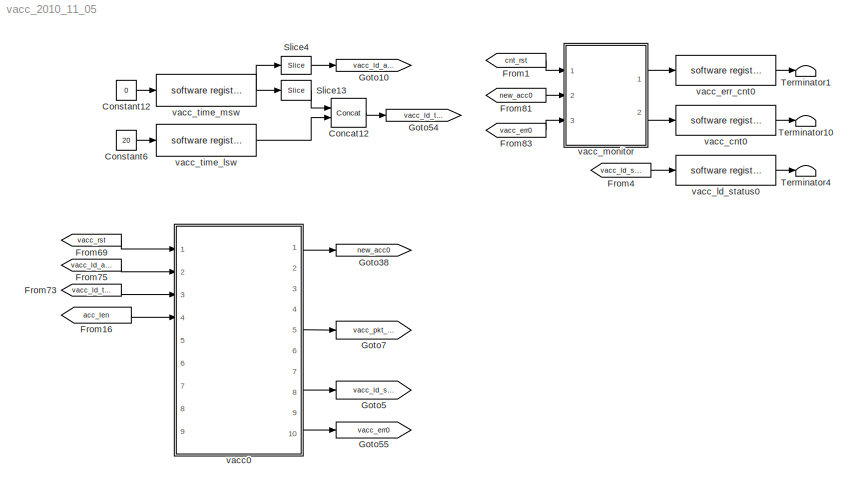
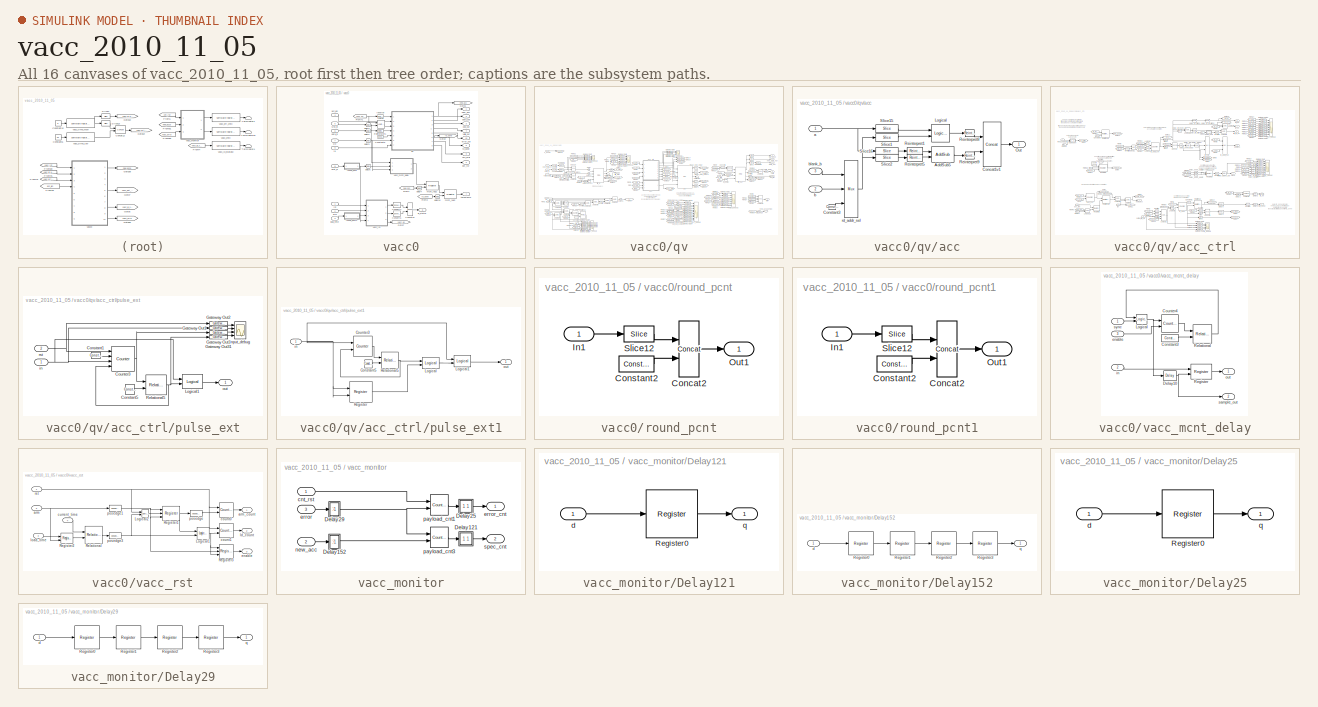
[diagram: thumbnail index - all 16 canvases of the model, root first then tree order]
MODEL vacc_2010_11_05
KIND model
BLOCK [Reference] Concat12  REF=xbsIndex_r4/Concat
  Ports = [2, 1]
  SourceBlock = xbsIndex_r4/Concat
  SourceType = Xilinx Bus Concatenator Block
  block_type = concat
  block_version = 10.1.3
  dbl_ovrd = off
  has_advanced_control = 0
  infoedit = Concatenates two or more inputs.  Output will be cast to an unsigned value with the binary point at zero.
  num_inputs = 2
  sg_icon_stat = 35,29,2,1,white,blue,0,97b7e8d2,right,
  sg_mask_display = fprintf('','COMMENT: begin icon graphics');\npatch([0 1 1 0 ],[0 0 1 1 ],[0.77 0.82 0.91]);\npatch([0.285714 0.142857 0.342857 0.142857 0.285714 0.514286 0.571429 0.628571 0.857143 0.685714 0.514286 0.371429 0.571429 0.371429 0.514286 0.685714 0.857143 0.628571 0.571429 0.514286 0.285714 ],[0.103448 0.275862 0.517241 0.758621 0.931034 0.931034 0.862069 0.931034 0.931034 0.724138 0.931034 0.758621 ...<+348ch>
  sggui_pos = -1,-1,-1,-1
BLOCK [Constant] Constant12
  OutDataType = sfix(16)
  OutScaling = 2^0
  Value = 0
BLOCK [Constant] Constant6
  OutDataType = sfix(16)
  OutScaling = 2^0
  Value = 20
BLOCK [From] From1
  CloseFcn = tagdialog Close
  GotoTag = cnt_rst
BLOCK [From] From16
  CloseFcn = tagdialog Close
  GotoTag = acc_len
BLOCK [From] From4
  CloseFcn = tagdialog Close
  GotoTag = vacc_ld_stat0
BLOCK [From] From69
  CloseFcn = tagdialog Close
  GotoTag = vacc_rst
BLOCK [From] From73
  CloseFcn = tagdialog Close
  GotoTag = vacc_ld_time
BLOCK [From] From75
  CloseFcn = tagdialog Close
  GotoTag = vacc_ld_arm
BLOCK [From] From81
  CloseFcn = tagdialog Close
  GotoTag = new_acc0
BLOCK [From] From83
  CloseFcn = tagdialog Close
  GotoTag = vacc_err0
BLOCK [Goto] Goto10
  GotoTag = vacc_ld_arm
  TagVisibility = local
BLOCK [Goto] Goto38
  GotoTag = new_acc0
  TagVisibility = local
BLOCK [Goto] Goto5
  GotoTag = vacc_ld_stat0
  TagVisibility = local
BLOCK [Goto] Goto54
  GotoTag = vacc_ld_time
  TagVisibility = local
BLOCK [Goto] Goto55
  GotoTag = vacc_err0
  TagVisibility = local
BLOCK [Goto] Goto7
  GotoTag = vacc_pkt_rdy0
  TagVisibility = local
BLOCK [Reference] Slice13  REF=xbsIndex_r4/Slice
  Ports = [1, 1]
  SourceBlock = xbsIndex_r4/Slice
  SourceType = Xilinx Bit Slice Extractor Block
  base0 = LSB of Input
  base1 = MSB of Input
  bit0 = 0
  bit1 = 0
  block_type = slice
  block_version = 10.1.3
  boolean_output = off
  dbl_ovrd = off
  has_advanced_control = 0
  infoedit = Extracts a given range of bits from each input sample and presents it at the output.  The output type is ordinarily unsigned with binary point at zero, but can be Boolean when the slice is one bit wide.<P><P>Hardware notes: In hardware this block costs nothing.  <repeated x14 — deduplicated; at blocks: Slice13, Slice1, Slice15, Slice2, Slice3, Slice5, Slice16, Slice, Slice4>
  mode = Lower Bit Location + Width
  nbits = 16
  sg_icon_stat = 30,20,1,1,white,blue,0,1fd851a7,right,
  sg_mask_display = fprintf('','COMMENT: begin icon graphics');\npatch([0 1 1 0 ],[0 0 1 1 ],[0.77 0.82 0.91]);\npatch([0.3 0.2 0.366667 0.2 0.3 0.466667 0.5 0.533333 0.733333 0.6 0.466667 0.366667 0.533333 0.366667 0.466667 0.6 0.733333 0.533333 0.5 0.466667 0.3 ],[0.1 0.25 0.5 0.75 0.9 0.9 0.85 0.9 0.9 0.7 0.9 0.75 0.5 0.25 0.1 0.3 0.1 0.1 0.15 0.1 0.1 ],[0.98 0.96 0.92]);\nplot([0 1 1 0 0 ],[0 0 1 1 0 ]);\nfprintf...<+164ch>
  sggui_pos = 20,24,540,482
BLOCK [Reference] Slice4  REF=xbsIndex_r4/Slice
  Ports = [1, 1]
  SourceBlock = xbsIndex_r4/Slice
  SourceType = Xilinx Bit Slice Extractor Block
  base0 = LSB of Input
  base1 = MSB of Input
  bit0 = 0
  bit1 = 0
  block_type = slice
  block_version = 10.1.3
  boolean_output = on
  dbl_ovrd = off
  has_advanced_control = 0
  infoedit = Extracts a given range of bits from each input sample and presents it at the output.  The output type is ordinarily unsigned with binary point at zero, but can be Boolean when the slice is one bit wide.<br><br>Hardware notes: In hardware this block costs nothing.  <repeated x3 — deduplicated; at blocks: Slice4, Slice12>
  mode = Upper Bit Location + Width
  nbits = 1
  sg_icon_stat = 30,18,1,1,white,blue,0,1fd851a7,right,
  sg_mask_display = fprintf('','COMMENT: begin icon graphics');\npatch([0 1 1 0 ],[0 0 1 1 ],[0.77 0.82 0.91]);\npatch([0.333333 0.233333 0.366667 0.233333 0.333333 0.5 0.533333 0.566667 0.733333 0.6 0.466667 0.366667 0.5 0.366667 0.466667 0.6 0.733333 0.566667 0.533333 0.5 0.333333 ],[0.111111 0.277778 0.5 0.722222 0.888889 0.888889 0.833333 0.888889 0.888889 0.666667 0.888889 0.722222 0.5 0.277778 0.111111 0.333333...<+273ch>  <repeated x4 — deduplicated; at blocks: Slice4, Slice1, Slice2, Slice5>
  sggui_pos = 21,51,540,482
BLOCK [Terminator] Terminator1
BLOCK [Terminator] Terminator10
BLOCK [Terminator] Terminator4
BLOCK [SubSystem] vacc0
  AttributesFormatString = Vector Length: 9216
  FunctionWithSeparateData = off
  MaskCallbackString = |||
  MaskDescription = Hardcoded for X engines with a demux of 8!
  MaskEnableString = on,on,on,on
  MaskHideContents = off
  MaskIconFrame = on
  MaskIconOpaque = on
  MaskIconRotate = none
  MaskIconUnits = autoscale
  MaskInitialization = vector_len = (2^ants_bits)*(2^ants_bits +1) /2 *8 * 2^(freq_bits-xeng_bits);\nset_param([gcb, '/qv'], 'which_qdr', which_qdr);\nfmtstr = sprintf('Vector Length: %d', vector_len);\nset_param(gcb, 'AttributesFormatString', fmtstr);\n
  MaskPromptString = Number of antennas (2^n)|Number of frequency channels (2^n)|Number of X engines (2^n)|QDR
  MaskStyleString = edit,edit,edit,popup(qdr0|qdr1)
  MaskTabNameString = ,,,
  MaskToolTipString = on,on,on,on
  MaskTunableValueString = on,on,on,on
  MaskValueString = 3|9|4|qdr0
  MaskVarAliasString = ,,,
  MaskVariables = ants_bits=@1;freq_bits=@2;xeng_bits=@3;which_qdr=&4;
  MaskVisibilityString = on,on,on,on
  MinAlgLoopOccurrences = off
  Opaque = off
  Ports = [9, 10]
  PropExecContextOutsideSubsystem = off
  RTWSystemCode = Auto
  RequestExecContextInheritance = off
BLOCK [Reference] vacc0/Concat10  REF=xbsIndex_r4/Concat
  Ports = [2, 1]
  SourceBlock = xbsIndex_r4/Concat
  SourceType = Xilinx Bus Concatenator Block
  block_type = concat
  block_version = 10.1.3
  dbl_ovrd = off
  has_advanced_control = 0
  infoedit = Concatenates two or more inputs.  Output will be cast to an unsigned value with the binary point at zero.
  num_inputs = 2
  sg_icon_stat = 20,53,2,1,white,blue,0,97b7e8d2,right,
  sg_mask_display = fprintf('','COMMENT: begin icon graphics');\npatch([0 1 1 0 ],[0 0 1 1 ],[0.77 0.82 0.91]);\npatch([0.2 0.05 0.3 0.05 0.2 0.45 0.5 0.55 0.85 0.65 0.45 0.3 0.55 0.3 0.45 0.65 0.85 0.55 0.5 0.45 0.2 ],[0.358491 0.415094 0.509434 0.603774 0.660377 0.660377 0.641509 0.660377 0.660377 0.584906 0.660377 0.603774 0.509434 0.415094 0.358491 0.433962 0.358491 0.358491 0.377358 0.358491 0.358491 ],[0.98 0.9...<+256ch>
  sggui_pos = 21,51,348,216
BLOCK [Reference] vacc0/Constant5  REF=xbsIndex_r4/Constant
  Ports = [0, 1]
  SourceBlock = xbsIndex_r4/Constant
  SourceType = Xilinx Constant Block Block
  arith_type = Unsigned
  bin_pt = 0
  block_type = constant
  block_version = 10.1.3
  carry = CIN
  const = 0
  dbl_ovrd = off
  dsp48_infoedit = The use of this block for DSP48 instructions is deprecated.  Please use the Opmode block.
  equ = P=C
  explicit_period = on
  has_advanced_control = 0
  inp1 = P
  inp2 = PCIN>>17
  n_bits = 4
  opr = +
  opselect = C
  period = 1
  sg_icon_stat = 25,10,0,1,white,blue,0,bf4ddd8b,right,
  sg_mask_display = fprintf('','COMMENT: begin icon graphics');\npatch([0 1 1 0 ],[0 0 1 1 ],[0.77 0.82 0.91]);\npatch([0.4 0.32 0.4 0.32 0.4 0.52 0.56 0.6 0.72 0.64 0.56 0.48 0.56 0.48 0.56 0.64 0.72 0.6 0.56 0.52 0.4 ],[0.1 0.3 0.5 0.7 0.9 0.9 0.8 0.9 0.9 0.7 0.9 0.7 0.5 0.3 0.1 0.3 0.1 0.1 0.2 0.1 0.1 ],[0.98 0.96 0.92]);\nplot([0 1 1 0 0 ],[0 0 1 1 0 ]);\nfprintf('','COMMENT: end icon graphics');\nfprintf('','COM...<+109ch>
  sggui_pos = 20,20,414,344
BLOCK [Reference] vacc0/Convert4  REF=xbsIndex_r4/Convert
  Ports = [1, 1]
  SourceBlock = xbsIndex_r4/Convert
  SourceType = Xilinx Type Converter Block
  arith_type = Unsigned
  bin_pt = 0
  block_type = convert
  block_version = 11.4
  dbl_ovrd = off
  has_advanced_control = 0
  infoedit = Hardware notes: rounding and saturating require hardware resources; truncating and wrapping do not.
  latency = 0
  n_bits = 16
  overflow = Wrap
  pipeline = on
  quantization = Truncate
  sg_icon_stat = 30,22,1,1,white,blue,0,edca21da,right,
  sg_mask_display = fprintf('','COMMENT: begin icon graphics');\npatch([0 1 1 0 ],[0 0 1 1 ],[0.77 0.82 0.91]);\npatch([0.3 0.166667 0.333333 0.166667 0.3 0.5 0.566667 0.633333 0.833333 0.666667 0.5 0.4 0.6 0.4 0.5 0.666667 0.833333 0.633333 0.566667 0.5 0.3 ],[0.0909091 0.272727 0.5 0.727273 0.909091 0.909091 0.818182 0.909091 0.909091 0.681818 0.909091 0.772727 0.5 0.227273 0.0909091 0.318182 0.0909091 0.0909091 0....<+253ch>
  sggui_pos = 22,98,538,429
  xl_area = [0,0,0,0,0,0,0]
  xl_use_area = off
BLOCK [Reference] vacc0/Convert5  REF=xbsIndex_r4/Convert
  Ports = [1, 1]
  SourceBlock = xbsIndex_r4/Convert
  SourceType = Xilinx Type Converter Block
  arith_type = Unsigned
  bin_pt = 0
  block_type = convert
  block_version = 11.4
  dbl_ovrd = off
  has_advanced_control = 0
  infoedit = Hardware notes: rounding and saturating require hardware resources; truncating and wrapping do not.
  latency = 0
  n_bits = 16
  overflow = Wrap
  pipeline = on
  quantization = Truncate
  sg_icon_stat = 30,22,1,1,white,blue,0,edca21da,right,
  sg_mask_display = fprintf('','COMMENT: begin icon graphics');\npatch([0 1 1 0 ],[0 0 1 1 ],[0.77 0.82 0.91]);\npatch([0.3 0.166667 0.333333 0.166667 0.3 0.5 0.566667 0.633333 0.833333 0.666667 0.5 0.4 0.6 0.4 0.5 0.666667 0.833333 0.633333 0.566667 0.5 0.3 ],[0.0909091 0.272727 0.5 0.727273 0.909091 0.909091 0.818182 0.909091 0.909091 0.681818 0.909091 0.772727 0.5 0.227273 0.0909091 0.318182 0.0909091 0.0909091 0....<+253ch>
  sggui_pos = 22,98,538,429
  xl_area = [0,0,0,0,0,0,0]
  xl_use_area = off
BLOCK [From] vacc0/From1
  CloseFcn = tagdialog Close
  GotoTag = new_acc
BLOCK [From] vacc0/From3
  CloseFcn = tagdialog Close
  GotoTag = rb_done
BLOCK [From] vacc0/From71
  CloseFcn = tagdialog Close
  GotoTag = vacc_en
BLOCK [Goto] vacc0/Goto1
  GotoTag = new_acc
  TagVisibility = local
BLOCK [Goto] vacc0/Goto2
  GotoTag = rb_done
  TagVisibility = local
BLOCK [Goto] vacc0/Goto7
  GotoTag = vacc_en
  TagVisibility = local
BLOCK [Reference] vacc0/Inverter  REF=xbsIndex_r4/Inverter
  Ports = [1, 1]
  SourceBlock = xbsIndex_r4/Inverter
  SourceType = Xilinx Inverter Block
  block_type = inv
  block_version = 10.1.3
  dbl_ovrd = off
  en = off
  has_advanced_control = 0
  infoedit = Bitwise logical negation (one's complement) operator.
  latency = 0
  sg_icon_stat = 25,12,1,1,white,blue,0,267846e5,right,
  sg_mask_display = fprintf('','COMMENT: begin icon graphics');\npatch([0 1 1 0 ],[0 0 1 1 ],[0.77 0.82 0.91]);\npatch([0.36 0.28 0.4 0.28 0.36 0.48 0.52 0.56 0.68 0.56 0.44 0.36 0.48 0.36 0.44 0.56 0.68 0.56 0.52 0.48 0.36 ],[0.0833333 0.25 0.5 0.75 0.916667 0.916667 0.833333 0.916667 0.916667 0.666667 0.916667 0.75 0.5 0.25 0.0833333 0.333333 0.0833333 0.0833333 0.166667 0.0833333 0.0833333 ],[0.98 0.96 0.92]);\npl...<+184ch>  <repeated x5 — deduplicated; at blocks: Inverter, Inverter1, Inverter2, Inverter3>
  sggui_pos = -1,-1,-1,-1
  xl_area = [0,0,0,0,0,0,0]
  xl_use_area = off
BLOCK [Reference] vacc0/Logical2  REF=xbsIndex_r4/Logical
  Ports = [2, 1]
  SourceBlock = xbsIndex_r4/Logical
  SourceType = Xilinx Logical Block Block
  align_bp = on
  arith_type = Unsigned
  bin_pt = 0
  block_type = logical
  block_version = 10.1.3
  dbl_ovrd = off
  en = off
  has_advanced_control = 0
  inputs = 2
  latency = 0
  logical_function = AND
  n_bits = 16
  precision = Full
  sg_icon_stat = 30,33,2,1,white,blue,0,0a851f85,right,
  sg_mask_display = fprintf('','COMMENT: begin icon graphics');\npatch([0 1 1 0 ],[0 0 1 1 ],[0.77 0.82 0.91]);\npatch([0.233333 0.0666667 0.3 0.0666667 0.233333 0.5 0.566667 0.633333 0.9 0.666667 0.466667 0.3 0.5 0.3 0.466667 0.666667 0.9 0.633333 0.566667 0.5 0.233333 ],[0.151515 0.30303 0.515152 0.727273 0.878788 0.878788 0.818182 0.878788 0.878788 0.666667 0.848485 0.69697 0.515152 0.333333 0.181818 0.363636 0.15...<+288ch>
  sggui_pos = 20,20,348,262
  xl_area = [0,0,0,0,0,0,0]
  xl_use_area = off
BLOCK [Reference] vacc0/Reinterpret1  REF=xbsIndex_r4/Reinterpret
  Ports = [1, 1]
  SourceBlock = xbsIndex_r4/Reinterpret
  SourceType = Xilinx Type Reinterpreter Block
  arith_type = Signed  (2's comp)
  bin_pt = 0
  block_type = reinterpret
  block_version = 10.1.3
  force_arith_type = on
  force_bin_pt = on
  has_advanced_control = 0
  infoedit = Changes signal type without altering the binary representation.   You can changed the signal between signed and unsigned, and relocate the binary point.<P><P>Hardware notes: In hardware this block costs nothing.<P><P>Example:  Suppose the input is 6 bits wide, signed, with 2 fractional bits, and the output is forced to unsigned with 0 fractional bits.  Then an input of -2.0 (1110.00 in binary 2's ...<+55ch>  <repeated x8 — deduplicated; at blocks: Reinterpret1, Reinterpret, Reinterpret2, Reinterpret5, Reinterpret8, Reinterpret9>
  sg_icon_stat = 25,12,1,1,white,blue,0,6b04d0b0,right,
  sg_mask_display = fprintf('','COMMENT: begin icon graphics');\npatch([0 1 1 0 ],[0 0 1 1 ],[0.77 0.82 0.91]);\npatch([0.36 0.28 0.4 0.28 0.36 0.48 0.52 0.56 0.68 0.56 0.44 0.36 0.48 0.36 0.44 0.56 0.68 0.56 0.52 0.48 0.36 ],[0.0833333 0.25 0.5 0.75 0.916667 0.916667 0.833333 0.916667 0.916667 0.666667 0.916667 0.75 0.5 0.25 0.0833333 0.333333 0.0833333 0.0833333 0.166667 0.0833333 0.0833333 ],[0.98 0.96 0.92]);\npl...<+192ch>
  sggui_pos = 20,20,336,312
BLOCK [Inport] vacc0/acc_len
  IconDisplay = Port number
  Port = 4
BLOCK [Inport] vacc0/arm
  IconDisplay = Port number
  Port = 2
BLOCK [Inport] vacc0/data_in
  IconDisplay = Port number
  Port = 6
BLOCK [Outport] vacc0/data_out
  IconDisplay = Port number
  Port = 2
BLOCK [Reference] vacc0/delay1  REF=xbsIndex_r4/Delay
  Ports = [1, 1]
  SourceBlock = xbsIndex_r4/Delay
  SourceType = Xilinx Delay Block
  block_type = delay
  block_version = 10.1.3
  dbl_ovrd = off
  en = off
  has_advanced_control = 0
  infoedit = Hardware notes: A delay line is a chain, each link of which is an SRL16 followed by a flip-flop.
  latency = 2
  reg_retiming = on
  sg_icon_stat = 15,16,1,1,white,blue,0,85ce9542,right,
  sg_mask_display = fprintf('','COMMENT: begin icon graphics');\npatch([0 1 1 0 ],[0 0 1 1 ],[0.77 0.82 0.91]);\npatch([0.2 0.0666667 0.333333 0.0666667 0.2 0.466667 0.533333 0.6 0.866667 0.666667 0.466667 0.333333 0.6 0.333333 0.466667 0.666667 0.866667 0.6 0.533333 0.466667 0.2 ],[0.125 0.25 0.5 0.75 0.875 0.875 0.8125 0.875 0.875 0.6875 0.875 0.75 0.5 0.25 0.125 0.3125 0.125 0.125 0.1875 0.125 0.125 ],[0.98 0.96 0...<+212ch>  <repeated x12 — deduplicated; at blocks: delay1, delay10, delay2, delay3, delay4, delay5, delay>
  sggui_pos = 21,201,419,315
  xl_area = [0,0,0,0,0,0,0]
  xl_use_area = off
BLOCK [Reference] vacc0/delay10  REF=xbsIndex_r4/Delay
  Ports = [1, 1]
  SourceBlock = xbsIndex_r4/Delay
  SourceType = Xilinx Delay Block
  block_type = delay
  block_version = 10.1.3
  dbl_ovrd = off
  en = off
  has_advanced_control = 0
  infoedit = Hardware notes: A delay line is a chain, each link of which is an SRL16 followed by a flip-flop.
  latency = 1
  reg_retiming = on
  sg_icon_stat = 15,16,1,1,white,blue,0,07b98262,right,
  sggui_pos = 20,20,348,254
  xl_area = [0,0,0,0,0,0,0]
  xl_use_area = off
BLOCK [Reference] vacc0/delay2  REF=xbsIndex_r4/Delay
  Ports = [1, 1]
  SourceBlock = xbsIndex_r4/Delay
  SourceType = Xilinx Delay Block
  block_type = delay
  block_version = 10.1.3
  dbl_ovrd = off
  en = off
  has_advanced_control = 0
  infoedit = Hardware notes: A delay line is a chain, each link of which is an SRL16 followed by a flip-flop.
  latency = 2
  reg_retiming = on
  sg_icon_stat = 15,16,1,1,white,blue,0,85ce9542,right,
  sggui_pos = 21,201,419,315
  xl_area = [0,0,0,0,0,0,0]
  xl_use_area = off
BLOCK [Reference] vacc0/delay3  REF=xbsIndex_r4/Delay
  Ports = [1, 1]
  SourceBlock = xbsIndex_r4/Delay
  SourceType = Xilinx Delay Block
  block_type = delay
  block_version = 10.1.3
  dbl_ovrd = off
  en = off
  has_advanced_control = 0
  infoedit = Hardware notes: A delay line is a chain, each link of which is an SRL16 followed by a flip-flop.
  latency = 2
  reg_retiming = on
  sg_icon_stat = 15,16,1,1,white,blue,0,85ce9542,right,
  sggui_pos = 21,201,419,315
  xl_area = [0,0,0,0,0,0,0]
  xl_use_area = off
BLOCK [Reference] vacc0/delay4  REF=xbsIndex_r4/Delay
  Ports = [1, 1]
  SourceBlock = xbsIndex_r4/Delay
  SourceType = Xilinx Delay Block
  block_type = delay
  block_version = 10.1.3
  dbl_ovrd = off
  en = off
  has_advanced_control = 0
  infoedit = Hardware notes: A delay line is a chain, each link of which is an SRL16 followed by a flip-flop.
  latency = 1
  reg_retiming = on
  sg_icon_stat = 15,16,1,1,white,blue,0,07b98262,right,
  sggui_pos = 20,20,348,254
  xl_area = [0,0,0,0,0,0,0]
  xl_use_area = off
BLOCK [Reference] vacc0/delay5  REF=xbsIndex_r4/Delay
  Ports = [1, 1]
  SourceBlock = xbsIndex_r4/Delay
  SourceType = Xilinx Delay Block
  block_type = delay
  block_version = 10.1.3
  dbl_ovrd = off
  en = off
  has_advanced_control = 0
  infoedit = Hardware notes: A delay line is a chain, each link of which is an SRL16 followed by a flip-flop.
  latency = 2
  reg_retiming = on
  sg_icon_stat = 15,16,1,1,white,blue,0,85ce9542,right,
  sggui_pos = 21,201,419,315
  xl_area = [0,0,0,0,0,0,0]
  xl_use_area = off
BLOCK [Outport] vacc0/error_out
  IconDisplay = Port number
  Port = 10
BLOCK [Outport] vacc0/fifo_afull
  IconDisplay = Port number
  Port = 9
BLOCK [Outport] vacc0/ld_status
  IconDisplay = Port number
  Port = 8
BLOCK [Inport] vacc0/load_time
  IconDisplay = Port number
  Port = 3
BLOCK [Reference] vacc0/mcnt_reg1  REF=xbsIndex_r4/Register
  Ports = [2, 1]
  SourceBlock = xbsIndex_r4/Register
  SourceType = Xilinx Register Block
  block_type = register
  block_version = 10.1.3
  dbl_ovrd = off
  en = on
  has_advanced_control = 0
  init = 0
  rst = off
  sg_icon_stat = 50,36,2,1,white,blue,0,01f465d5,right,
  sg_mask_display = fprintf('','COMMENT: begin icon graphics');\npatch([0 1 1 0 ],[0 0 1 1 ],[0.77 0.82 0.91]);\npatch([0.3 0.18 0.34 0.18 0.3 0.5 0.56 0.62 0.82 0.66 0.5 0.38 0.54 0.38 0.5 0.66 0.82 0.62 0.56 0.5 0.3 ],[0.111111 0.277778 0.5 0.722222 0.888889 0.888889 0.805556 0.888889 0.888889 0.666667 0.888889 0.722222 0.5 0.277778 0.111111 0.333333 0.111111 0.111111 0.194444 0.111111 0.111111 ],[0.98 0.96 0.92]);...<+343ch>  <repeated x3 — deduplicated; at blocks: mcnt_reg1, mcnt_reg2, Register>
  sggui_pos = 20,20,348,192
  xl_area = [0,0,0,0,0,0,0]
  xl_use_area = off
BLOCK [Reference] vacc0/mcnt_reg2  REF=xbsIndex_r4/Register
  Ports = [2, 1]
  SourceBlock = xbsIndex_r4/Register
  SourceType = Xilinx Register Block
  block_type = register
  block_version = 10.1.3
  dbl_ovrd = off
  en = on
  has_advanced_control = 0
  init = 0
  rst = off
  sg_icon_stat = 50,36,2,1,white,blue,0,01f465d5,right,
  sggui_pos = 20,20,348,192
  xl_area = [0,0,0,0,0,0,0]
  xl_use_area = off
BLOCK [Outport] vacc0/new_acc
  IconDisplay = Port number
BLOCK [Outport] vacc0/oob_out
  IconDisplay = Port number
  Port = 3
BLOCK [Inport] vacc0/pcnt_in
  IconDisplay = Port number
  Port = 8
BLOCK [Outport] vacc0/pkt_rdy
  IconDisplay = Port number
  Port = 5
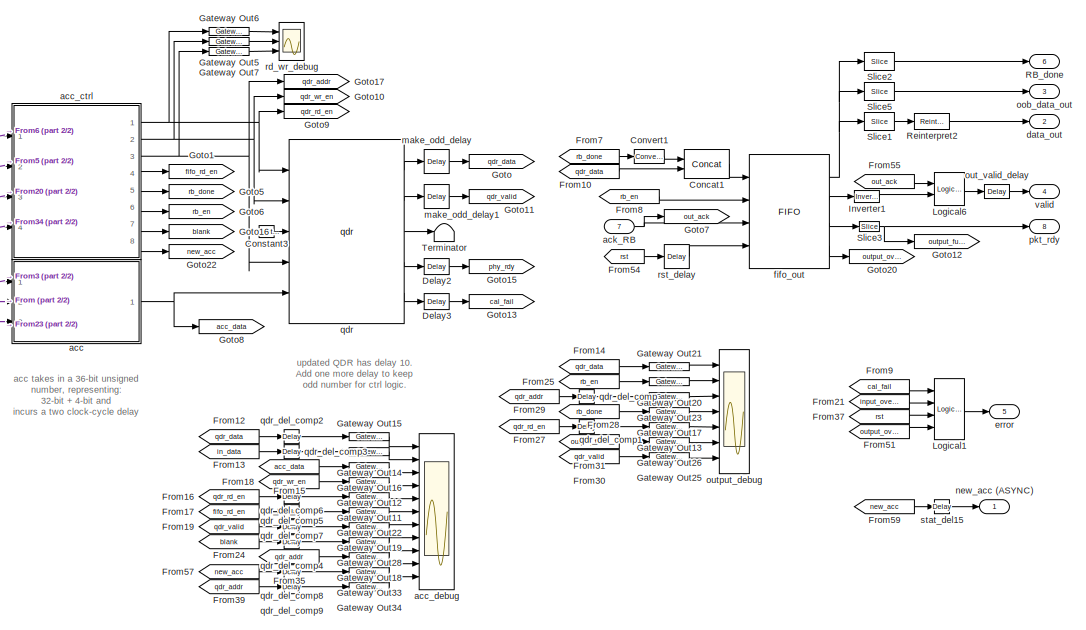
[diagram: vacc0/qv - part 1/2, right side, full height]
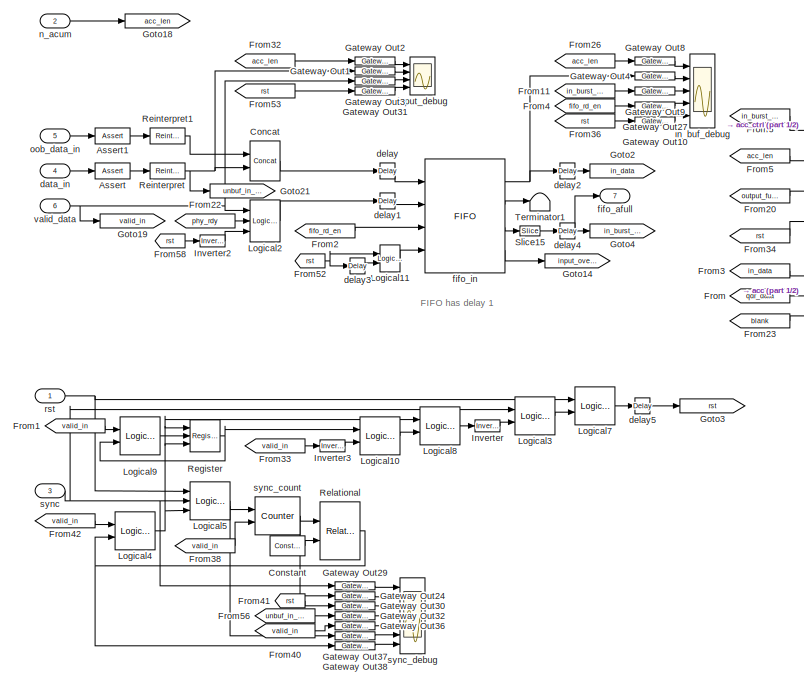
[diagram: vacc0/qv - part 2/2, left side, full height]
BLOCK [SubSystem] vacc0/qv
  AttributesFormatString = Vector Length: 9216
  FunctionWithSeparateData = off
  MaskCallbackString = |
  MaskDescription = A vector accumulator for medium length vectors designed for ROACH's QDR memory.\n\nOriginally designed for the packetised correlator, this block accepts input data of type Fix_32_0. OOB_data_in provides an extra 4 bits that are accumulated seperately (originally designed to keep track of how many \"bad\" values in a vector were accumulated).\n\nMinimum vector length is 2 * burst_length.\nMinimum b...<+125ch>
  MaskEnableString = on,on
  MaskHideContents = off
  MaskIconFrame = on
  MaskIconOpaque = on
  MaskIconRotate = none
  MaskIconUnits = autoscale
  MaskInitialization = vector_bits = ceil(log2(vector_len));\nburst_bits = 4;\nburst_len = 2^burst_bits;\nset_param([gcb, '/qdr'], 'which_qdr', which_qdr);\n\nfmtstr = sprintf('Vector Length: %d', vector_len);\nset_param(gcb, 'AttributesFormatString', fmtstr);\n
  MaskPromptString = Vector length??(# cycles)|Which QDR?
  MaskStyleString = edit,popup(qdr0|qdr1)
  MaskTabNameString = ,
  MaskToolTipString = on,on
  MaskTunableValueString = on,on
  MaskValueString = (2^ants_bits)*(2^ants_bits +1) /2 *8 * 2^(freq_bits-xeng_bits)|qdr0
  MaskVarAliasString = ,
  MaskVariables = vector_len=@1;which_qdr=&2;
  MaskVisibilityString = on,on
  MinAlgLoopOccurrences = off
  Opaque = off
  Ports = [7, 8]
  PropExecContextOutsideSubsystem = off
  RTWSystemCode = Auto
  RequestExecContextInheritance = off
BLOCK [Reference] vacc0/qv/Assert  REF=xbsIndex_r4/Assert
  Ports = [1, 1]
  SourceBlock = xbsIndex_r4/Assert
  SourceType = Xilinx Assert Block
  arith_type = Signed  (2's comp)
  assert_rate = off
  assert_type = on
  bin_pt = 0
  block_type = assert
  block_version = 10.1.3
  has_advanced_control = 0
  infoedit = Asserts a user-defined sample rate and/or type on a signal.<P><P>Hardware notes: In hardware this block costs nothing.
  n_bits = 32
  output_port = on
  period = 1
  rate_source = Explicitly
  sg_icon_stat = 35,16,1,1,white,blue,0,9657e937,right,
  sg_mask_display = fprintf('','COMMENT: begin icon graphics');\npatch([0 1 1 0 ],[0 0 1 1 ],[0.77 0.82 0.91]);\npatch([0.4 0.314286 0.428571 0.314286 0.4 0.514286 0.542857 0.571429 0.714286 0.6 0.514286 0.457143 0.571429 0.457143 0.514286 0.6 0.714286 0.571429 0.542857 0.514286 0.4 ],[0.125 0.3125 0.5625 0.8125 1 1 0.9375 1 1 0.75 0.9375 0.8125 0.5625 0.3125 0.1875 0.375 0.125 0.125 0.1875 0.125 0.125 ],[0.98 0.96 0...<+197ch>
  sggui_pos = 157,543,336,432
  type_source = Explicitly
BLOCK [Reference] vacc0/qv/Assert1  REF=xbsIndex_r4/Assert
  Ports = [1, 1]
  SourceBlock = xbsIndex_r4/Assert
  SourceType = Xilinx Assert Block
  arith_type = Unsigned
  assert_rate = on
  assert_type = on
  bin_pt = 0
  block_type = assert
  block_version = 10.1.3
  has_advanced_control = 0
  infoedit = Asserts a user-defined sample rate and/or type on a signal.<P><P>Hardware notes: In hardware this block costs nothing.
  n_bits = 4
  output_port = on
  period = 1
  rate_source = Explicitly
  sg_icon_stat = 35,16,1,1,white,blue,0,9657e937,right,
  sg_mask_display = fprintf('','COMMENT: begin icon graphics');\npatch([0 1 1 0 ],[0 0 1 1 ],[0.77 0.82 0.91]);\npatch([0.4 0.314286 0.428571 0.314286 0.4 0.514286 0.542857 0.571429 0.714286 0.6 0.514286 0.457143 0.571429 0.457143 0.514286 0.6 0.714286 0.571429 0.542857 0.514286 0.4 ],[0.125 0.3125 0.5625 0.8125 1 1 0.9375 1 1 0.75 0.9375 0.8125 0.5625 0.3125 0.1875 0.375 0.125 0.125 0.1875 0.125 0.125 ],[0.98 0.96 0...<+197ch>
  sggui_pos = 157,543,336,432
  type_source = Explicitly
BLOCK [Reference] vacc0/qv/Concat  REF=xbsIndex_r4/Concat
  Ports = [2, 1]
  SourceBlock = xbsIndex_r4/Concat
  SourceType = Xilinx Bus Concatenator Block
  block_type = concat
  block_version = 9.2.01
  dbl_ovrd = off
  has_advanced_control = 0
  infoedit = Concatenates two or more inputs.  Output will be cast to an unsigned value with the binary point at zero.
  num_inputs = 2
  sg_icon_stat = 30,40,2,1,white,blue,0,97b7e8d2,right,
  sg_mask_display = fprintf('','COMMENT: begin icon graphics');\npatch([0 1 1 0 ],[0 0 1 1 ],[0.77 0.82 0.91]);\npatch([0.233333 0.0666667 0.3 0.0666667 0.233333 0.5 0.566667 0.633333 0.9 0.666667 0.466667 0.3 0.5 0.3 0.466667 0.666667 0.9 0.633333 0.566667 0.5 0.233333 ],[0.2 0.325 0.5 0.675 0.8 0.8 0.75 0.8 0.8 0.625 0.775 0.65 0.5 0.35 0.225 0.375 0.2 0.2 0.25 0.2 0.2 ],[0.98 0.96 0.92]);\nplot([0 1 1 0 0 ],[0 0 1...<+221ch>
  sggui_pos = 20,20,336,162
BLOCK [Reference] vacc0/qv/Concat1  REF=xbsIndex_r4/Concat
  Ports = [2, 1]
  SourceBlock = xbsIndex_r4/Concat
  SourceType = Xilinx Bus Concatenator Block
  block_type = concat
  block_version = 9.2.01
  dbl_ovrd = off
  has_advanced_control = 0
  infoedit = Concatenates two or more inputs.  Output will be cast to an unsigned value with the binary point at zero.
  num_inputs = 2
  sg_icon_stat = 45,29,2,1,white,blue,0,97b7e8d2,right,
  sg_mask_display = fprintf('','COMMENT: begin icon graphics');\npatch([0 1 1 0 ],[0 0 1 1 ],[0.77 0.82 0.91]);\npatch([0.333333 0.222222 0.377778 0.222222 0.333333 0.511111 0.555556 0.6 0.777778 0.644444 0.511111 0.4 0.555556 0.4 0.511111 0.644444 0.777778 0.6 0.555556 0.511111 0.333333 ],[0.103448 0.275862 0.517241 0.758621 0.931034 0.931034 0.862069 0.931034 0.931034 0.724138 0.931034 0.758621 0.517241 0.275862 0....<+328ch>
  sggui_pos = -1,-1,-1,-1
BLOCK [Reference] vacc0/qv/Constant  REF=xbsIndex_r4/Constant
  Ports = [0, 1]
  SourceBlock = xbsIndex_r4/Constant
  SourceType = Xilinx Constant Block Block
  arith_type = Unsigned
  bin_pt = 0
  block_type = constant
  block_version = 10.1.3
  carry = CIN
  const = vector_len-1
  dbl_ovrd = off
  dsp48_infoedit = The use of this block for DSP48 instructions is deprecated.  Please use the Opmode block.
  equ = P=C
  explicit_period = on
  has_advanced_control = 0
  inp1 = P
  inp2 = PCIN>>17
  n_bits = vector_bits
  opr = +
  opselect = C
  period = 1
  sg_icon_stat = 35,20,0,1,white,blue,0,b6bce910,right,
  sg_list_contents = {'table'=>{'carry'=>'popup(0|1|CIN|~SIGN(P or PCIN)|~SIGN(A*B or A:B)|~SIGND(A*B or A:B))','inp1'=>'popup(0|P|A:B|A*B|C|P+C|A:B+C)','inp2'=>'popup(0|PCIN|P|C|PCIN>>17|P>>17)','opselect'=>'popup(C + A*B|PCIN + A*B|P + A*B|A * B|C + A:B|C - A:B|C|Custom)','userSelections'=>{'carry'=>'CIN','inp1'=>'P','inp2'=>'PCIN>>17','opselect'=>'C'}}}  <repeated x3 — deduplicated; at blocks: Constant, Constant2>
  sg_mask_display = fprintf('','COMMENT: begin icon graphics');\npatch([0 1 1 0 ],[0 0 1 1 ],[0.77 0.82 0.91]);\npatch([0.342857 0.257143 0.4 0.257143 0.342857 0.485714 0.514286 0.542857 0.714286 0.6 0.485714 0.4 0.542857 0.4 0.485714 0.6 0.714286 0.542857 0.514286 0.485714 0.342857 ],[0.1 0.25 0.5 0.75 0.9 0.9 0.85 0.9 0.9 0.7 0.9 0.75 0.5 0.25 0.1 0.3 0.1 0.1 0.15 0.1 0.1 ],[0.98 0.96 0.92]);\nplot([0 1 1 0 0 ],[0 ...<+183ch>
  sggui_pos = 24,282,478,435
BLOCK [Reference] vacc0/qv/Constant3  REF=xbsIndex_r4/Constant
  Ports = [0, 1]
  SourceBlock = xbsIndex_r4/Constant
  SourceType = Xilinx Constant Block Block
  arith_type = Unsigned
  bin_pt = 0
  block_type = constant
  block_version = 9.2.01
  carry = CIN
  const = (2^4)-1
  dbl_ovrd = off
  dsp48_infoedit = The use of this block for DSP48 instructions is deprecated.  Please use the Opmode block.
  equ = P=C
  explicit_period = on
  has_advanced_control = 0
  inp1 = P
  inp2 = PCIN>>17
  n_bits = 4
  opr = +
  opselect = C
  period = 1
  sg_icon_stat = 15,12,0,1,white,blue,0,1164c07c,right,
  sg_mask_display = fprintf('','COMMENT: begin icon graphics');\npatch([0 1 1 0 ],[0 0 1 1 ],[0.77 0.82 0.91]);\npatch([0.266667 0.133333 0.333333 0.133333 0.266667 0.466667 0.533333 0.6 0.8 0.6 0.4 0.266667 0.466667 0.266667 0.4 0.6 0.8 0.6 0.533333 0.466667 0.266667 ],[0.0833333 0.25 0.5 0.75 0.916667 0.916667 0.833333 0.916667 0.916667 0.666667 0.916667 0.75 0.5 0.25 0.0833333 0.333333 0.0833333 0.0833333 0.166667...<+245ch>
  sggui_pos = 20,20,414,344
BLOCK [Reference] vacc0/qv/Convert1  REF=xbsIndex_r4/Convert
  Ports = [1, 1]
  SourceBlock = xbsIndex_r4/Convert
  SourceType = Xilinx Type Converter Block
  arith_type = Unsigned
  bin_pt = 0
  block_type = convert
  block_version = 9.2.01
  dbl_ovrd = off
  has_advanced_control = 0
  infoedit = Hardware notes: rounding and saturating require hardware resources; truncating and wrapping do not.
  latency = 0
  n_bits = 1
  overflow = Wrap
  pipeline = off
  quantization = Truncate
  sg_icon_stat = 30,14,1,1,white,blue,0,edca21da,right,
  sg_mask_display = fprintf('','COMMENT: begin icon graphics');\npatch([0 1 1 0 ],[0 0 1 1 ],[0.77 0.82 0.91]);\npatch([0.366667 0.3 0.4 0.3 0.366667 0.5 0.533333 0.566667 0.7 0.6 0.5 0.433333 0.533333 0.433333 0.5 0.6 0.7 0.566667 0.533333 0.5 0.366667 ],[0.142857 0.285714 0.5 0.714286 0.857143 0.857143 0.785714 0.857143 0.857143 0.642857 0.857143 0.714286 0.5 0.285714 0.142857 0.357143 0.142857 0.142857 0.214286 0....<+242ch>
  sggui_pos = 20,20,470,336
  xl_area = [0, 0, 0, 0, 0, 0, 0]
  xl_use_area = off
BLOCK [Reference] vacc0/qv/Delay2  REF=xbsIndex_r4/Delay
  Ports = [1, 1]
  SourceBlock = xbsIndex_r4/Delay
  SourceType = Xilinx Delay Block
  block_type = delay
  block_version = 10.1.3
  dbl_ovrd = off
  en = off
  has_advanced_control = 0
  infoedit = Hardware notes: A delay line is a chain, each link of which is an SRL16 followed by a flip-flop.
  latency = 2
  reg_retiming = on
  sg_icon_stat = 25,16,1,1,white,blue,0,85ce9542,right,
  sg_mask_display = fprintf('','COMMENT: begin icon graphics');\npatch([0 1 1 0 ],[0 0 1 1 ],[0.77 0.82 0.91]);\npatch([0.36 0.24 0.4 0.24 0.36 0.52 0.56 0.6 0.8 0.64 0.52 0.44 0.6 0.44 0.52 0.64 0.8 0.6 0.56 0.52 0.36 ],[0.125 0.3125 0.5625 0.8125 1 1 0.9375 1 1 0.75 0.9375 0.8125 0.5625 0.3125 0.1875 0.375 0.125 0.125 0.1875 0.125 0.125 ],[0.98 0.96 0.92]);\nplot([0 1 1 0 0 ],[0 0 1 1 0 ]);\nfprintf('','COMMENT: en...<+147ch>  <repeated x4 — deduplicated; at blocks: Delay2, Delay3, Constant1, Constant3>
  sggui_pos = 20,20,348,254
  xl_area = [0,0,0,0,0,0,0]
  xl_use_area = off
BLOCK [Reference] vacc0/qv/Delay3  REF=xbsIndex_r4/Delay
  Ports = [1, 1]
  SourceBlock = xbsIndex_r4/Delay
  SourceType = Xilinx Delay Block
  block_type = delay
  block_version = 10.1.3
  dbl_ovrd = off
  en = off
  has_advanced_control = 0
  infoedit = Hardware notes: A delay line is a chain, each link of which is an SRL16 followed by a flip-flop.
  latency = 2
  reg_retiming = on
  sg_icon_stat = 25,16,1,1,white,blue,0,85ce9542,right,
  sggui_pos = 20,20,348,254
  xl_area = [0,0,0,0,0,0,0]
  xl_use_area = off
BLOCK [From] vacc0/qv/From
  CloseFcn = tagdialog Close
  GotoTag = qdr_data
BLOCK [From] vacc0/qv/From1
  CloseFcn = tagdialog Close
  GotoTag = valid_in
BLOCK [From] vacc0/qv/From10
  CloseFcn = tagdialog Close
  GotoTag = qdr_data
BLOCK [From] vacc0/qv/From11
  CloseFcn = tagdialog Close
  GotoTag = in_burst_rdy
BLOCK [From] vacc0/qv/From12
  CloseFcn = tagdialog Close
  GotoTag = qdr_data
BLOCK [From] vacc0/qv/From13
  CloseFcn = tagdialog Close
  GotoTag = in_data
BLOCK [From] vacc0/qv/From14
  CloseFcn = tagdialog Close
  GotoTag = qdr_data
BLOCK [From] vacc0/qv/From15
  CloseFcn = tagdialog Close
  GotoTag = acc_data
BLOCK [From] vacc0/qv/From16
  CloseFcn = tagdialog Close
  GotoTag = qdr_rd_en
BLOCK [From] vacc0/qv/From17
  CloseFcn = tagdialog Close
  GotoTag = fifo_rd_en
BLOCK [From] vacc0/qv/From18
  CloseFcn = tagdialog Close
  GotoTag = qdr_wr_en
BLOCK [From] vacc0/qv/From19
  CloseFcn = tagdialog Close
  GotoTag = qdr_valid
BLOCK [From] vacc0/qv/From2
  CloseFcn = tagdialog Close
  GotoTag = fifo_rd_en
BLOCK [From] vacc0/qv/From20
  CloseFcn = tagdialog Close
  GotoTag = output_full
BLOCK [From] vacc0/qv/From21
  CloseFcn = tagdialog Close
  GotoTag = input_overflow
BLOCK [From] vacc0/qv/From22
  CloseFcn = tagdialog Close
  GotoTag = phy_rdy
BLOCK [From] vacc0/qv/From23
  CloseFcn = tagdialog Close
  GotoTag = blank
BLOCK [From] vacc0/qv/From24
  CloseFcn = tagdialog Close
  GotoTag = blank
BLOCK [From] vacc0/qv/From25
  CloseFcn = tagdialog Close
  GotoTag = rb_en
BLOCK [From] vacc0/qv/From26
  CloseFcn = tagdialog Close
  GotoTag = acc_len
BLOCK [From] vacc0/qv/From27
  CloseFcn = tagdialog Close
  GotoTag = qdr_rd_en
BLOCK [From] vacc0/qv/From28
  CloseFcn = tagdialog Close
  GotoTag = rb_done
BLOCK [From] vacc0/qv/From29
  CloseFcn = tagdialog Close
  GotoTag = qdr_addr
BLOCK [From] vacc0/qv/From3
  CloseFcn = tagdialog Close
  GotoTag = in_data
BLOCK [From] vacc0/qv/From30
  CloseFcn = tagdialog Close
  GotoTag = qdr_valid
BLOCK [From] vacc0/qv/From31
  CloseFcn = tagdialog Close
  GotoTag = output_full
BLOCK [From] vacc0/qv/From32
  CloseFcn = tagdialog Close
  GotoTag = acc_len
BLOCK [From] vacc0/qv/From33
  CloseFcn = tagdialog Close
  GotoTag = valid_in
BLOCK [From] vacc0/qv/From34
  CloseFcn = tagdialog Close
  GotoTag = rst
BLOCK [From] vacc0/qv/From35
  CloseFcn = tagdialog Close
  GotoTag = qdr_addr
BLOCK [From] vacc0/qv/From36
  CloseFcn = tagdialog Close
  GotoTag = rst
BLOCK [From] vacc0/qv/From37
  CloseFcn = tagdialog Close
  GotoTag = rst
BLOCK [From] vacc0/qv/From38
  CloseFcn = tagdialog Close
  GotoTag = valid_in
BLOCK [From] vacc0/qv/From39
  CloseFcn = tagdialog Close
  GotoTag = qdr_addr
BLOCK [From] vacc0/qv/From4
  CloseFcn = tagdialog Close
  GotoTag = fifo_rd_en
BLOCK [From] vacc0/qv/From40
  CloseFcn = tagdialog Close
  GotoTag = valid_in
BLOCK [From] vacc0/qv/From41
  CloseFcn = tagdialog Close
  GotoTag = rst
BLOCK [From] vacc0/qv/From42
  CloseFcn = tagdialog Close
  GotoTag = valid_in
BLOCK [From] vacc0/qv/From5
  CloseFcn = tagdialog Close
  GotoTag = acc_len
BLOCK [From] vacc0/qv/From51
  CloseFcn = tagdialog Close
  GotoTag = output_over
BLOCK [From] vacc0/qv/From52
  CloseFcn = tagdialog Close
  GotoTag = rst
BLOCK [From] vacc0/qv/From53
  CloseFcn = tagdialog Close
  GotoTag = rst
BLOCK [From] vacc0/qv/From54
  CloseFcn = tagdialog Close
  GotoTag = rst
BLOCK [From] vacc0/qv/From55
  CloseFcn = tagdialog Close
  GotoTag = out_ack
BLOCK [From] vacc0/qv/From56
  CloseFcn = tagdialog Close
  GotoTag = unbuf_in_data
BLOCK [From] vacc0/qv/From57
  CloseFcn = tagdialog Close
  GotoTag = new_acc
BLOCK [From] vacc0/qv/From58
  CloseFcn = tagdialog Close
  GotoTag = rst
BLOCK [From] vacc0/qv/From59
  CloseFcn = tagdialog Close
  GotoTag = new_acc
BLOCK [From] vacc0/qv/From6
  CloseFcn = tagdialog Close
  GotoTag = in_burst_rdy
BLOCK [From] vacc0/qv/From7
  CloseFcn = tagdialog Close
  GotoTag = rb_done
BLOCK [From] vacc0/qv/From8
  CloseFcn = tagdialog Close
  GotoTag = rb_en
BLOCK [From] vacc0/qv/From9
  CloseFcn = tagdialog Close
  GotoTag = cal_fail
BLOCK [Reference] vacc0/qv/Gateway Out1  REF=xbsIndex_r4/Gateway Out
  LOCs = {}
  Ports = [1, 1]
  SourceBlock = xbsIndex_r4/Gateway Out
  SourceType = Xilinx Gateway Out Block
  block_type = gatewayout
  block_version = 10.1.3
  has_advanced_control = 0
  hdl_port = off
  infoedit = Gateway out block.  Converts Xilinx fixed point inputs into ouputs of type Simulink integer, double, or fixed point.<P><P>Hardware notes:  In hardware these blocks become top level output ports or are discarded, depending on how they are configured.  <repeated x61 — deduplicated; at blocks: Gateway Out1, Gateway Out10, Gateway Out11, Gateway Out12, Gateway Out13, Gateway Out14, Gateway Out15, Gateway Out16, Gateway Out17, Gateway Out18, Gateway Out19, Gateway Out2, Gateway Out20, Gateway Out21, Gateway Out22, Gateway Out23, +21 more>
  locs_specified = off
  sg_icon_stat = 40,8,1,1,white,grey,0,632ec840,right,
  sg_mask_display = fprintf('','COMMENT: begin icon graphics');\npatch([0 1 1 0 ],[0 0 1 1 ],[0.88 0.88 0.88]);\npatch([0.45 0.425 0.475 0.425 0.45 0.5 0.525 0.55 0.6 0.55 0.5 0.475 0.525 0.475 0.5 0.55 0.6 0.55 0.525 0.5 0.45 ],[0.125 0.25 0.5 0.75 0.875 0.875 0.75 0.875 0.875 0.625 0.875 0.75 0.5 0.25 0.125 0.375 0.125 0.125 0.25 0.125 0.125 ],[0.98 0.96 0.92]);\nplot([0 1 1 0 0 ],[0 0 1 1 0 ]);\nfprintf('','COMMEN...<+227ch>  <repeated x61 — deduplicated; at blocks: Gateway Out1, Gateway Out10, Gateway Out11, Gateway Out12, Gateway Out13, Gateway Out14, Gateway Out15, Gateway Out16, Gateway Out17, Gateway Out18, Gateway Out19, Gateway Out2, Gateway Out20, Gateway Out21, Gateway Out22, Gateway Out23, +21 more>
  sggui_pos = 20,20,336,384
  timing_constraint = None
  xl_area = [0, 0, 0, 0, 0, 0, 0]
  xl_use_area = off
BLOCK [Reference] vacc0/qv/Gateway Out10  REF=xbsIndex_r4/Gateway Out
  LOCs = {}
  Ports = [1, 1]
  SourceBlock = xbsIndex_r4/Gateway Out
  SourceType = Xilinx Gateway Out Block
  block_type = gatewayout
  block_version = 10.1.3
  has_advanced_control = 0
  hdl_port = off
  locs_specified = off
  sg_icon_stat = 40,8,1,1,white,grey,0,632ec840,right,
  sggui_pos = 20,20,336,384
  timing_constraint = None
  xl_area = [0, 0, 0, 0, 0, 0, 0]
  xl_use_area = off
BLOCK [Reference] vacc0/qv/Gateway Out11  REF=xbsIndex_r4/Gateway Out
  LOCs = {}
  Ports = [1, 1]
  SourceBlock = xbsIndex_r4/Gateway Out
  SourceType = Xilinx Gateway Out Block
  block_type = gatewayout
  block_version = 10.1.3
  has_advanced_control = 0
  hdl_port = off
  locs_specified = off
  sg_icon_stat = 40,8,1,1,white,grey,0,632ec840,right,
  sggui_pos = 20,20,336,384
  timing_constraint = None
  xl_area = [0, 0, 0, 0, 0, 0, 0]
  xl_use_area = off
BLOCK [Reference] vacc0/qv/Gateway Out12  REF=xbsIndex_r4/Gateway Out
  LOCs = {}
  Ports = [1, 1]
  SourceBlock = xbsIndex_r4/Gateway Out
  SourceType = Xilinx Gateway Out Block
  block_type = gatewayout
  block_version = 10.1.3
  has_advanced_control = 0
  hdl_port = off
  locs_specified = off
  sg_icon_stat = 40,8,1,1,white,grey,0,632ec840,right,
  sggui_pos = 20,20,336,384
  timing_constraint = None
  xl_area = [0, 0, 0, 0, 0, 0, 0]
  xl_use_area = off
BLOCK [Reference] vacc0/qv/Gateway Out13  REF=xbsIndex_r4/Gateway Out
  LOCs = {}
  Ports = [1, 1]
  SourceBlock = xbsIndex_r4/Gateway Out
  SourceType = Xilinx Gateway Out Block
  block_type = gatewayout
  block_version = 10.1.3
  has_advanced_control = 0
  hdl_port = off
  locs_specified = off
  sg_icon_stat = 40,8,1,1,white,grey,0,632ec840,right,
  sggui_pos = 20,20,336,384
  timing_constraint = None
  xl_area = [0, 0, 0, 0, 0, 0, 0]
  xl_use_area = off
BLOCK [Reference] vacc0/qv/Gateway Out14  REF=xbsIndex_r4/Gateway Out
  LOCs = {}
  Ports = [1, 1]
  SourceBlock = xbsIndex_r4/Gateway Out
  SourceType = Xilinx Gateway Out Block
  block_type = gatewayout
  block_version = 10.1.3
  has_advanced_control = 0
  hdl_port = off
  locs_specified = off
  sg_icon_stat = 40,8,1,1,white,grey,0,632ec840,right,
  sggui_pos = 20,20,336,384
  timing_constraint = None
  xl_area = [0, 0, 0, 0, 0, 0, 0]
  xl_use_area = off
BLOCK [Reference] vacc0/qv/Gateway Out15  REF=xbsIndex_r4/Gateway Out
  LOCs = {}
  Ports = [1, 1]
  SourceBlock = xbsIndex_r4/Gateway Out
  SourceType = Xilinx Gateway Out Block
  block_type = gatewayout
  block_version = 10.1.3
  has_advanced_control = 0
  hdl_port = off
  locs_specified = off
  sg_icon_stat = 40,8,1,1,white,grey,0,632ec840,right,
  sggui_pos = 20,20,336,384
  timing_constraint = None
  xl_area = [0, 0, 0, 0, 0, 0, 0]
  xl_use_area = off
BLOCK [Reference] vacc0/qv/Gateway Out16  REF=xbsIndex_r4/Gateway Out
  LOCs = {}
  Ports = [1, 1]
  SourceBlock = xbsIndex_r4/Gateway Out
  SourceType = Xilinx Gateway Out Block
  block_type = gatewayout
  block_version = 10.1.3
  has_advanced_control = 0
  hdl_port = off
  locs_specified = off
  sg_icon_stat = 40,8,1,1,white,grey,0,632ec840,right,
  sggui_pos = 20,20,336,384
  timing_constraint = None
  xl_area = [0, 0, 0, 0, 0, 0, 0]
  xl_use_area = off
BLOCK [Reference] vacc0/qv/Gateway Out17  REF=xbsIndex_r4/Gateway Out
  LOCs = {}
  Ports = [1, 1]
  SourceBlock = xbsIndex_r4/Gateway Out
  SourceType = Xilinx Gateway Out Block
  block_type = gatewayout
  block_version = 10.1.3
  has_advanced_control = 0
  hdl_port = off
  locs_specified = off
  sg_icon_stat = 40,8,1,1,white,grey,0,632ec840,right,
  sggui_pos = 20,20,336,384
  timing_constraint = None
  xl_area = [0, 0, 0, 0, 0, 0, 0]
  xl_use_area = off
BLOCK [Reference] vacc0/qv/Gateway Out18  REF=xbsIndex_r4/Gateway Out
  LOCs = {}
  Ports = [1, 1]
  SourceBlock = xbsIndex_r4/Gateway Out
  SourceType = Xilinx Gateway Out Block
  block_type = gatewayout
  block_version = 10.1.3
  has_advanced_control = 0
  hdl_port = off
  locs_specified = off
  sg_icon_stat = 40,8,1,1,white,grey,0,632ec840,right,
  sggui_pos = 20,20,336,384
  timing_constraint = None
  xl_area = [0, 0, 0, 0, 0, 0, 0]
  xl_use_area = off
BLOCK [Reference] vacc0/qv/Gateway Out19  REF=xbsIndex_r4/Gateway Out
  LOCs = {}
  Ports = [1, 1]
  SourceBlock = xbsIndex_r4/Gateway Out
  SourceType = Xilinx Gateway Out Block
  block_type = gatewayout
  block_version = 10.1.3
  has_advanced_control = 0
  hdl_port = off
  locs_specified = off
  sg_icon_stat = 40,8,1,1,white,grey,0,632ec840,right,
  sggui_pos = 20,20,336,384
  timing_constraint = None
  xl_area = [0, 0, 0, 0, 0, 0, 0]
  xl_use_area = off
BLOCK [Reference] vacc0/qv/Gateway Out2  REF=xbsIndex_r4/Gateway Out
  LOCs = {}
  Ports = [1, 1]
  SourceBlock = xbsIndex_r4/Gateway Out
  SourceType = Xilinx Gateway Out Block
  block_type = gatewayout
  block_version = 10.1.3
  has_advanced_control = 0
  hdl_port = off
  locs_specified = off
  sg_icon_stat = 40,8,1,1,white,grey,0,632ec840,right,
  sggui_pos = 20,20,336,384
  timing_constraint = None
  xl_area = [0, 0, 0, 0, 0, 0, 0]
  xl_use_area = off
BLOCK [Reference] vacc0/qv/Gateway Out20  REF=xbsIndex_r4/Gateway Out
  LOCs = {}
  Ports = [1, 1]
  SourceBlock = xbsIndex_r4/Gateway Out
  SourceType = Xilinx Gateway Out Block
  block_type = gatewayout
  block_version = 10.1.3
  has_advanced_control = 0
  hdl_port = off
  locs_specified = off
  sg_icon_stat = 40,8,1,1,white,grey,0,632ec840,right,
  sggui_pos = 20,20,336,384
  timing_constraint = None
  xl_area = [0, 0, 0, 0, 0, 0, 0]
  xl_use_area = off
BLOCK [Reference] vacc0/qv/Gateway Out21  REF=xbsIndex_r4/Gateway Out
  LOCs = {}
  Ports = [1, 1]
  SourceBlock = xbsIndex_r4/Gateway Out
  SourceType = Xilinx Gateway Out Block
  block_type = gatewayout
  block_version = 10.1.3
  has_advanced_control = 0
  hdl_port = off
  locs_specified = off
  sg_icon_stat = 40,8,1,1,white,grey,0,632ec840,right,
  sggui_pos = 20,20,336,384
  timing_constraint = None
  xl_area = [0, 0, 0, 0, 0, 0, 0]
  xl_use_area = off
BLOCK [Reference] vacc0/qv/Gateway Out22  REF=xbsIndex_r4/Gateway Out
  LOCs = {}
  Ports = [1, 1]
  SourceBlock = xbsIndex_r4/Gateway Out
  SourceType = Xilinx Gateway Out Block
  block_type = gatewayout
  block_version = 10.1.3
  has_advanced_control = 0
  hdl_port = off
  locs_specified = off
  sg_icon_stat = 40,8,1,1,white,grey,0,632ec840,right,
  sggui_pos = 20,20,336,384
  timing_constraint = None
  xl_area = [0, 0, 0, 0, 0, 0, 0]
  xl_use_area = off
BLOCK [Reference] vacc0/qv/Gateway Out23  REF=xbsIndex_r4/Gateway Out
  LOCs = {}
  Ports = [1, 1]
  SourceBlock = xbsIndex_r4/Gateway Out
  SourceType = Xilinx Gateway Out Block
  block_type = gatewayout
  block_version = 10.1.3
  has_advanced_control = 0
  hdl_port = off
  locs_specified = off
  sg_icon_stat = 40,8,1,1,white,grey,0,632ec840,right,
  sggui_pos = 20,20,336,384
  timing_constraint = None
  xl_area = [0, 0, 0, 0, 0, 0, 0]
  xl_use_area = off
BLOCK [Reference] vacc0/qv/Gateway Out24  REF=xbsIndex_r4/Gateway Out
  LOCs = {}
  Ports = [1, 1]
  SourceBlock = xbsIndex_r4/Gateway Out
  SourceType = Xilinx Gateway Out Block
  block_type = gatewayout
  block_version = 10.1.3
  has_advanced_control = 0
  hdl_port = off
  locs_specified = off
  sg_icon_stat = 40,8,1,1,white,grey,0,632ec840,right,
  sggui_pos = 20,20,336,384
  timing_constraint = None
  xl_area = [0, 0, 0, 0, 0, 0, 0]
  xl_use_area = off
BLOCK [Reference] vacc0/qv/Gateway Out25  REF=xbsIndex_r4/Gateway Out
  LOCs = {}
  Ports = [1, 1]
  SourceBlock = xbsIndex_r4/Gateway Out
  SourceType = Xilinx Gateway Out Block
  block_type = gatewayout
  block_version = 10.1.3
  has_advanced_control = 0
  hdl_port = off
  locs_specified = off
  sg_icon_stat = 40,8,1,1,white,grey,0,632ec840,right,
  sggui_pos = 20,20,336,384
  timing_constraint = None
  xl_area = [0, 0, 0, 0, 0, 0, 0]
  xl_use_area = off
BLOCK [Reference] vacc0/qv/Gateway Out26  REF=xbsIndex_r4/Gateway Out
  LOCs = {}
  Ports = [1, 1]
  SourceBlock = xbsIndex_r4/Gateway Out
  SourceType = Xilinx Gateway Out Block
  block_type = gatewayout
  block_version = 10.1.3
  has_advanced_control = 0
  hdl_port = off
  locs_specified = off
  sg_icon_stat = 40,8,1,1,white,grey,0,632ec840,right,
  sggui_pos = 20,20,336,384
  timing_constraint = None
  xl_area = [0, 0, 0, 0, 0, 0, 0]
  xl_use_area = off
BLOCK [Reference] vacc0/qv/Gateway Out27  REF=xbsIndex_r4/Gateway Out
  LOCs = {}
  Ports = [1, 1]
  SourceBlock = xbsIndex_r4/Gateway Out
  SourceType = Xilinx Gateway Out Block
  block_type = gatewayout
  block_version = 10.1.3
  has_advanced_control = 0
  hdl_port = off
  locs_specified = off
  sg_icon_stat = 40,8,1,1,white,grey,0,632ec840,right,
  sggui_pos = 20,20,336,384
  timing_constraint = None
  xl_area = [0, 0, 0, 0, 0, 0, 0]
  xl_use_area = off
BLOCK [Reference] vacc0/qv/Gateway Out28  REF=xbsIndex_r4/Gateway Out
  LOCs = {}
  Ports = [1, 1]
  SourceBlock = xbsIndex_r4/Gateway Out
  SourceType = Xilinx Gateway Out Block
  block_type = gatewayout
  block_version = 10.1.3
  has_advanced_control = 0
  hdl_port = off
  locs_specified = off
  sg_icon_stat = 40,8,1,1,white,grey,0,632ec840,right,
  sggui_pos = 20,20,336,384
  timing_constraint = None
  xl_area = [0, 0, 0, 0, 0, 0, 0]
  xl_use_area = off
BLOCK [Reference] vacc0/qv/Gateway Out29  REF=xbsIndex_r4/Gateway Out
  LOCs = {}
  Ports = [1, 1]
  SourceBlock = xbsIndex_r4/Gateway Out
  SourceType = Xilinx Gateway Out Block
  block_type = gatewayout
  block_version = 10.1.3
  has_advanced_control = 0
  hdl_port = off
  locs_specified = off
  sg_icon_stat = 40,8,1,1,white,grey,0,632ec840,right,
  sggui_pos = 20,20,336,384
  timing_constraint = None
  xl_area = [0, 0, 0, 0, 0, 0, 0]
  xl_use_area = off
BLOCK [Reference] vacc0/qv/Gateway Out3  REF=xbsIndex_r4/Gateway Out
  LOCs = {}
  Ports = [1, 1]
  SourceBlock = xbsIndex_r4/Gateway Out
  SourceType = Xilinx Gateway Out Block
  block_type = gatewayout
  block_version = 10.1.3
  has_advanced_control = 0
  hdl_port = off
  locs_specified = off
  sg_icon_stat = 40,8,1,1,white,grey,0,632ec840,right,
  sggui_pos = 20,20,336,384
  timing_constraint = None
  xl_area = [0, 0, 0, 0, 0, 0, 0]
  xl_use_area = off
BLOCK [Reference] vacc0/qv/Gateway Out30  REF=xbsIndex_r4/Gateway Out
  LOCs = {}
  Ports = [1, 1]
  SourceBlock = xbsIndex_r4/Gateway Out
  SourceType = Xilinx Gateway Out Block
  block_type = gatewayout
  block_version = 10.1.3
  has_advanced_control = 0
  hdl_port = off
  locs_specified = off
  sg_icon_stat = 40,8,1,1,white,grey,0,632ec840,right,
  sggui_pos = 20,20,336,384
  timing_constraint = None
  xl_area = [0, 0, 0, 0, 0, 0, 0]
  xl_use_area = off
BLOCK [Reference] vacc0/qv/Gateway Out31  REF=xbsIndex_r4/Gateway Out
  LOCs = {}
  Ports = [1, 1]
  SourceBlock = xbsIndex_r4/Gateway Out
  SourceType = Xilinx Gateway Out Block
  block_type = gatewayout
  block_version = 10.1.3
  has_advanced_control = 0
  hdl_port = off
  locs_specified = off
  sg_icon_stat = 40,8,1,1,white,grey,0,632ec840,right,
  sggui_pos = 20,20,336,384
  timing_constraint = None
  xl_area = [0, 0, 0, 0, 0, 0, 0]
  xl_use_area = off
BLOCK [Reference] vacc0/qv/Gateway Out32  REF=xbsIndex_r4/Gateway Out
  LOCs = {}
  Ports = [1, 1]
  SourceBlock = xbsIndex_r4/Gateway Out
  SourceType = Xilinx Gateway Out Block
  block_type = gatewayout
  block_version = 10.1.3
  has_advanced_control = 0
  hdl_port = off
  locs_specified = off
  sg_icon_stat = 40,8,1,1,white,grey,0,632ec840,right,
  sggui_pos = 20,20,336,384
  timing_constraint = None
  xl_area = [0, 0, 0, 0, 0, 0, 0]
  xl_use_area = off
BLOCK [Reference] vacc0/qv/Gateway Out33  REF=xbsIndex_r4/Gateway Out
  LOCs = {}
  Ports = [1, 1]
  SourceBlock = xbsIndex_r4/Gateway Out
  SourceType = Xilinx Gateway Out Block
  block_type = gatewayout
  block_version = 10.1.3
  has_advanced_control = 0
  hdl_port = off
  locs_specified = off
  sg_icon_stat = 40,8,1,1,white,grey,0,632ec840,right,
  sggui_pos = 20,20,336,384
  timing_constraint = None
  xl_area = [0, 0, 0, 0, 0, 0, 0]
  xl_use_area = off
BLOCK [Reference] vacc0/qv/Gateway Out34  REF=xbsIndex_r4/Gateway Out
  LOCs = {}
  Ports = [1, 1]
  SourceBlock = xbsIndex_r4/Gateway Out
  SourceType = Xilinx Gateway Out Block
  block_type = gatewayout
  block_version = 10.1.3
  has_advanced_control = 0
  hdl_port = off
  locs_specified = off
  sg_icon_stat = 40,8,1,1,white,grey,0,632ec840,right,
  sggui_pos = 20,20,336,384
  timing_constraint = None
  xl_area = [0, 0, 0, 0, 0, 0, 0]
  xl_use_area = off
BLOCK [Reference] vacc0/qv/Gateway Out36  REF=xbsIndex_r4/Gateway Out
  LOCs = {}
  Ports = [1, 1]
  SourceBlock = xbsIndex_r4/Gateway Out
  SourceType = Xilinx Gateway Out Block
  block_type = gatewayout
  block_version = 10.1.3
  has_advanced_control = 0
  hdl_port = off
  locs_specified = off
  sg_icon_stat = 40,8,1,1,white,grey,0,632ec840,right,
  sggui_pos = 20,20,336,384
  timing_constraint = None
  xl_area = [0, 0, 0, 0, 0, 0, 0]
  xl_use_area = off
BLOCK [Reference] vacc0/qv/Gateway Out37  REF=xbsIndex_r4/Gateway Out
  LOCs = {}
  Ports = [1, 1]
  SourceBlock = xbsIndex_r4/Gateway Out
  SourceType = Xilinx Gateway Out Block
  block_type = gatewayout
  block_version = 10.1.3
  has_advanced_control = 0
  hdl_port = off
  locs_specified = off
  sg_icon_stat = 40,8,1,1,white,grey,0,632ec840,right,
  sggui_pos = 20,20,336,384
  timing_constraint = None
  xl_area = [0, 0, 0, 0, 0, 0, 0]
  xl_use_area = off
BLOCK [Reference] vacc0/qv/Gateway Out38  REF=xbsIndex_r4/Gateway Out
  LOCs = {}
  Ports = [1, 1]
  SourceBlock = xbsIndex_r4/Gateway Out
  SourceType = Xilinx Gateway Out Block
  block_type = gatewayout
  block_version = 10.1.3
  has_advanced_control = 0
  hdl_port = off
  locs_specified = off
  sg_icon_stat = 40,8,1,1,white,grey,0,632ec840,right,
  sggui_pos = 20,20,336,384
  timing_constraint = None
  xl_area = [0, 0, 0, 0, 0, 0, 0]
  xl_use_area = off
BLOCK [Reference] vacc0/qv/Gateway Out4  REF=xbsIndex_r4/Gateway Out
  LOCs = {}
  Ports = [1, 1]
  SourceBlock = xbsIndex_r4/Gateway Out
  SourceType = Xilinx Gateway Out Block
  block_type = gatewayout
  block_version = 10.1.3
  has_advanced_control = 0
  hdl_port = off
  locs_specified = off
  sg_icon_stat = 40,8,1,1,white,grey,0,632ec840,right,
  sggui_pos = 20,20,336,384
  timing_constraint = None
  xl_area = [0, 0, 0, 0, 0, 0, 0]
  xl_use_area = off
BLOCK [Reference] vacc0/qv/Gateway Out5  REF=xbsIndex_r4/Gateway Out
  LOCs = {}
  Ports = [1, 1]
  SourceBlock = xbsIndex_r4/Gateway Out
  SourceType = Xilinx Gateway Out Block
  block_type = gatewayout
  block_version = 10.1.3
  has_advanced_control = 0
  hdl_port = off
  locs_specified = off
  sg_icon_stat = 40,8,1,1,white,grey,0,632ec840,right,
  sggui_pos = 20,20,336,384
  timing_constraint = None
  xl_area = [0, 0, 0, 0, 0, 0, 0]
  xl_use_area = off
BLOCK [Reference] vacc0/qv/Gateway Out6  REF=xbsIndex_r4/Gateway Out
  LOCs = {}
  Ports = [1, 1]
  SourceBlock = xbsIndex_r4/Gateway Out
  SourceType = Xilinx Gateway Out Block
  block_type = gatewayout
  block_version = 10.1.3
  has_advanced_control = 0
  hdl_port = off
  locs_specified = off
  sg_icon_stat = 40,8,1,1,white,grey,0,632ec840,right,
  sggui_pos = 20,20,336,384
  timing_constraint = None
  xl_area = [0, 0, 0, 0, 0, 0, 0]
  xl_use_area = off
BLOCK [Reference] vacc0/qv/Gateway Out7  REF=xbsIndex_r4/Gateway Out
  LOCs = {}
  Ports = [1, 1]
  SourceBlock = xbsIndex_r4/Gateway Out
  SourceType = Xilinx Gateway Out Block
  block_type = gatewayout
  block_version = 10.1.3
  has_advanced_control = 0
  hdl_port = off
  locs_specified = off
  sg_icon_stat = 40,8,1,1,white,grey,0,632ec840,right,
  sggui_pos = 20,20,336,384
  timing_constraint = None
  xl_area = [0, 0, 0, 0, 0, 0, 0]
  xl_use_area = off
BLOCK [Reference] vacc0/qv/Gateway Out8  REF=xbsIndex_r4/Gateway Out
  LOCs = {}
  Ports = [1, 1]
  SourceBlock = xbsIndex_r4/Gateway Out
  SourceType = Xilinx Gateway Out Block
  block_type = gatewayout
  block_version = 10.1.3
  has_advanced_control = 0
  hdl_port = off
  locs_specified = off
  sg_icon_stat = 40,8,1,1,white,grey,0,632ec840,right,
  sggui_pos = 20,20,336,384
  timing_constraint = None
  xl_area = [0, 0, 0, 0, 0, 0, 0]
  xl_use_area = off
BLOCK [Reference] vacc0/qv/Gateway Out9  REF=xbsIndex_r4/Gateway Out
  LOCs = {}
  Ports = [1, 1]
  SourceBlock = xbsIndex_r4/Gateway Out
  SourceType = Xilinx Gateway Out Block
  block_type = gatewayout
  block_version = 10.1.3
  has_advanced_control = 0
  hdl_port = off
  locs_specified = off
  sg_icon_stat = 40,8,1,1,white,grey,0,632ec840,right,
  sggui_pos = 20,20,336,384
  timing_constraint = None
  xl_area = [0, 0, 0, 0, 0, 0, 0]
  xl_use_area = off
BLOCK [Goto] vacc0/qv/Goto
  GotoTag = qdr_data
  TagVisibility = local
BLOCK [Goto] vacc0/qv/Goto1
  GotoTag = fifo_rd_en
  TagVisibility = local
BLOCK [Goto] vacc0/qv/Goto10
  GotoTag = qdr_wr_en
  TagVisibility = local
BLOCK [Goto] vacc0/qv/Goto11
  GotoTag = qdr_valid
  TagVisibility = local
BLOCK [Goto] vacc0/qv/Goto12
  GotoTag = output_full
  TagVisibility = local
BLOCK [Goto] vacc0/qv/Goto13
  GotoTag = cal_fail
  TagVisibility = local
BLOCK [Goto] vacc0/qv/Goto14
  GotoTag = input_overflow
  TagVisibility = local
BLOCK [Goto] vacc0/qv/Goto15
  GotoTag = phy_rdy
  TagVisibility = local
BLOCK [Goto] vacc0/qv/Goto16
  GotoTag = blank
  TagVisibility = local
BLOCK [Goto] vacc0/qv/Goto17
  GotoTag = qdr_addr
  TagVisibility = local
BLOCK [Goto] vacc0/qv/Goto18
  GotoTag = acc_len
  TagVisibility = local
BLOCK [Goto] vacc0/qv/Goto19
  GotoTag = valid_in
  TagVisibility = local
BLOCK [Goto] vacc0/qv/Goto2
  GotoTag = in_data
  TagVisibility = local
BLOCK [Goto] vacc0/qv/Goto20
  GotoTag = output_over
  TagVisibility = local
BLOCK [Goto] vacc0/qv/Goto21
  GotoTag = unbuf_in_data
  TagVisibility = local
BLOCK [Goto] vacc0/qv/Goto22
  GotoTag = new_acc
  TagVisibility = local
BLOCK [Goto] vacc0/qv/Goto3
  GotoTag = rst
  TagVisibility = local
BLOCK [Goto] vacc0/qv/Goto4
  GotoTag = in_burst_rdy
  TagVisibility = local
BLOCK [Goto] vacc0/qv/Goto5
  GotoTag = rb_done
  TagVisibility = local
BLOCK [Goto] vacc0/qv/Goto6
  GotoTag = rb_en
  TagVisibility = local
BLOCK [Goto] vacc0/qv/Goto7
  GotoTag = out_ack
  TagVisibility = local
BLOCK [Goto] vacc0/qv/Goto8
  GotoTag = acc_data
  TagVisibility = local
BLOCK [Goto] vacc0/qv/Goto9
  GotoTag = qdr_rd_en
  TagVisibility = local
BLOCK [Reference] vacc0/qv/Inverter  REF=xbsIndex_r4/Inverter
  Ports = [1, 1]
  SourceBlock = xbsIndex_r4/Inverter
  SourceType = Xilinx Inverter Block
  block_type = inv
  block_version = 10.1.3
  dbl_ovrd = off
  en = off
  has_advanced_control = 0
  infoedit = Bitwise logical negation (one's complement) operator.
  latency = 0
  sg_icon_stat = 25,12,1,1,white,blue,0,267846e5,right,
  sggui_pos = -1,-1,-1,-1
  xl_area = [0,0,0,0,0,0,0]
  xl_use_area = off
BLOCK [Reference] vacc0/qv/Inverter1  REF=xbsIndex_r4/Inverter
  Ports = [1, 1]
  SourceBlock = xbsIndex_r4/Inverter
  SourceType = Xilinx Inverter Block
  block_type = inv
  block_version = 10.1.3
  dbl_ovrd = off
  en = off
  has_advanced_control = 0
  infoedit = Bitwise logical negation (one's complement) operator.
  latency = 0
  sg_icon_stat = 25,12,1,1,white,blue,0,267846e5,right,
  sggui_pos = -1,-1,-1,-1
  xl_area = [0,0,0,0,0,0,0]
  xl_use_area = off
BLOCK [Reference] vacc0/qv/Inverter2  REF=xbsIndex_r4/Inverter
  Ports = [1, 1]
  SourceBlock = xbsIndex_r4/Inverter
  SourceType = Xilinx Inverter Block
  block_type = inv
  block_version = 10.1.3
  dbl_ovrd = off
  en = off
  has_advanced_control = 0
  infoedit = Bitwise logical negation (one's complement) operator.
  latency = 0
  sg_icon_stat = 25,12,1,1,white,blue,0,267846e5,right,
  sggui_pos = -1,-1,-1,-1
  xl_area = [0,0,0,0,0,0,0]
  xl_use_area = off
BLOCK [Reference] vacc0/qv/Inverter3  REF=xbsIndex_r4/Inverter
  Ports = [1, 1]
  SourceBlock = xbsIndex_r4/Inverter
  SourceType = Xilinx Inverter Block
  block_type = inv
  block_version = 10.1.3
  dbl_ovrd = off
  en = off
  has_advanced_control = 0
  infoedit = Bitwise logical negation (one's complement) operator.
  latency = 0
  sg_icon_stat = 25,12,1,1,white,blue,0,267846e5,right,
  sggui_pos = -1,-1,-1,-1
  xl_area = [0,0,0,0,0,0,0]
  xl_use_area = off
BLOCK [Reference] vacc0/qv/Logical1  REF=xbsIndex_r4/Logical
  Ports = [4, 1]
  SourceBlock = xbsIndex_r4/Logical
  SourceType = Xilinx Logical Block Block
  align_bp = on
  arith_type = Unsigned
  bin_pt = 0
  block_type = logical
  block_version = 10.1.3
  dbl_ovrd = off
  en = off
  has_advanced_control = 0
  inputs = 4
  latency = 1
  logical_function = OR
  n_bits = 16
  precision = Full
  sg_icon_stat = 30,61,4,1,white,blue,0,b6d17b45,right,
  sg_mask_display = fprintf('','COMMENT: begin icon graphics');\npatch([0 1 1 0 ],[0 0 1 1 ],[0.77 0.82 0.91]);\npatch([0.233333 0.0666667 0.3 0.0666667 0.233333 0.5 0.566667 0.633333 0.9 0.666667 0.466667 0.3 0.5 0.3 0.466667 0.666667 0.9 0.633333 0.566667 0.5 0.233333 ],[0.311475 0.393443 0.508197 0.622951 0.704918 0.704918 0.672131 0.704918 0.704918 0.590164 0.688525 0.606557 0.508197 0.409836 0.327869 0.42623 0.3...<+288ch>
  sggui_pos = 20,20,348,262
  xl_area = [0,0,0,0,0,0,0]
  xl_use_area = off
BLOCK [Reference] vacc0/qv/Logical10  REF=xbsIndex_r4/Logical
  Ports = [2, 1]
  SourceBlock = xbsIndex_r4/Logical
  SourceType = Xilinx Logical Block Block
  align_bp = on
  arith_type = Unsigned
  bin_pt = 0
  block_type = logical
  block_version = 10.1.3
  dbl_ovrd = off
  en = off
  has_advanced_control = 0
  inputs = 2
  latency = 0
  logical_function = AND
  n_bits = 16
  precision = Full
  sg_icon_stat = 40,38,2,1,white,blue,0,0a851f85,right,
  sg_list_contents = {'table'=>{'logical_function'=>'popup(AND|NAND|OR|NOR|XOR|XNOR)','userSelections'=>{'logical_function'=>'AND'}}}
  sg_mask_display = fprintf('','COMMENT: begin icon graphics');\npatch([0 1 1 0 ],[0 0 1 1 ],[0.77 0.82 0.91]);\npatch([0.25 0.1 0.325 0.1 0.25 0.5 0.575 0.65 0.925 0.725 0.525 0.375 0.6 0.375 0.525 0.725 0.925 0.65 0.575 0.5 0.25 ],[0.105263 0.263158 0.5 0.736842 0.894737 0.894737 0.815789 0.894737 0.894737 0.684211 0.894737 0.736842 0.5 0.263158 0.105263 0.315789 0.105263 0.105263 0.184211 0.105263 0.105263 ],[0.98...<+240ch>  <repeated x4 — deduplicated; at blocks: Logical10, Logical3, Logical4, Logical9>
  sggui_pos = 20,24,419,291
  xl_area = [0,0,0,0,0,0,0]
  xl_use_area = off
BLOCK [Reference] vacc0/qv/Logical11  REF=xbsIndex_r4/Logical
  Ports = [2, 1]
  SourceBlock = xbsIndex_r4/Logical
  SourceType = Xilinx Logical Block Block
  align_bp = on
  arith_type = Unsigned
  bin_pt = 0
  block_type = logical
  block_version = 10.1.3
  dbl_ovrd = off
  en = off
  has_advanced_control = 0
  inputs = 2
  latency = 0
  logical_function = OR
  n_bits = 16
  precision = Full
  sg_icon_stat = 20,27,2,1,white,blue,0,fc354646,right,
  sg_mask_display = fprintf('','COMMENT: begin icon graphics');\npatch([0 1 1 0 ],[0 0 1 1 ],[0.77 0.82 0.91]);\npatch([0.2 0.05 0.3 0.05 0.2 0.45 0.5 0.55 0.85 0.65 0.45 0.3 0.55 0.3 0.45 0.65 0.85 0.55 0.5 0.45 0.2 ],[0.222222 0.333333 0.518519 0.703704 0.814815 0.814815 0.777778 0.814815 0.814815 0.666667 0.814815 0.703704 0.518519 0.333333 0.222222 0.37037 0.222222 0.222222 0.259259 0.222222 0.222222 ],[0.98 0.96...<+234ch>  <repeated x4 — deduplicated; at blocks: Logical11, Logical2, Logical5, Logical7>
  sggui_pos = 20,20,348,262
  xl_area = [0,0,0,0,0,0,0]
  xl_use_area = off
BLOCK [Reference] vacc0/qv/Logical2  REF=xbsIndex_r4/Logical
  Ports = [3, 1]
  SourceBlock = xbsIndex_r4/Logical
  SourceType = Xilinx Logical Block Block
  align_bp = on
  arith_type = Unsigned
  bin_pt = 0
  block_type = logical
  block_version = 10.1.3
  dbl_ovrd = off
  en = off
  has_advanced_control = 0
  inputs = 3
  latency = 0
  logical_function = AND
  n_bits = 16
  precision = Full
  sg_icon_stat = 30,42,3,1,white,blue,0,1096e086,right,
  sg_list_contents = {'table'=>{'logical_function'=>'popup(AND|NAND|OR|NOR|XOR|XNOR)','userSelections'=>{'logical_function'=>'AND'}}}
  sg_mask_display = fprintf('','COMMENT: begin icon graphics');\npatch([0 1 1 0 ],[0 0 1 1 ],[0.77 0.82 0.91]);\npatch([0.233333 0.0666667 0.3 0.0666667 0.233333 0.5 0.566667 0.633333 0.9 0.666667 0.466667 0.3 0.5 0.3 0.466667 0.666667 0.9 0.633333 0.566667 0.5 0.233333 ],[0.214286 0.333333 0.5 0.666667 0.785714 0.785714 0.738095 0.785714 0.785714 0.619048 0.761905 0.642857 0.5 0.357143 0.238095 0.380952 0.214286 0.2...<+280ch>
  sggui_pos = 20,24,419,291
  xl_area = [0,0,0,0,0,0,0]
  xl_use_area = off
BLOCK [Reference] vacc0/qv/Logical3  REF=xbsIndex_r4/Logical
  Ports = [2, 1]
  SourceBlock = xbsIndex_r4/Logical
  SourceType = Xilinx Logical Block Block
  align_bp = on
  arith_type = Unsigned
  bin_pt = 0
  block_type = logical
  block_version = 10.1.3
  dbl_ovrd = off
  en = off
  has_advanced_control = 0
  inputs = 2
  latency = 0
  logical_function = AND
  n_bits = 16
  precision = Full
  sg_icon_stat = 40,38,2,1,white,blue,0,0a851f85,right,
  sg_list_contents = {'table'=>{'logical_function'=>'popup(AND|NAND|OR|NOR|XOR|XNOR)','userSelections'=>{'logical_function'=>'AND'}}}
  sggui_pos = 20,24,419,291
  xl_area = [0,0,0,0,0,0,0]
  xl_use_area = off
BLOCK [Reference] vacc0/qv/Logical4  REF=xbsIndex_r4/Logical
  Ports = [2, 1]
  SourceBlock = xbsIndex_r4/Logical
  SourceType = Xilinx Logical Block Block
  align_bp = on
  arith_type = Unsigned
  bin_pt = 0
  block_type = logical
  block_version = 10.1.3
  dbl_ovrd = off
  en = off
  has_advanced_control = 0
  inputs = 2
  latency = 0
  logical_function = AND
  n_bits = 16
  precision = Full
  sg_icon_stat = 40,38,2,1,white,blue,0,0a851f85,right,
  sg_list_contents = {'table'=>{'logical_function'=>'popup(AND|NAND|OR|NOR|XOR|XNOR)','userSelections'=>{'logical_function'=>'AND'}}}
  sggui_pos = 21,201,419,289
  xl_area = [0,0,0,0,0,0,0]
  xl_use_area = off
BLOCK [Reference] vacc0/qv/Logical5  REF=xbsIndex_r4/Logical
  Ports = [3, 1]
  SourceBlock = xbsIndex_r4/Logical
  SourceType = Xilinx Logical Block Block
  align_bp = on
  arith_type = Unsigned
  bin_pt = 0
  block_type = logical
  block_version = 10.1.3
  dbl_ovrd = off
  en = off
  has_advanced_control = 0
  inputs = 3
  latency = 0
  logical_function = OR
  n_bits = 16
  precision = Full
  sg_icon_stat = 40,38,3,1,white,blue,0,3b775cd1,right,
  sg_list_contents = {'table'=>{'logical_function'=>'popup(AND|NAND|OR|NOR|XOR|XNOR)','userSelections'=>{'logical_function'=>'OR'}}}
  sg_mask_display = fprintf('','COMMENT: begin icon graphics');\npatch([0 1 1 0 ],[0 0 1 1 ],[0.77 0.82 0.91]);\npatch([0.25 0.1 0.325 0.1 0.25 0.5 0.575 0.65 0.925 0.725 0.525 0.375 0.6 0.375 0.525 0.725 0.925 0.65 0.575 0.5 0.25 ],[0.105263 0.263158 0.5 0.736842 0.894737 0.894737 0.815789 0.894737 0.894737 0.684211 0.894737 0.736842 0.5 0.263158 0.105263 0.315789 0.105263 0.105263 0.184211 0.105263 0.105263 ],[0.98...<+239ch>  <repeated x3 — deduplicated; at blocks: Logical5, Logical7, Logical8>
  sggui_pos = 21,51,419,289
  xl_area = [0,0,0,0,0,0,0]
  xl_use_area = off
BLOCK [Reference] vacc0/qv/Logical6  REF=xbsIndex_r4/Logical
  Ports = [2, 1]
  SourceBlock = xbsIndex_r4/Logical
  SourceType = Xilinx Logical Block Block
  align_bp = on
  arith_type = Unsigned
  bin_pt = 0
  block_type = logical
  block_version = 10.1.3
  dbl_ovrd = off
  en = off
  has_advanced_control = 0
  inputs = 2
  latency = 0
  logical_function = AND
  n_bits = 16
  precision = Full
  sg_icon_stat = 30,33,2,1,white,blue,0,0a851f85,right,
  sg_mask_display = fprintf('','COMMENT: begin icon graphics');\npatch([0 1 1 0 ],[0 0 1 1 ],[0.77 0.82 0.91]);\npatch([0.233333 0.0666667 0.3 0.0666667 0.233333 0.5 0.566667 0.633333 0.9 0.666667 0.466667 0.3 0.5 0.3 0.466667 0.666667 0.9 0.633333 0.566667 0.5 0.233333 ],[0.151515 0.30303 0.515152 0.727273 0.878788 0.878788 0.818182 0.878788 0.878788 0.666667 0.848485 0.69697 0.515152 0.333333 0.181818 0.363636 0.15...<+288ch>
  sggui_pos = 20,20,348,262
  xl_area = [0,0,0,0,0,0,0]
  xl_use_area = off
BLOCK [Reference] vacc0/qv/Logical7  REF=xbsIndex_r4/Logical
  Ports = [2, 1]
  SourceBlock = xbsIndex_r4/Logical
  SourceType = Xilinx Logical Block Block
  align_bp = on
  arith_type = Unsigned
  bin_pt = 0
  block_type = logical
  block_version = 10.1.3
  dbl_ovrd = off
  en = off
  has_advanced_control = 0
  inputs = 2
  latency = 0
  logical_function = OR
  n_bits = 16
  precision = Full
  sg_icon_stat = 40,38,2,1,white,blue,0,fc354646,right,
  sggui_pos = 20,20,348,262
  xl_area = [0,0,0,0,0,0,0]
  xl_use_area = off
BLOCK [Reference] vacc0/qv/Logical8  REF=xbsIndex_r4/Logical
  Ports = [2, 1]
  SourceBlock = xbsIndex_r4/Logical
  SourceType = Xilinx Logical Block Block
  align_bp = on
  arith_type = Unsigned
  bin_pt = 0
  block_type = logical
  block_version = 10.1.3
  dbl_ovrd = off
  en = off
  has_advanced_control = 0
  inputs = 2
  latency = 0
  logical_function = OR
  n_bits = 16
  precision = Full
  sg_icon_stat = 40,38,2,1,white,blue,0,fc354646,right,
  sggui_pos = 20,20,348,262
  xl_area = [0,0,0,0,0,0,0]
  xl_use_area = off
BLOCK [Reference] vacc0/qv/Logical9  REF=xbsIndex_r4/Logical
  Ports = [2, 1]
  SourceBlock = xbsIndex_r4/Logical
  SourceType = Xilinx Logical Block Block
  align_bp = on
  arith_type = Unsigned
  bin_pt = 0
  block_type = logical
  block_version = 10.1.3
  dbl_ovrd = off
  en = off
  has_advanced_control = 0
  inputs = 2
  latency = 0
  logical_function = AND
  n_bits = 16
  precision = Full
  sg_icon_stat = 40,38,2,1,white,blue,0,0a851f85,right,
  sg_list_contents = {'table'=>{'logical_function'=>'popup(AND|NAND|OR|NOR|XOR|XNOR)','userSelections'=>{'logical_function'=>'AND'}}}
  sggui_pos = 21,201,419,289
  xl_area = [0,0,0,0,0,0,0]
  xl_use_area = off
BLOCK [Outport] vacc0/qv/RB_done
  IconDisplay = Port number
  OutDataType = sfix(16)
  OutScaling = 2^0
  Port = 6
BLOCK [Reference] vacc0/qv/Register  REF=xbsIndex_r4/Register
  Ports = [3, 1]
  SourceBlock = xbsIndex_r4/Register
  SourceType = Xilinx Register Block
  block_type = register
  block_version = 11.4
  dbl_ovrd = off
  en = on
  has_advanced_control = 0
  init = 0
  rst = on
  sg_icon_stat = 30,32,3,1,white,blue,0,b821322c,right,
  sg_mask_display = fprintf('','COMMENT: begin icon graphics');\npatch([0 1 1 0 ],[0 0 1 1 ],[0.77 0.82 0.91]);\npatch([0.233333 0.0666667 0.3 0.0666667 0.233333 0.5 0.566667 0.633333 0.9 0.666667 0.466667 0.3 0.5 0.3 0.466667 0.666667 0.9 0.633333 0.566667 0.5 0.233333 ],[0.125 0.28125 0.5 0.71875 0.875 0.875 0.8125 0.875 0.875 0.65625 0.84375 0.6875 0.5 0.3125 0.15625 0.34375 0.125 0.125 0.1875 0.125 0.125 ],[0.98 ...<+400ch>
  sggui_pos = 20,44,419,209
  xl_area = [0,0,0,0,0,0,0]
  xl_use_area = off
BLOCK [Reference] vacc0/qv/Reinterpret  REF=xbsIndex_r4/Reinterpret
  Ports = [1, 1]
  SourceBlock = xbsIndex_r4/Reinterpret
  SourceType = Xilinx Type Reinterpreter Block
  arith_type = Unsigned
  bin_pt = 0
  block_type = reinterpret
  block_version = 9.2.01
  force_arith_type = on
  force_bin_pt = on
  has_advanced_control = 0
  sg_icon_stat = 35,16,1,1,white,blue,0,6b04d0b0,right,
  sg_mask_display = fprintf('','COMMENT: begin icon graphics');\npatch([0 1 1 0 ],[0 0 1 1 ],[0.77 0.82 0.91]);\npatch([0.4 0.314286 0.428571 0.314286 0.4 0.514286 0.542857 0.571429 0.714286 0.6 0.514286 0.457143 0.571429 0.457143 0.514286 0.6 0.714286 0.571429 0.542857 0.514286 0.4 ],[0.125 0.3125 0.5625 0.8125 1 1 0.9375 1 1 0.75 0.9375 0.8125 0.5625 0.3125 0.1875 0.375 0.125 0.125 0.1875 0.125 0.125 ],[0.98 0.96 0...<+202ch>  <repeated x5 — deduplicated; at blocks: Reinterpret, Reinterpret1, Reinterpret2, Reinterpret5>
  sggui_pos = 430,162,336,312
BLOCK [Reference] vacc0/qv/Reinterpret1  REF=xbsIndex_r4/Reinterpret
  Ports = [1, 1]
  SourceBlock = xbsIndex_r4/Reinterpret
  SourceType = Xilinx Type Reinterpreter Block
  arith_type = Unsigned
  bin_pt = 0
  block_type = reinterpret
  block_version = 9.2.01
  force_arith_type = on
  force_bin_pt = on
  has_advanced_control = 0
  sg_icon_stat = 35,16,1,1,white,blue,0,6b04d0b0,right,
  sggui_pos = 20,20,336,312
BLOCK [Reference] vacc0/qv/Reinterpret2  REF=xbsIndex_r4/Reinterpret
  Ports = [1, 1]
  SourceBlock = xbsIndex_r4/Reinterpret
  SourceType = Xilinx Type Reinterpreter Block
  arith_type = Signed  (2's comp)
  bin_pt = 0
  block_type = reinterpret
  block_version = 9.2.01
  force_arith_type = on
  force_bin_pt = on
  has_advanced_control = 0
  sg_icon_stat = 35,16,1,1,white,blue,0,6b04d0b0,right,
  sggui_pos = 430,162,336,312
BLOCK [Reference] vacc0/qv/Relational  REF=xbsIndex_r4/Relational
  Ports = [2, 1]
  SourceBlock = xbsIndex_r4/Relational
  SourceType = Xilinx Arithmetic Relational Operator Block
  block_type = relational
  block_version = 10.1.3
  dbl_ovrd = off
  en = off
  has_advanced_control = 0
  latency = 0
  mode = a>=b
  sg_icon_stat = 40,58,2,1,white,blue,0,e2f18761,right,
  sg_list_contents = {'table'=>{'mode'=>'popup(a=b|a!=b|a<b|a>b|a<=b|a>=b)','userSelections'=>{'mode'=>'a>=b'}}}
  sg_mask_display = fprintf('','COMMENT: begin icon graphics');\npatch([0 1 1 0 ],[0 0 1 1 ],[0.77 0.82 0.91]);\npatch([0.25 0.075 0.3 0.075 0.25 0.525 0.6 0.675 0.95 0.725 0.5 0.35 0.6 0.35 0.5 0.725 0.95 0.675 0.6 0.525 0.25 ],[0.224138 0.344828 0.5 0.655172 0.775862 0.775862 0.724138 0.775862 0.775862 0.62069 0.775862 0.672414 0.5 0.327586 0.224138 0.37931 0.224138 0.224138 0.275862 0.224138 0.224138 ],[0.98 0.96 ...<+327ch>
  sggui_pos = 31,471,419,207
  xl_area = [0,0,0,0,0,0,0]
  xl_use_area = off
BLOCK [Reference] vacc0/qv/Slice1  REF=xbsIndex_r4/Slice
  Ports = [1, 1]
  SourceBlock = xbsIndex_r4/Slice
  SourceType = Xilinx Bit Slice Extractor Block
  base0 = LSB of Input
  base1 = MSB of Input
  bit0 = 0
  bit1 = 96
  block_type = slice
  block_version = 9.2.01
  boolean_output = off
  dbl_ovrd = off
  has_advanced_control = 0
  mode = Lower Bit Location + Width
  nbits = 32
  sg_icon_stat = 30,18,1,1,white,blue,0,1fd851a7,right,
  sggui_pos = 20,20,460,380
BLOCK [Reference] vacc0/qv/Slice15  REF=xbsIndex_r4/Slice
  Ports = [1, 1]
  SourceBlock = xbsIndex_r4/Slice
  SourceType = Xilinx Bit Slice Extractor Block
  base0 = LSB of Input
  base1 = MSB of Input
  bit0 = 0
  bit1 = 0
  block_type = slice
  block_version = 9.2.01
  boolean_output = on
  dbl_ovrd = off
  has_advanced_control = 0
  mode = Upper Bit Location + Width
  nbits = 1
  sg_icon_stat = 20,10,1,1,white,blue,0,1fd851a7,right,
  sg_mask_display = fprintf('','COMMENT: begin icon graphics');\npatch([0 1 1 0 ],[0 0 1 1 ],[0.77 0.82 0.91]);\npatch([0.4 0.3 0.4 0.3 0.4 0.55 0.6 0.65 0.8 0.7 0.6 0.5 0.6 0.5 0.6 0.7 0.8 0.65 0.6 0.55 0.4 ],[0.1 0.3 0.5 0.7 0.9 0.9 0.8 0.9 0.9 0.7 0.9 0.7 0.5 0.3 0.1 0.3 0.1 0.1 0.2 0.1 0.1 ],[0.98 0.96 0.92]);\nplot([0 1 1 0 0 ],[0 0 1 1 0 ]);\nfprintf('','COMMENT: end icon graphics');\nfprintf('','COMMENT: begin...<+102ch>
  sggui_pos = 20,20,460,380
BLOCK [Reference] vacc0/qv/Slice2  REF=xbsIndex_r4/Slice
  Ports = [1, 1]
  SourceBlock = xbsIndex_r4/Slice
  SourceType = Xilinx Bit Slice Extractor Block
  base0 = LSB of Input
  base1 = MSB of Input
  bit0 = 36
  bit1 = -1
  block_type = slice
  block_version = 9.2.01
  boolean_output = on
  dbl_ovrd = off
  has_advanced_control = 0
  mode = Lower Bit Location + Width
  nbits = 1
  sg_icon_stat = 30,18,1,1,white,blue,0,1fd851a7,right,
  sggui_pos = 20,20,460,380
BLOCK [Reference] vacc0/qv/Slice3  REF=xbsIndex_r4/Slice
  Ports = [1, 1]
  SourceBlock = xbsIndex_r4/Slice
  SourceType = Xilinx Bit Slice Extractor Block
  base0 = LSB of Input
  base1 = MSB of Input
  bit0 = 0
  bit1 = 0
  block_type = slice
  block_version = 9.2.01
  boolean_output = on
  dbl_ovrd = off
  has_advanced_control = 0
  mode = Upper Bit Location + Width
  nbits = 1
  sg_icon_stat = 20,10,1,1,white,blue,0,1fd851a7,right,
  sg_mask_display = fprintf('','COMMENT: begin icon graphics');\npatch([0 1 1 0 ],[0 0 1 1 ],[0.77 0.82 0.91]);\npatch([0.4 0.3 0.4 0.3 0.4 0.55 0.6 0.65 0.8 0.7 0.6 0.5 0.6 0.5 0.6 0.7 0.8 0.65 0.6 0.55 0.4 ],[0.1 0.3 0.5 0.7 0.9 0.9 0.8 0.9 0.9 0.7 0.9 0.7 0.5 0.3 0.1 0.3 0.1 0.1 0.2 0.1 0.1 ],[0.98 0.96 0.92]);\nplot([0 1 1 0 0 ],[0 0 1 1 0 ]);\nfprintf('','COMMENT: end icon graphics');\nfprintf('','COMMENT: begin...<+102ch>
  sggui_pos = 21,201,543,482
BLOCK [Reference] vacc0/qv/Slice5  REF=xbsIndex_r4/Slice
  Ports = [1, 1]
  SourceBlock = xbsIndex_r4/Slice
  SourceType = Xilinx Bit Slice Extractor Block
  base0 = LSB of Input
  base1 = MSB of Input
  bit0 = 32
  bit1 = 96
  block_type = slice
  block_version = 9.2.01
  boolean_output = off
  dbl_ovrd = off
  has_advanced_control = 0
  mode = Lower Bit Location + Width
  nbits = 4
  sg_icon_stat = 30,18,1,1,white,blue,0,1fd851a7,right,
  sggui_pos = 20,20,460,380
BLOCK [Terminator] vacc0/qv/Terminator
BLOCK [Terminator] vacc0/qv/Terminator1
BLOCK [SubSystem] vacc0/qv/acc
  FunctionWithSeparateData = off
  MaskHideContents = off
  MinAlgLoopOccurrences = off
  Opaque = off
  Ports = [3, 1]
  PropExecContextOutsideSubsystem = off
  RTWSystemCode = Auto
  RequestExecContextInheritance = off
BLOCK [Reference] vacc0/qv/acc/AddSub5  REF=xbsIndex_r4/AddSub
  Ports = [2, 1]
  SourceBlock = xbsIndex_r4/AddSub
  SourceType = Xilinx Adder/Subtracter Block
  arith_type = Signed  (2's comp)
  bin_pt = 0
  block_type = addsub
  block_version = 9.2.01
  dbl_ovrd = off
  en = off
  has_advanced_control = 0
  hw_selection = Fabric
  latency = 2
  mode = Addition
  n_bits = 32
  overflow = Wrap
  pipelined = on
  precision = User Defined
  quantization = Round  (unbiased: +/- Inf)
  sg_icon_stat = 50,35,2,1,white,blue,0,4922a24f,right,
  sg_mask_display = fprintf('','COMMENT: begin icon graphics');\npatch([0 1 1 0 ],[0 0 1 1 ],[0.77 0.82 0.91]);\npatch([0.32 0.2 0.36 0.2 0.32 0.5 0.56 0.62 0.82 0.66 0.52 0.42 0.58 0.42 0.52 0.66 0.82 0.62 0.56 0.5 0.32 ],[0.114286 0.285714 0.514286 0.742857 0.914286 0.914286 0.828571 0.914286 0.914286 0.685714 0.885714 0.742857 0.514286 0.285714 0.142857 0.342857 0.114286 0.114286 0.2 0.114286 0.114286 ],[0.98 0.96...<+393ch>
  sggui_pos = 24,132,419,342
  use_behavioral_HDL = on
  use_carryin = off
  use_carryout = off
  use_rpm = on
  xl_area = [0, 0, 0, 0, 0, 0, 0]
  xl_use_area = off
BLOCK [Reference] vacc0/qv/acc/Concat1v1  REF=xbsIndex_r4/Concat
  Ports = [2, 1]
  SourceBlock = xbsIndex_r4/Concat
  SourceType = Xilinx Bus Concatenator Block
  block_type = concat
  block_version = 9.2.01
  dbl_ovrd = off
  has_advanced_control = 0
  infoedit = Concatenates two or more inputs.  Output will be cast to an unsigned value with the binary point at zero.
  num_inputs = 2
  sg_icon_stat = 40,100,2,1,white,blue,0,97b7e8d2,right,
  sg_mask_display = fprintf('','COMMENT: begin icon graphics');\npatch([0 1 1 0 ],[0 0 1 1 ],[0.77 0.82 0.91]);\npatch([0.25 0.075 0.3 0.075 0.25 0.525 0.6 0.675 0.95 0.725 0.5 0.35 0.6 0.35 0.5 0.725 0.95 0.675 0.6 0.525 0.25 ],[0.34 0.41 0.5 0.59 0.66 0.66 0.63 0.66 0.66 0.57 0.66 0.6 0.5 0.4 0.34 0.43 0.34 0.34 0.37 0.34 0.34 ],[0.98 0.96 0.92]);\nplot([0 1 1 0 0 ],[0 0 1 1 0 ]);\nfprintf('','COMMENT: end icon gra...<+178ch>
  sggui_pos = 20,20,336,162
BLOCK [Reference] vacc0/qv/acc/Constant3  REF=xbsIndex_r4/Constant
  Ports = [0, 1]
  SourceBlock = xbsIndex_r4/Constant
  SourceType = Xilinx Constant Block Block
  arith_type = Unsigned
  bin_pt = 0
  block_type = constant
  block_version = 9.2.01
  carry = CIN
  const = 0
  dbl_ovrd = off
  dsp48_infoedit = The use of this block for DSP48 instructions is deprecated.  Please use the Opmode block.
  equ = P=C
  explicit_period = on
  has_advanced_control = 0
  inp1 = P
  inp2 = PCIN>>17
  n_bits = 36
  opr = +
  opselect = C
  period = 1
  sg_icon_stat = 15,12,0,1,white,blue,0,bf4ddd8b,right,
  sg_mask_display = fprintf('','COMMENT: begin icon graphics');\npatch([0 1 1 0 ],[0 0 1 1 ],[0.77 0.82 0.91]);\npatch([0.266667 0.133333 0.333333 0.133333 0.266667 0.466667 0.533333 0.6 0.8 0.6 0.4 0.266667 0.466667 0.266667 0.4 0.6 0.8 0.6 0.533333 0.466667 0.266667 ],[0.0833333 0.25 0.5 0.75 0.916667 0.916667 0.833333 0.916667 0.916667 0.666667 0.916667 0.75 0.5 0.25 0.0833333 0.333333 0.0833333 0.0833333 0.166667...<+244ch>
  sggui_pos = 20,20,414,344
BLOCK [Reference] vacc0/qv/acc/Logical  REF=xbsIndex_r4/Logical
  Ports = [2, 1]
  SourceBlock = xbsIndex_r4/Logical
  SourceType = Xilinx Logical Block Block
  align_bp = on
  arith_type = Unsigned
  bin_pt = 0
  block_type = logical
  block_version = 11.4
  dbl_ovrd = off
  en = off
  has_advanced_control = 0
  inputs = 2
  latency = 2
  logical_function = OR
  n_bits = 16
  precision = Full
  sg_icon_stat = 40,40,2,1,white,blue,0,bbc740a2,right,
  sg_list_contents = {'table'=>{'logical_function'=>'popup(AND|NAND|OR|NOR|XOR|XNOR)','userSelections'=>{'logical_function'=>'OR'}}}
  sg_mask_display = fprintf('','COMMENT: begin icon graphics');\npatch([0 1 1 0 ],[0 0 1 1 ],[0.77 0.82 0.91]);\npatch([0.25 0.075 0.3 0.075 0.25 0.525 0.6 0.675 0.95 0.725 0.5 0.35 0.6 0.35 0.5 0.725 0.95 0.675 0.6 0.525 0.25 ],[0.1 0.275 0.5 0.725 0.9 0.9 0.825 0.9 0.9 0.675 0.9 0.75 0.5 0.25 0.1 0.325 0.1 0.1 0.175 0.1 0.1 ],[0.98 0.96 0.92]);\nplot([0 1 1 0 0 ],[0 0 1 1 0 ]);\nfprintf('','COMMENT: end icon graphi...<+154ch>
  sggui_pos = 22,78,419,289
  xl_area = [0,0,0,0,0,0,0]
  xl_use_area = off
BLOCK [Outport] vacc0/qv/acc/Out
  IconDisplay = Port number
BLOCK [Reference] vacc0/qv/acc/Reinterpret1  REF=xbsIndex_r4/Reinterpret
  Ports = [1, 1]
  SourceBlock = xbsIndex_r4/Reinterpret
  SourceType = Xilinx Type Reinterpreter Block
  arith_type = Signed  (2's comp)
  bin_pt = 0
  block_type = reinterpret
  block_version = 9.2.01
  force_arith_type = on
  force_bin_pt = on
  has_advanced_control = 0
  sg_icon_stat = 35,16,1,1,white,blue,0,6b04d0b0,right,
  sggui_pos = -1,-1,-1,-1
BLOCK [Reference] vacc0/qv/acc/Reinterpret5  REF=xbsIndex_r4/Reinterpret
  Ports = [1, 1]
  SourceBlock = xbsIndex_r4/Reinterpret
  SourceType = Xilinx Type Reinterpreter Block
  arith_type = Signed  (2's comp)
  bin_pt = 0
  block_type = reinterpret
  block_version = 9.2.01
  force_arith_type = on
  force_bin_pt = on
  has_advanced_control = 0
  sg_icon_stat = 35,16,1,1,white,blue,0,6b04d0b0,right,
  sggui_pos = 21,51,374,364
BLOCK [Reference] vacc0/qv/acc/Reinterpret8  REF=xbsIndex_r4/Reinterpret
  Ports = [1, 1]
  SourceBlock = xbsIndex_r4/Reinterpret
  SourceType = Xilinx Type Reinterpreter Block
  arith_type = Unsigned
  bin_pt = 0
  block_type = reinterpret
  block_version = 9.2.01
  force_arith_type = on
  force_bin_pt = on
  has_advanced_control = 0
  sg_icon_stat = 20,16,1,1,white,blue,0,6b04d0b0,right,
  sg_mask_display = fprintf('','COMMENT: begin icon graphics');\npatch([0 1 1 0 ],[0 0 1 1 ],[0.77 0.82 0.91]);\npatch([0.3 0.15 0.35 0.15 0.3 0.5 0.55 0.6 0.85 0.65 0.5 0.4 0.6 0.4 0.5 0.65 0.85 0.6 0.55 0.5 0.3 ],[0.125 0.3125 0.5625 0.8125 1 1 0.9375 1 1 0.75 0.9375 0.8125 0.5625 0.3125 0.1875 0.375 0.125 0.125 0.1875 0.125 0.125 ],[0.98 0.96 0.92]);\nplot([0 1 1 0 0 ],[0 0 1 1 0 ]);\nfprintf('','COMMENT: end icon...<+131ch>
  sggui_pos = 20,20,336,312
BLOCK [Reference] vacc0/qv/acc/Reinterpret9  REF=xbsIndex_r4/Reinterpret
  Ports = [1, 1]
  SourceBlock = xbsIndex_r4/Reinterpret
  SourceType = Xilinx Type Reinterpreter Block
  arith_type = Unsigned
  bin_pt = 0
  block_type = reinterpret
  block_version = 9.2.01
  force_arith_type = on
  force_bin_pt = on
  has_advanced_control = 0
  sg_icon_stat = 20,16,1,1,white,blue,0,6b04d0b0,right,
  sg_mask_display = fprintf('','COMMENT: begin icon graphics');\npatch([0 1 1 0 ],[0 0 1 1 ],[0.77 0.82 0.91]);\npatch([0.3 0.15 0.35 0.15 0.3 0.5 0.55 0.6 0.85 0.65 0.5 0.4 0.6 0.4 0.5 0.65 0.85 0.6 0.55 0.5 0.3 ],[0.125 0.3125 0.5625 0.8125 1 1 0.9375 1 1 0.75 0.9375 0.8125 0.5625 0.3125 0.1875 0.375 0.125 0.125 0.1875 0.125 0.125 ],[0.98 0.96 0.92]);\nplot([0 1 1 0 0 ],[0 0 1 1 0 ]);\nfprintf('','COMMENT: end icon...<+131ch>
  sggui_pos = 21,51,374,364
BLOCK [Reference] vacc0/qv/acc/Slice1  REF=xbsIndex_r4/Slice
  Ports = [1, 1]
  SourceBlock = xbsIndex_r4/Slice
  SourceType = Xilinx Bit Slice Extractor Block
  base0 = LSB of Input
  base1 = MSB of Input
  bit0 = 32
  bit1 = 96
  block_type = slice
  block_version = 9.2.01
  boolean_output = off
  dbl_ovrd = off
  has_advanced_control = 0
  mode = Lower Bit Location + Width
  nbits = 4
  sg_icon_stat = 50,18,1,1,white,blue,0,1fd851a7,right,
  sg_mask_display = fprintf('','COMMENT: begin icon graphics');\npatch([0 1 1 0 ],[0 0 1 1 ],[0.77 0.82 0.91]);\npatch([0.4 0.34 0.42 0.34 0.4 0.5 0.52 0.54 0.64 0.56 0.48 0.42 0.5 0.42 0.48 0.56 0.64 0.54 0.52 0.5 0.4 ],[0.111111 0.277778 0.5 0.722222 0.888889 0.888889 0.833333 0.888889 0.888889 0.666667 0.888889 0.722222 0.5 0.277778 0.111111 0.333333 0.111111 0.111111 0.166667 0.111111 0.111111 ],[0.98 0.96 0.92])...<+208ch>
  sggui_pos = 21,51,543,482
BLOCK [Reference] vacc0/qv/acc/Slice15  REF=xbsIndex_r4/Slice
  Ports = [1, 1]
  SourceBlock = xbsIndex_r4/Slice
  SourceType = Xilinx Bit Slice Extractor Block
  base0 = LSB of Input
  base1 = MSB of Input
  bit0 = 32
  bit1 = 96
  block_type = slice
  block_version = 9.2.01
  boolean_output = off
  dbl_ovrd = off
  has_advanced_control = 0
  mode = Lower Bit Location + Width
  nbits = 4
  sg_icon_stat = 50,18,1,1,white,blue,0,1fd851a7,right,
  sg_mask_display = fprintf('','COMMENT: begin icon graphics');\npatch([0 1 1 0 ],[0 0 1 1 ],[0.77 0.82 0.91]);\npatch([0.4 0.34 0.42 0.34 0.4 0.5 0.52 0.54 0.64 0.56 0.48 0.42 0.5 0.42 0.48 0.56 0.64 0.54 0.52 0.5 0.4 ],[0.111111 0.277778 0.5 0.722222 0.888889 0.888889 0.833333 0.888889 0.888889 0.666667 0.888889 0.722222 0.5 0.277778 0.111111 0.333333 0.111111 0.111111 0.166667 0.111111 0.111111 ],[0.98 0.96 0.92])...<+208ch>
  sggui_pos = 21,51,543,482
BLOCK [Reference] vacc0/qv/acc/Slice16  REF=xbsIndex_r4/Slice
  Ports = [1, 1]
  SourceBlock = xbsIndex_r4/Slice
  SourceType = Xilinx Bit Slice Extractor Block
  base0 = LSB of Input
  base1 = MSB of Input
  bit0 = 0
  bit1 = -32
  block_type = slice
  block_version = 9.2.01
  boolean_output = off
  dbl_ovrd = off
  has_advanced_control = 0
  mode = Lower Bit Location + Width
  nbits = 32
  sg_icon_stat = 50,16,1,1,white,blue,0,1fd851a7,right,
  sg_mask_display = fprintf('','COMMENT: begin icon graphics');\npatch([0 1 1 0 ],[0 0 1 1 ],[0.77 0.82 0.91]);\npatch([0.42 0.36 0.44 0.36 0.42 0.5 0.52 0.54 0.64 0.56 0.5 0.46 0.54 0.46 0.5 0.56 0.64 0.54 0.52 0.5 0.42 ],[0.125 0.3125 0.5625 0.8125 1 1 0.9375 1 1 0.75 0.9375 0.8125 0.5625 0.3125 0.1875 0.375 0.125 0.125 0.1875 0.125 0.125 ],[0.98 0.96 0.92]);\nplot([0 1 1 0 0 ],[0 0 1 1 0 ]);\nfprintf('','COMMENT: ...<+150ch>
  sggui_pos = 20,20,460,380
BLOCK [Reference] vacc0/qv/acc/Slice2  REF=xbsIndex_r4/Slice
  Ports = [1, 1]
  SourceBlock = xbsIndex_r4/Slice
  SourceType = Xilinx Bit Slice Extractor Block
  base0 = LSB of Input
  base1 = MSB of Input
  bit0 = 0
  bit1 = -32
  block_type = slice
  block_version = 9.2.01
  boolean_output = off
  dbl_ovrd = off
  has_advanced_control = 0
  mode = Lower Bit Location + Width
  nbits = 32
  sg_icon_stat = 50,16,1,1,white,blue,0,1fd851a7,right,
  sg_mask_display = fprintf('','COMMENT: begin icon graphics');\npatch([0 1 1 0 ],[0 0 1 1 ],[0.77 0.82 0.91]);\npatch([0.42 0.36 0.44 0.36 0.42 0.5 0.52 0.54 0.64 0.56 0.5 0.46 0.54 0.46 0.5 0.56 0.64 0.54 0.52 0.5 0.42 ],[0.125 0.3125 0.5625 0.8125 1 1 0.9375 1 1 0.75 0.9375 0.8125 0.5625 0.3125 0.1875 0.375 0.125 0.125 0.1875 0.125 0.125 ],[0.98 0.96 0.92]);\nplot([0 1 1 0 0 ],[0 0 1 1 0 ]);\nfprintf('','COMMENT: ...<+150ch>
  sggui_pos = 21,51,543,482
BLOCK [Inport] vacc0/qv/acc/a
  IconDisplay = Port number
BLOCK [Inport] vacc0/qv/acc/b
  IconDisplay = Port number
  Port = 2
BLOCK [Inport] vacc0/qv/acc/blank_b
  IconDisplay = Port number
  Port = 3
BLOCK [Reference] vacc0/qv/acc/rd_addr_sel  REF=xbsIndex_r4/Mux
  Ports = [3, 1]
  SourceBlock = xbsIndex_r4/Mux
  SourceType = Xilinx Bus Multiplexer Block
  arith_type = Unsigned
  bin_pt = 14
  block_type = mux
  block_version = 10.1.3
  dbl_ovrd = off
  en = off
  has_advanced_control = 0
  inputs = 2
  latency = 0
  n_bits = 16
  overflow = Wrap
  precision = Full
  quantization = Truncate
  sg_icon_stat = 30,128,3,1,white,blue,3,eb98d690,right,
  sg_mask_display = fprintf('','COMMENT: begin icon graphics');\npatch([0 1 1 0 ],[0 0.142857 0.857143 1 ],[0.77 0.82 0.91]);\npatch([0.233333 0.0666667 0.3 0.0666667 0.233333 0.5 0.566667 0.633333 0.9 0.666667 0.466667 0.3 0.5 0.3 0.466667 0.666667 0.9 0.633333 0.566667 0.5 0.233333 ],[0.40625 0.445312 0.5 0.554688 0.59375 0.59375 0.578125 0.59375 0.59375 0.539062 0.585938 0.546875 0.5 0.453125 0.414062 0.460938 0.4...<+411ch>  <repeated x3 — deduplicated; at blocks: rd_addr_sel, rd_nwr>
  sggui_pos = 22,78,419,342
  xl_area = [0,0,0,0,0,0,0]
  xl_use_area = off
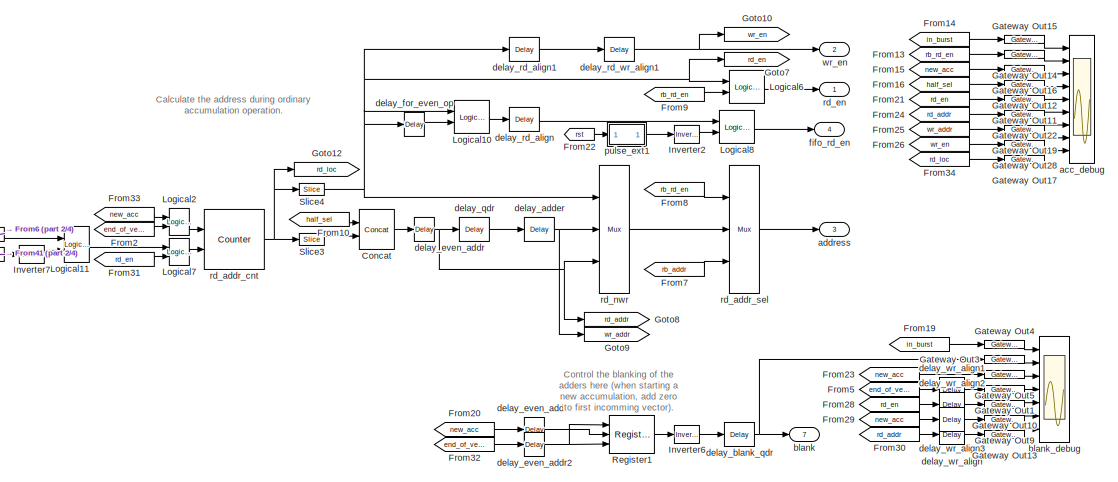
[diagram: vacc0/qv/acc_ctrl - part 1/4, top center region]
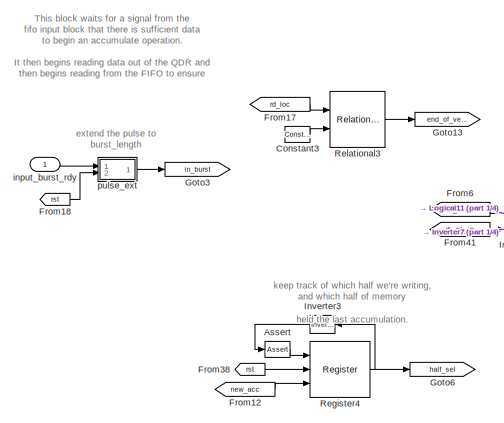
[diagram: vacc0/qv/acc_ctrl - part 2/4, top left region]
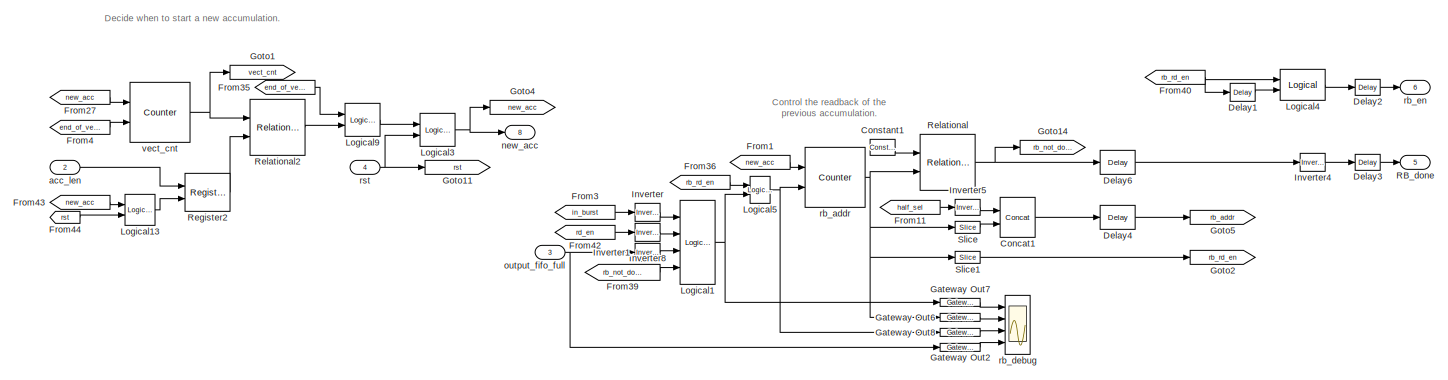
[diagram: vacc0/qv/acc_ctrl - part 3/4, full width, bottom band]
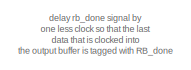
[diagram: vacc0/qv/acc_ctrl - part 4/4, bottom right region]
BLOCK [SubSystem] vacc0/qv/acc_ctrl
  FunctionWithSeparateData = off
  MaskCallbackString = ||
  MaskDescription = QDR delay must be odd (9 is ok, 11 is ok, 10 is not).
  MaskEnableString = on,on,on
  MaskHideContents = off
  MaskIconFrame = on
  MaskIconOpaque = on
  MaskIconRotate = none
  MaskIconUnits = autoscale
  MaskPromptString = delay qdr|delay_in_fifo|delay_adder
  MaskStyleString = edit,edit,edit
  MaskTabNameString = ,,
  MaskToolTipString = on,on,on
  MaskTunableValueString = on,on,on
  MaskValueString = 11|2|2
  MaskVarAliasString = ,,
  MaskVariables = delay_qdr=@1;delay_in_fifo=@2;delay_adder=@3;
  MaskVisibilityString = on,on,on
  MinAlgLoopOccurrences = off
  Opaque = off
  Ports = [4, 8]
  PropExecContextOutsideSubsystem = off
  RTWSystemCode = Auto
  RequestExecContextInheritance = off
BLOCK [Reference] vacc0/qv/acc_ctrl/Assert  REF=xbsIndex_r4/Assert
  Ports = [1, 1]
  SourceBlock = xbsIndex_r4/Assert
  SourceType = Xilinx Assert Block
  arith_type = Unsigned
  assert_rate = on
  assert_type = on
  bin_pt = 0
  block_type = assert
  block_version = 10.1.3
  has_advanced_control = 0
  infoedit = Asserts a user-defined sample rate and/or type on a signal.<P><P>Hardware notes: In hardware this block costs nothing.
  n_bits = 1
  output_port = on
  period = 1
  rate_source = Explicitly
  sg_icon_stat = 25,16,1,1,white,blue,0,9657e937,right,
  sg_mask_display = fprintf('','COMMENT: begin icon graphics');\npatch([0 1 1 0 ],[0 0 1 1 ],[0.77 0.82 0.91]);\npatch([0.36 0.24 0.4 0.24 0.36 0.52 0.56 0.6 0.8 0.64 0.52 0.44 0.6 0.44 0.52 0.64 0.8 0.6 0.56 0.52 0.36 ],[0.125 0.3125 0.5625 0.8125 1 1 0.9375 1 1 0.75 0.9375 0.8125 0.5625 0.3125 0.1875 0.375 0.125 0.125 0.1875 0.125 0.125 ],[0.98 0.96 0.92]);\nplot([0 1 1 0 0 ],[0 0 1 1 0 ]);\nfprintf('','COMMENT: en...<+132ch>
  sggui_pos = 20,20,336,432
  type_source = Explicitly
BLOCK [Reference] vacc0/qv/acc_ctrl/Concat  REF=xbsIndex_r4/Concat
  Ports = [2, 1]
  SourceBlock = xbsIndex_r4/Concat
  SourceType = Xilinx Bus Concatenator Block
  block_type = concat
  block_version = 10.1.3
  dbl_ovrd = off
  has_advanced_control = 0
  infoedit = Concatenates two or more inputs.  Output will be cast to an unsigned value with the binary point at zero.
  num_inputs = 2
  sg_icon_stat = 35,40,2,1,white,blue,0,97b7e8d2,right,
  sg_mask_display = fprintf('','COMMENT: begin icon graphics');\npatch([0 1 1 0 ],[0 0 1 1 ],[0.77 0.82 0.91]);\npatch([0.228571 0.0571429 0.285714 0.0571429 0.228571 0.485714 0.571429 0.657143 0.942857 0.714286 0.514286 0.371429 0.6 0.371429 0.514286 0.714286 0.942857 0.657143 0.571429 0.485714 0.228571 ],[0.15 0.3 0.5 0.7 0.85 0.85 0.775 0.85 0.85 0.65 0.825 0.7 0.5 0.3 0.175 0.35 0.15 0.15 0.225 0.15 0.15 ],[0.98 ...<+259ch>
  sggui_pos = -1,-1,-1,-1
BLOCK [Reference] vacc0/qv/acc_ctrl/Concat1  REF=xbsIndex_r4/Concat
  Ports = [2, 1]
  SourceBlock = xbsIndex_r4/Concat
  SourceType = Xilinx Bus Concatenator Block
  block_type = concat
  block_version = 10.1.3
  dbl_ovrd = off
  has_advanced_control = 0
  infoedit = Concatenates two or more inputs.  Output will be cast to an unsigned value with the binary point at zero.
  num_inputs = 2
  sg_icon_stat = 35,40,2,1,white,blue,0,97b7e8d2,right,
  sg_mask_display = fprintf('','COMMENT: begin icon graphics');\npatch([0 1 1 0 ],[0 0 1 1 ],[0.77 0.82 0.91]);\npatch([0.228571 0.0571429 0.285714 0.0571429 0.228571 0.485714 0.571429 0.657143 0.942857 0.714286 0.514286 0.371429 0.6 0.371429 0.514286 0.714286 0.942857 0.657143 0.571429 0.485714 0.228571 ],[0.15 0.3 0.5 0.7 0.85 0.85 0.775 0.85 0.85 0.65 0.825 0.7 0.5 0.3 0.175 0.35 0.15 0.15 0.225 0.15 0.15 ],[0.98 ...<+259ch>
  sggui_pos = 20,20,336,162
BLOCK [Reference] vacc0/qv/acc_ctrl/Constant1  REF=xbsIndex_r4/Constant
  Ports = [0, 1]
  SourceBlock = xbsIndex_r4/Constant
  SourceType = Xilinx Constant Block Block
  arith_type = Unsigned
  bin_pt = 0
  block_type = constant
  block_version = 10.1.3
  carry = CIN
  const = vector_len - 1
  dbl_ovrd = off
  dsp48_infoedit = The use of this block for DSP48 instructions is deprecated.  Please use the Opmode block.
  equ = P=C
  explicit_period = on
  has_advanced_control = 0
  inp1 = P
  inp2 = PCIN>>17
  n_bits = vector_bits
  opr = +
  opselect = C
  period = 1
  sg_icon_stat = 25,16,0,1,white,blue,0,b6bce910,right,
  sggui_pos = 461,565,414,344
BLOCK [Reference] vacc0/qv/acc_ctrl/Constant3  REF=xbsIndex_r4/Constant
  Ports = [0, 1]
  SourceBlock = xbsIndex_r4/Constant
  SourceType = Xilinx Constant Block Block
  arith_type = Unsigned
  bin_pt = 0
  block_type = constant
  block_version = 10.1.3
  carry = CIN
  const = vector_len-1
  dbl_ovrd = off
  dsp48_infoedit = The use of this block for DSP48 instructions is deprecated.  Please use the Opmode block.
  equ = P=C
  explicit_period = on
  has_advanced_control = 0
  inp1 = P
  inp2 = PCIN>>17
  n_bits = vector_bits
  opr = +
  opselect = C
  period = 1
  sg_icon_stat = 25,16,0,1,white,blue,0,b6bce910,right,
  sggui_pos = 461,565,414,344
BLOCK [Reference] vacc0/qv/acc_ctrl/Delay1  REF=xbsIndex_r4/Delay
  Ports = [1, 1]
  SourceBlock = xbsIndex_r4/Delay
  SourceType = Xilinx Delay Block
  block_type = delay
  block_version = 10.1.3
  dbl_ovrd = off
  en = off
  has_advanced_control = 0
  infoedit = Hardware notes: A delay line is a chain, each link of which is an SRL16 followed by a flip-flop.
  latency = 1
  reg_retiming = on
  sg_icon_stat = 25,18,1,1,white,blue,0,07b98262,right,
  sg_mask_display = fprintf('','COMMENT: begin icon graphics');\npatch([0 1 1 0 ],[0 0 1 1 ],[0.77 0.82 0.91]);\npatch([0.32 0.2 0.36 0.2 0.32 0.52 0.56 0.6 0.8 0.64 0.48 0.36 0.52 0.36 0.48 0.64 0.8 0.6 0.56 0.52 0.32 ],[0.111111 0.277778 0.5 0.722222 0.888889 0.888889 0.833333 0.888889 0.888889 0.666667 0.888889 0.722222 0.5 0.277778 0.111111 0.333333 0.111111 0.111111 0.166667 0.111111 0.111111 ],[0.98 0.96 0.92])...<+207ch>
  sggui_pos = 20,20,348,254
  xl_area = [0,0,0,0,0,0,0]
  xl_use_area = off
BLOCK [Reference] vacc0/qv/acc_ctrl/Delay2  REF=xbsIndex_r4/Delay
  Ports = [1, 1]
  SourceBlock = xbsIndex_r4/Delay
  SourceType = Xilinx Delay Block
  block_type = delay
  block_version = 10.1.3
  dbl_ovrd = off
  en = off
  has_advanced_control = 0
  infoedit = Hardware notes: A delay line is a chain, each link of which is an SRL16 followed by a flip-flop.
  latency = delay_qdr
  reg_retiming = on
  sg_icon_stat = 25,16,1,1,white,blue,0,1a71059f,right,
  sg_mask_display = fprintf('','COMMENT: begin icon graphics');\npatch([0 1 1 0 ],[0 0 1 1 ],[0.77 0.82 0.91]);\npatch([0.36 0.24 0.4 0.24 0.36 0.52 0.56 0.6 0.8 0.64 0.52 0.44 0.6 0.44 0.52 0.64 0.8 0.6 0.56 0.52 0.36 ],[0.125 0.3125 0.5625 0.8125 1 1 0.9375 1 1 0.75 0.9375 0.8125 0.5625 0.3125 0.1875 0.375 0.125 0.125 0.1875 0.125 0.125 ],[0.98 0.96 0.92]);\nplot([0 1 1 0 0 ],[0 0 1 1 0 ]);\nfprintf('','COMMENT: en...<+148ch>
  sggui_pos = 20,20,348,254
  xl_area = [0,0,0,0,0,0,0]
  xl_use_area = off
BLOCK [Reference] vacc0/qv/acc_ctrl/Delay3  REF=xbsIndex_r4/Delay
  Ports = [1, 1]
  SourceBlock = xbsIndex_r4/Delay
  SourceType = Xilinx Delay Block
  block_type = delay
  block_version = 10.1.3
  dbl_ovrd = off
  en = off
  has_advanced_control = 0
  infoedit = Hardware notes: A delay line is a chain, each link of which is an SRL16 followed by a flip-flop.
  latency = delay_qdr-1
  reg_retiming = on
  sg_icon_stat = 25,16,1,1,white,blue,0,8c471295,right,
  sg_mask_display = fprintf('','COMMENT: begin icon graphics');\npatch([0 1 1 0 ],[0 0 1 1 ],[0.77 0.82 0.91]);\npatch([0.36 0.24 0.4 0.24 0.36 0.52 0.56 0.6 0.8 0.64 0.52 0.44 0.6 0.44 0.52 0.64 0.8 0.6 0.56 0.52 0.36 ],[0.125 0.3125 0.5625 0.8125 1 1 0.9375 1 1 0.75 0.9375 0.8125 0.5625 0.3125 0.1875 0.375 0.125 0.125 0.1875 0.125 0.125 ],[0.98 0.96 0.92]);\nplot([0 1 1 0 0 ],[0 0 1 1 0 ]);\nfprintf('','COMMENT: en...<+148ch>
  sggui_pos = 20,20,348,254
  xl_area = [0,0,0,0,0,0,0]
  xl_use_area = off
BLOCK [Reference] vacc0/qv/acc_ctrl/Delay4  REF=xbsIndex_r4/Delay
  Ports = [1, 1]
  SourceBlock = xbsIndex_r4/Delay
  SourceType = Xilinx Delay Block
  block_type = delay
  block_version = 10.1.3
  dbl_ovrd = off
  en = off
  has_advanced_control = 0
  infoedit = Hardware notes: A delay line is a chain, each link of which is an SRL16 followed by a flip-flop.
  latency = 1
  reg_retiming = on
  sg_icon_stat = 35,24,1,1,white,blue,0,07b98262,right,
  sg_mask_display = fprintf('','COMMENT: begin icon graphics');\npatch([0 1 1 0 ],[0 0 1 1 ],[0.77 0.82 0.91]);\npatch([0.314286 0.2 0.371429 0.2 0.314286 0.485714 0.542857 0.6 0.8 0.657143 0.514286 0.4 0.571429 0.4 0.514286 0.657143 0.8 0.6 0.542857 0.485714 0.314286 ],[0.125 0.291667 0.541667 0.791667 0.958333 0.958333 0.875 0.958333 0.958333 0.75 0.958333 0.791667 0.541667 0.291667 0.125 0.333333 0.125 0.125 0.208...<+242ch>
  sggui_pos = 20,20,348,254
  xl_area = [0,0,0,0,0,0,0]
  xl_use_area = off
BLOCK [Reference] vacc0/qv/acc_ctrl/Delay6  REF=xbsIndex_r4/Delay
  Ports = [1, 1]
  SourceBlock = xbsIndex_r4/Delay
  SourceType = Xilinx Delay Block
  block_type = delay
  block_version = 10.1.3
  dbl_ovrd = off
  en = off
  has_advanced_control = 0
  infoedit = Hardware notes: A delay line is a chain, each link of which is an SRL16 followed by a flip-flop.
  latency = 1
  reg_retiming = on
  sg_icon_stat = 35,24,1,1,white,blue,0,07b98262,right,
  sg_mask_display = fprintf('','COMMENT: begin icon graphics');\npatch([0 1 1 0 ],[0 0 1 1 ],[0.77 0.82 0.91]);\npatch([0.314286 0.2 0.371429 0.2 0.314286 0.485714 0.542857 0.6 0.8 0.657143 0.514286 0.4 0.571429 0.4 0.514286 0.657143 0.8 0.6 0.542857 0.485714 0.314286 ],[0.125 0.291667 0.541667 0.791667 0.958333 0.958333 0.875 0.958333 0.958333 0.75 0.958333 0.791667 0.541667 0.291667 0.125 0.333333 0.125 0.125 0.208...<+242ch>
  sggui_pos = 20,20,348,254
  xl_area = [0,0,0,0,0,0,0]
  xl_use_area = off
BLOCK [From] vacc0/qv/acc_ctrl/From1
  CloseFcn = tagdialog Close
  GotoTag = new_acc
BLOCK [From] vacc0/qv/acc_ctrl/From10
  CloseFcn = tagdialog Close
  GotoTag = half_sel
BLOCK [From] vacc0/qv/acc_ctrl/From11
  CloseFcn = tagdialog Close
  GotoTag = half_sel
BLOCK [From] vacc0/qv/acc_ctrl/From12
  CloseFcn = tagdialog Close
  GotoTag = new_acc
BLOCK [From] vacc0/qv/acc_ctrl/From13
  CloseFcn = tagdialog Close
  GotoTag = rb_rd_en
BLOCK [From] vacc0/qv/acc_ctrl/From14
  CloseFcn = tagdialog Close
  GotoTag = in_burst
BLOCK [From] vacc0/qv/acc_ctrl/From15
  CloseFcn = tagdialog Close
  GotoTag = new_acc
BLOCK [From] vacc0/qv/acc_ctrl/From16
  CloseFcn = tagdialog Close
  GotoTag = half_sel
BLOCK [From] vacc0/qv/acc_ctrl/From17
  CloseFcn = tagdialog Close
  GotoTag = rd_loc
BLOCK [From] vacc0/qv/acc_ctrl/From18
  CloseFcn = tagdialog Close
  GotoTag = rst
BLOCK [From] vacc0/qv/acc_ctrl/From19
  CloseFcn = tagdialog Close
  GotoTag = in_burst
BLOCK [From] vacc0/qv/acc_ctrl/From2
  CloseFcn = tagdialog Close
  GotoTag = end_of_vector
BLOCK [From] vacc0/qv/acc_ctrl/From20
  CloseFcn = tagdialog Close
  GotoTag = new_acc
BLOCK [From] vacc0/qv/acc_ctrl/From21
  CloseFcn = tagdialog Close
  GotoTag = rd_en
BLOCK [From] vacc0/qv/acc_ctrl/From22
  CloseFcn = tagdialog Close
  GotoTag = rst
BLOCK [From] vacc0/qv/acc_ctrl/From23
  CloseFcn = tagdialog Close
  GotoTag = new_acc
BLOCK [From] vacc0/qv/acc_ctrl/From24
  CloseFcn = tagdialog Close
  GotoTag = rd_addr
BLOCK [From] vacc0/qv/acc_ctrl/From25
  CloseFcn = tagdialog Close
  GotoTag = wr_addr
BLOCK [From] vacc0/qv/acc_ctrl/From26
  CloseFcn = tagdialog Close
  GotoTag = wr_en
BLOCK [From] vacc0/qv/acc_ctrl/From27
  CloseFcn = tagdialog Close
  GotoTag = new_acc
BLOCK [From] vacc0/qv/acc_ctrl/From28
  CloseFcn = tagdialog Close
  GotoTag = rd_en
BLOCK [From] vacc0/qv/acc_ctrl/From29
  CloseFcn = tagdialog Close
  GotoTag = new_acc
BLOCK [From] vacc0/qv/acc_ctrl/From3
  CloseFcn = tagdialog Close
  GotoTag = in_burst
BLOCK [From] vacc0/qv/acc_ctrl/From30
  CloseFcn = tagdialog Close
  GotoTag = rd_addr
BLOCK [From] vacc0/qv/acc_ctrl/From31
  CloseFcn = tagdialog Close
  GotoTag = rd_en
BLOCK [From] vacc0/qv/acc_ctrl/From32
  CloseFcn = tagdialog Close
  GotoTag = end_of_vector
BLOCK [From] vacc0/qv/acc_ctrl/From33
  CloseFcn = tagdialog Close
  GotoTag = new_acc
BLOCK [From] vacc0/qv/acc_ctrl/From34
  CloseFcn = tagdialog Close
  GotoTag = rd_loc
BLOCK [From] vacc0/qv/acc_ctrl/From35
  CloseFcn = tagdialog Close
  GotoTag = end_of_vector
BLOCK [From] vacc0/qv/acc_ctrl/From36
  CloseFcn = tagdialog Close
  GotoTag = rb_rd_en
BLOCK [From] vacc0/qv/acc_ctrl/From38
  CloseFcn = tagdialog Close
  GotoTag = rst
BLOCK [From] vacc0/qv/acc_ctrl/From39
  CloseFcn = tagdialog Close
  GotoTag = rb_not_done
BLOCK [From] vacc0/qv/acc_ctrl/From4
  CloseFcn = tagdialog Close
  GotoTag = end_of_vector
BLOCK [From] vacc0/qv/acc_ctrl/From40
  CloseFcn = tagdialog Close
  GotoTag = rb_rd_en
BLOCK [From] vacc0/qv/acc_ctrl/From41
  CloseFcn = tagdialog Close
  GotoTag = rb_rd_en
BLOCK [From] vacc0/qv/acc_ctrl/From42
  CloseFcn = tagdialog Close
  GotoTag = rd_en
BLOCK [From] vacc0/qv/acc_ctrl/From43
  CloseFcn = tagdialog Close
  GotoTag = new_acc
BLOCK [From] vacc0/qv/acc_ctrl/From44
  CloseFcn = tagdialog Close
  GotoTag = rst
BLOCK [From] vacc0/qv/acc_ctrl/From5
  CloseFcn = tagdialog Close
  GotoTag = end_of_vector
BLOCK [From] vacc0/qv/acc_ctrl/From6
  CloseFcn = tagdialog Close
  GotoTag = in_burst
BLOCK [From] vacc0/qv/acc_ctrl/From7
  CloseFcn = tagdialog Close
  GotoTag = rb_addr
BLOCK [From] vacc0/qv/acc_ctrl/From8
  CloseFcn = tagdialog Close
  GotoTag = rb_rd_en
BLOCK [From] vacc0/qv/acc_ctrl/From9
  CloseFcn = tagdialog Close
  GotoTag = rb_rd_en
BLOCK [Reference] vacc0/qv/acc_ctrl/Gateway Out1  REF=xbsIndex_r4/Gateway Out
  LOCs = {}
  Ports = [1, 1]
  SourceBlock = xbsIndex_r4/Gateway Out
  SourceType = Xilinx Gateway Out Block
  block_type = gatewayout
  block_version = 10.1.3
  has_advanced_control = 0
  hdl_port = off
  locs_specified = off
  sg_icon_stat = 40,8,1,1,white,grey,0,632ec840,right,
  sggui_pos = 20,20,336,384
  timing_constraint = None
  xl_area = [0, 0, 0, 0, 0, 0, 0]
  xl_use_area = off
BLOCK [Reference] vacc0/qv/acc_ctrl/Gateway Out10  REF=xbsIndex_r4/Gateway Out
  LOCs = {}
  Ports = [1, 1]
  SourceBlock = xbsIndex_r4/Gateway Out
  SourceType = Xilinx Gateway Out Block
  block_type = gatewayout
  block_version = 10.1.3
  has_advanced_control = 0
  hdl_port = off
  locs_specified = off
  sg_icon_stat = 40,8,1,1,white,grey,0,632ec840,right,
  sggui_pos = 20,20,336,384
  timing_constraint = None
  xl_area = [0, 0, 0, 0, 0, 0, 0]
  xl_use_area = off
BLOCK [Reference] vacc0/qv/acc_ctrl/Gateway Out11  REF=xbsIndex_r4/Gateway Out
  LOCs = {}
  Ports = [1, 1]
  SourceBlock = xbsIndex_r4/Gateway Out
  SourceType = Xilinx Gateway Out Block
  block_type = gatewayout
  block_version = 10.1.3
  has_advanced_control = 0
  hdl_port = off
  locs_specified = off
  sg_icon_stat = 40,8,1,1,white,grey,0,632ec840,right,
  sggui_pos = 20,20,336,384
  timing_constraint = None
  xl_area = [0, 0, 0, 0, 0, 0, 0]
  xl_use_area = off
BLOCK [Reference] vacc0/qv/acc_ctrl/Gateway Out12  REF=xbsIndex_r4/Gateway Out
  LOCs = {}
  Ports = [1, 1]
  SourceBlock = xbsIndex_r4/Gateway Out
  SourceType = Xilinx Gateway Out Block
  block_type = gatewayout
  block_version = 10.1.3
  has_advanced_control = 0
  hdl_port = off
  locs_specified = off
  sg_icon_stat = 40,8,1,1,white,grey,0,632ec840,right,
  sggui_pos = 20,20,336,384
  timing_constraint = None
  xl_area = [0, 0, 0, 0, 0, 0, 0]
  xl_use_area = off
BLOCK [Reference] vacc0/qv/acc_ctrl/Gateway Out13  REF=xbsIndex_r4/Gateway Out
  LOCs = {}
  Ports = [1, 1]
  SourceBlock = xbsIndex_r4/Gateway Out
  SourceType = Xilinx Gateway Out Block
  block_type = gatewayout
  block_version = 10.1.3
  has_advanced_control = 0
  hdl_port = off
  locs_specified = off
  sg_icon_stat = 40,8,1,1,white,grey,0,632ec840,right,
  sggui_pos = 20,20,336,384
  timing_constraint = None
  xl_area = [0, 0, 0, 0, 0, 0, 0]
  xl_use_area = off
BLOCK [Reference] vacc0/qv/acc_ctrl/Gateway Out14  REF=xbsIndex_r4/Gateway Out
  LOCs = {}
  Ports = [1, 1]
  SourceBlock = xbsIndex_r4/Gateway Out
  SourceType = Xilinx Gateway Out Block
  block_type = gatewayout
  block_version = 10.1.3
  has_advanced_control = 0
  hdl_port = off
  locs_specified = off
  sg_icon_stat = 40,8,1,1,white,grey,0,632ec840,right,
  sggui_pos = 20,20,336,384
  timing_constraint = None
  xl_area = [0, 0, 0, 0, 0, 0, 0]
  xl_use_area = off
BLOCK [Reference] vacc0/qv/acc_ctrl/Gateway Out15  REF=xbsIndex_r4/Gateway Out
  LOCs = {}
  Ports = [1, 1]
  SourceBlock = xbsIndex_r4/Gateway Out
  SourceType = Xilinx Gateway Out Block
  block_type = gatewayout
  block_version = 10.1.3
  has_advanced_control = 0
  hdl_port = off
  locs_specified = off
  sg_icon_stat = 40,8,1,1,white,grey,0,632ec840,right,
  sggui_pos = 20,20,336,384
  timing_constraint = None
  xl_area = [0, 0, 0, 0, 0, 0, 0]
  xl_use_area = off
BLOCK [Reference] vacc0/qv/acc_ctrl/Gateway Out16  REF=xbsIndex_r4/Gateway Out
  LOCs = {}
  Ports = [1, 1]
  SourceBlock = xbsIndex_r4/Gateway Out
  SourceType = Xilinx Gateway Out Block
  block_type = gatewayout
  block_version = 10.1.3
  has_advanced_control = 0
  hdl_port = off
  locs_specified = off
  sg_icon_stat = 40,8,1,1,white,grey,0,632ec840,right,
  sggui_pos = 20,20,336,384
  timing_constraint = None
  xl_area = [0, 0, 0, 0, 0, 0, 0]
  xl_use_area = off
BLOCK [Reference] vacc0/qv/acc_ctrl/Gateway Out17  REF=xbsIndex_r4/Gateway Out
  LOCs = {}
  Ports = [1, 1]
  SourceBlock = xbsIndex_r4/Gateway Out
  SourceType = Xilinx Gateway Out Block
  block_type = gatewayout
  block_version = 10.1.3
  has_advanced_control = 0
  hdl_port = off
  locs_specified = off
  sg_icon_stat = 40,8,1,1,white,grey,0,632ec840,right,
  sggui_pos = 20,20,336,384
  timing_constraint = None
  xl_area = [0, 0, 0, 0, 0, 0, 0]
  xl_use_area = off
BLOCK [Reference] vacc0/qv/acc_ctrl/Gateway Out19  REF=xbsIndex_r4/Gateway Out
  LOCs = {}
  Ports = [1, 1]
  SourceBlock = xbsIndex_r4/Gateway Out
  SourceType = Xilinx Gateway Out Block
  block_type = gatewayout
  block_version = 10.1.3
  has_advanced_control = 0
  hdl_port = off
  locs_specified = off
  sg_icon_stat = 40,8,1,1,white,grey,0,632ec840,right,
  sggui_pos = 20,20,336,384
  timing_constraint = None
  xl_area = [0, 0, 0, 0, 0, 0, 0]
  xl_use_area = off
BLOCK [Reference] vacc0/qv/acc_ctrl/Gateway Out2  REF=xbsIndex_r4/Gateway Out
  LOCs = {}
  Ports = [1, 1]
  SourceBlock = xbsIndex_r4/Gateway Out
  SourceType = Xilinx Gateway Out Block
  block_type = gatewayout
  block_version = 10.1.3
  has_advanced_control = 0
  hdl_port = off
  locs_specified = off
  sg_icon_stat = 40,8,1,1,white,grey,0,632ec840,right,
  sggui_pos = 20,20,336,384
  timing_constraint = None
  xl_area = [0, 0, 0, 0, 0, 0, 0]
  xl_use_area = off
BLOCK [Reference] vacc0/qv/acc_ctrl/Gateway Out22  REF=xbsIndex_r4/Gateway Out
  LOCs = {}
  Ports = [1, 1]
  SourceBlock = xbsIndex_r4/Gateway Out
  SourceType = Xilinx Gateway Out Block
  block_type = gatewayout
  block_version = 10.1.3
  has_advanced_control = 0
  hdl_port = off
  locs_specified = off
  sg_icon_stat = 40,8,1,1,white,grey,0,632ec840,right,
  sggui_pos = 20,20,336,384
  timing_constraint = None
  xl_area = [0, 0, 0, 0, 0, 0, 0]
  xl_use_area = off
BLOCK [Reference] vacc0/qv/acc_ctrl/Gateway Out28  REF=xbsIndex_r4/Gateway Out
  LOCs = {}
  Ports = [1, 1]
  SourceBlock = xbsIndex_r4/Gateway Out
  SourceType = Xilinx Gateway Out Block
  block_type = gatewayout
  block_version = 10.1.3
  has_advanced_control = 0
  hdl_port = off
  locs_specified = off
  sg_icon_stat = 40,8,1,1,white,grey,0,632ec840,right,
  sggui_pos = 20,20,336,384
  timing_constraint = None
  xl_area = [0, 0, 0, 0, 0, 0, 0]
  xl_use_area = off
BLOCK [Reference] vacc0/qv/acc_ctrl/Gateway Out3  REF=xbsIndex_r4/Gateway Out
  LOCs = {}
  Ports = [1, 1]
  SourceBlock = xbsIndex_r4/Gateway Out
  SourceType = Xilinx Gateway Out Block
  block_type = gatewayout
  block_version = 10.1.3
  has_advanced_control = 0
  hdl_port = off
  locs_specified = off
  sg_icon_stat = 40,8,1,1,white,grey,0,632ec840,right,
  sggui_pos = 20,20,336,384
  timing_constraint = None
  xl_area = [0, 0, 0, 0, 0, 0, 0]
  xl_use_area = off
BLOCK [Reference] vacc0/qv/acc_ctrl/Gateway Out4  REF=xbsIndex_r4/Gateway Out
  LOCs = {}
  Ports = [1, 1]
  SourceBlock = xbsIndex_r4/Gateway Out
  SourceType = Xilinx Gateway Out Block
  block_type = gatewayout
  block_version = 10.1.3
  has_advanced_control = 0
  hdl_port = off
  locs_specified = off
  sg_icon_stat = 40,8,1,1,white,grey,0,632ec840,right,
  sggui_pos = 20,20,336,384
  timing_constraint = None
  xl_area = [0, 0, 0, 0, 0, 0, 0]
  xl_use_area = off
BLOCK [Reference] vacc0/qv/acc_ctrl/Gateway Out5  REF=xbsIndex_r4/Gateway Out
  LOCs = {}
  Ports = [1, 1]
  SourceBlock = xbsIndex_r4/Gateway Out
  SourceType = Xilinx Gateway Out Block
  block_type = gatewayout
  block_version = 10.1.3
  has_advanced_control = 0
  hdl_port = off
  locs_specified = off
  sg_icon_stat = 40,8,1,1,white,grey,0,632ec840,right,
  sggui_pos = 20,20,336,384
  timing_constraint = None
  xl_area = [0, 0, 0, 0, 0, 0, 0]
  xl_use_area = off
BLOCK [Reference] vacc0/qv/acc_ctrl/Gateway Out6  REF=xbsIndex_r4/Gateway Out
  LOCs = {}
  Ports = [1, 1]
  SourceBlock = xbsIndex_r4/Gateway Out
  SourceType = Xilinx Gateway Out Block
  block_type = gatewayout
  block_version = 10.1.3
  has_advanced_control = 0
  hdl_port = off
  locs_specified = off
  sg_icon_stat = 40,8,1,1,white,grey,0,632ec840,right,
  sggui_pos = 20,20,336,384
  timing_constraint = None
  xl_area = [0, 0, 0, 0, 0, 0, 0]
  xl_use_area = off
BLOCK [Reference] vacc0/qv/acc_ctrl/Gateway Out7  REF=xbsIndex_r4/Gateway Out
  LOCs = {}
  Ports = [1, 1]
  SourceBlock = xbsIndex_r4/Gateway Out
  SourceType = Xilinx Gateway Out Block
  block_type = gatewayout
  block_version = 10.1.3
  has_advanced_control = 0
  hdl_port = off
  locs_specified = off
  sg_icon_stat = 40,8,1,1,white,grey,0,632ec840,right,
  sggui_pos = 20,20,336,384
  timing_constraint = None
  xl_area = [0, 0, 0, 0, 0, 0, 0]
  xl_use_area = off
BLOCK [Reference] vacc0/qv/acc_ctrl/Gateway Out8  REF=xbsIndex_r4/Gateway Out
  LOCs = {}
  Ports = [1, 1]
  SourceBlock = xbsIndex_r4/Gateway Out
  SourceType = Xilinx Gateway Out Block
  block_type = gatewayout
  block_version = 10.1.3
  has_advanced_control = 0
  hdl_port = off
  locs_specified = off
  sg_icon_stat = 40,8,1,1,white,grey,0,632ec840,right,
  sggui_pos = 20,20,336,384
  timing_constraint = None
  xl_area = [0, 0, 0, 0, 0, 0, 0]
  xl_use_area = off
BLOCK [Reference] vacc0/qv/acc_ctrl/Gateway Out9  REF=xbsIndex_r4/Gateway Out
  LOCs = {}
  Ports = [1, 1]
  SourceBlock = xbsIndex_r4/Gateway Out
  SourceType = Xilinx Gateway Out Block
  block_type = gatewayout
  block_version = 10.1.3
  has_advanced_control = 0
  hdl_port = off
  locs_specified = off
  sg_icon_stat = 40,8,1,1,white,grey,0,632ec840,right,
  sggui_pos = 20,20,336,384
  timing_constraint = None
  xl_area = [0, 0, 0, 0, 0, 0, 0]
  xl_use_area = off
BLOCK [Goto] vacc0/qv/acc_ctrl/Goto1
  GotoTag = vect_cnt
  TagVisibility = local
BLOCK [Goto] vacc0/qv/acc_ctrl/Goto10
  GotoTag = wr_en
  TagVisibility = local
BLOCK [Goto] vacc0/qv/acc_ctrl/Goto11
  GotoTag = rst
  TagVisibility = local
BLOCK [Goto] vacc0/qv/acc_ctrl/Goto12
  GotoTag = rd_loc
  TagVisibility = local
BLOCK [Goto] vacc0/qv/acc_ctrl/Goto13
  GotoTag = end_of_vector
  TagVisibility = local
BLOCK [Goto] vacc0/qv/acc_ctrl/Goto14
  GotoTag = rb_not_done
  TagVisibility = local
BLOCK [Goto] vacc0/qv/acc_ctrl/Goto2
  GotoTag = rb_rd_en
  TagVisibility = local
BLOCK [Goto] vacc0/qv/acc_ctrl/Goto3
  GotoTag = in_burst
  TagVisibility = local
BLOCK [Goto] vacc0/qv/acc_ctrl/Goto4
  GotoTag = new_acc
  TagVisibility = local
BLOCK [Goto] vacc0/qv/acc_ctrl/Goto5
  GotoTag = rb_addr
  TagVisibility = local
BLOCK [Goto] vacc0/qv/acc_ctrl/Goto6
  GotoTag = half_sel
  TagVisibility = local
BLOCK [Goto] vacc0/qv/acc_ctrl/Goto7
  GotoTag = rd_en
  TagVisibility = local
BLOCK [Goto] vacc0/qv/acc_ctrl/Goto8
  GotoTag = rd_addr
  TagVisibility = local
BLOCK [Goto] vacc0/qv/acc_ctrl/Goto9
  GotoTag = wr_addr
  TagVisibility = local
BLOCK [Reference] vacc0/qv/acc_ctrl/Inverter  REF=xbsIndex_r4/Inverter
  Ports = [1, 1]
  SourceBlock = xbsIndex_r4/Inverter
  SourceType = Xilinx Inverter Block
  block_type = inv
  block_version = 10.1.3
  dbl_ovrd = off
  en = off
  has_advanced_control = 0
  infoedit = Bitwise logical negation (one's complement) operator.
  latency = 0
  sg_icon_stat = 25,18,1,1,white,blue,0,267846e5,right,
  sg_mask_display = fprintf('','COMMENT: begin icon graphics');\npatch([0 1 1 0 ],[0 0 1 1 ],[0.77 0.82 0.91]);\npatch([0.32 0.2 0.36 0.2 0.32 0.52 0.56 0.6 0.8 0.64 0.48 0.36 0.52 0.36 0.48 0.64 0.8 0.6 0.56 0.52 0.32 ],[0.111111 0.277778 0.5 0.722222 0.888889 0.888889 0.833333 0.888889 0.888889 0.666667 0.888889 0.722222 0.5 0.277778 0.111111 0.333333 0.111111 0.111111 0.166667 0.111111 0.111111 ],[0.98 0.96 0.92])...<+189ch>  <repeated x8 — deduplicated; at blocks: Inverter, Inverter1, Inverter2, Inverter3, Inverter4, Inverter6, Inverter7, Inverter8>
  sggui_pos = 20,20,348,248
  xl_area = [0,0,0,0,0,0,0]
  xl_use_area = off
BLOCK [Reference] vacc0/qv/acc_ctrl/Inverter1  REF=xbsIndex_r4/Inverter
  Ports = [1, 1]
  SourceBlock = xbsIndex_r4/Inverter
  SourceType = Xilinx Inverter Block
  block_type = inv
  block_version = 10.1.3
  dbl_ovrd = off
  en = off
  has_advanced_control = 0
  infoedit = Bitwise logical negation (one's complement) operator.
  latency = 0
  sg_icon_stat = 25,18,1,1,white,blue,0,267846e5,right,
  sggui_pos = 20,20,348,248
  xl_area = [0,0,0,0,0,0,0]
  xl_use_area = off
BLOCK [Reference] vacc0/qv/acc_ctrl/Inverter2  REF=xbsIndex_r4/Inverter
  Ports = [1, 1]
  SourceBlock = xbsIndex_r4/Inverter
  SourceType = Xilinx Inverter Block
  block_type = inv
  block_version = 10.1.3
  dbl_ovrd = off
  en = off
  has_advanced_control = 0
  infoedit = Bitwise logical negation (one's complement) operator.
  latency = 0
  sg_icon_stat = 25,18,1,1,white,blue,0,267846e5,right,
  sggui_pos = 20,20,348,248
  xl_area = [0,0,0,0,0,0,0]
  xl_use_area = off
BLOCK [Reference] vacc0/qv/acc_ctrl/Inverter3  REF=xbsIndex_r4/Inverter
  Ports = [1, 1]
  SourceBlock = xbsIndex_r4/Inverter
  SourceType = Xilinx Inverter Block
  block_type = inv
  block_version = 10.1.3
  dbl_ovrd = off
  en = off
  has_advanced_control = 0
  infoedit = Bitwise logical negation (one's complement) operator.
  latency = 0
  sg_icon_stat = 25,18,1,1,white,blue,0,267846e5,left,
  sggui_pos = 20,20,348,248
  xl_area = [0,0,0,0,0,0,0]
  xl_use_area = off
BLOCK [Reference] vacc0/qv/acc_ctrl/Inverter4  REF=xbsIndex_r4/Inverter
  Ports = [1, 1]
  SourceBlock = xbsIndex_r4/Inverter
  SourceType = Xilinx Inverter Block
  block_type = inv
  block_version = 10.1.3
  dbl_ovrd = off
  en = off
  has_advanced_control = 0
  infoedit = Bitwise logical negation (one's complement) operator.
  latency = 0
  sg_icon_stat = 25,18,1,1,white,blue,0,267846e5,right,
  sggui_pos = -1,-1,-1,-1
  xl_area = [0,0,0,0,0,0,0]
  xl_use_area = off
BLOCK [Reference] vacc0/qv/acc_ctrl/Inverter5  REF=xbsIndex_r4/Inverter
  Ports = [1, 1]
  SourceBlock = xbsIndex_r4/Inverter
  SourceType = Xilinx Inverter Block
  block_type = inv
  block_version = 10.1.3
  dbl_ovrd = off
  en = off
  has_advanced_control = 0
  infoedit = Bitwise logical negation (one's complement) operator.
  latency = 0
  sg_icon_stat = 25,16,1,1,white,blue,0,267846e5,right,
  sg_mask_display = fprintf('','COMMENT: begin icon graphics');\npatch([0 1 1 0 ],[0 0 1 1 ],[0.77 0.82 0.91]);\npatch([0.36 0.24 0.4 0.24 0.36 0.52 0.56 0.6 0.8 0.64 0.52 0.44 0.6 0.44 0.52 0.64 0.8 0.6 0.56 0.52 0.36 ],[0.125 0.3125 0.5625 0.8125 1 1 0.9375 1 1 0.75 0.9375 0.8125 0.5625 0.3125 0.1875 0.375 0.125 0.125 0.1875 0.125 0.125 ],[0.98 0.96 0.92]);\nplot([0 1 1 0 0 ],[0 0 1 1 0 ]);\nfprintf('','COMMENT: en...<+129ch>
  sggui_pos = -1,-1,-1,-1
  xl_area = [0,0,0,0,0,0,0]
  xl_use_area = off
BLOCK [Reference] vacc0/qv/acc_ctrl/Inverter6  REF=xbsIndex_r4/Inverter
  Ports = [1, 1]
  SourceBlock = xbsIndex_r4/Inverter
  SourceType = Xilinx Inverter Block
  block_type = inv
  block_version = 10.1.3
  dbl_ovrd = off
  en = off
  has_advanced_control = 0
  infoedit = Bitwise logical negation (one's complement) operator.
  latency = 0
  sg_icon_stat = 25,18,1,1,white,blue,0,267846e5,right,
  sggui_pos = 20,20,348,248
  xl_area = [0,0,0,0,0,0,0]
  xl_use_area = off
BLOCK [Reference] vacc0/qv/acc_ctrl/Inverter7  REF=xbsIndex_r4/Inverter
  Ports = [1, 1]
  SourceBlock = xbsIndex_r4/Inverter
  SourceType = Xilinx Inverter Block
  block_type = inv
  block_version = 10.1.3
  dbl_ovrd = off
  en = off
  has_advanced_control = 0
  infoedit = Bitwise logical negation (one's complement) operator.
  latency = 0
  sg_icon_stat = 25,18,1,1,white,blue,0,267846e5,right,
  sggui_pos = 20,20,348,248
  xl_area = [0,0,0,0,0,0,0]
  xl_use_area = off
BLOCK [Reference] vacc0/qv/acc_ctrl/Inverter8  REF=xbsIndex_r4/Inverter
  Ports = [1, 1]
  SourceBlock = xbsIndex_r4/Inverter
  SourceType = Xilinx Inverter Block
  block_type = inv
  block_version = 10.1.3
  dbl_ovrd = off
  en = off
  has_advanced_control = 0
  infoedit = Bitwise logical negation (one's complement) operator.
  latency = 0
  sg_icon_stat = 25,18,1,1,white,blue,0,267846e5,right,
  sggui_pos = 20,20,348,248
  xl_area = [0,0,0,0,0,0,0]
  xl_use_area = off
BLOCK [Reference] vacc0/qv/acc_ctrl/Logical1  REF=xbsIndex_r4/Logical
  Ports = [4, 1]
  SourceBlock = xbsIndex_r4/Logical
  SourceType = Xilinx Logical Block Block
  align_bp = on
  arith_type = Unsigned
  bin_pt = 0
  block_type = logical
  block_version = 10.1.3
  dbl_ovrd = off
  en = off
  has_advanced_control = 0
  inputs = 4
  latency = 0
  logical_function = AND
  n_bits = 16
  precision = Full
  sg_icon_stat = 35,84,4,1,white,blue,0,3960bae2,right,
  sg_mask_display = fprintf('','COMMENT: begin icon graphics');\npatch([0 1 1 0 ],[0 0 1 1 ],[0.77 0.82 0.91]);\npatch([0.228571 0.0571429 0.285714 0.0571429 0.228571 0.485714 0.571429 0.657143 0.942857 0.714286 0.514286 0.371429 0.6 0.371429 0.514286 0.714286 0.942857 0.657143 0.571429 0.485714 0.228571 ],[0.333333 0.404762 0.5 0.595238 0.666667 0.666667 0.630952 0.666667 0.666667 0.571429 0.654762 0.595238 0.5 0.40...<+315ch>
  sggui_pos = 20,20,348,262
  xl_area = [0,0,0,0,0,0,0]
  xl_use_area = off
BLOCK [Reference] vacc0/qv/acc_ctrl/Logical10  REF=xbsIndex_r4/Logical
  Ports = [2, 1]
  SourceBlock = xbsIndex_r4/Logical
  SourceType = Xilinx Logical Block Block
  align_bp = on
  arith_type = Unsigned
  bin_pt = 0
  block_type = logical
  block_version = 10.1.3
  dbl_ovrd = off
  en = off
  has_advanced_control = 0
  inputs = 2
  latency = 0
  logical_function = OR
  n_bits = 16
  precision = Full
  sg_icon_stat = 35,33,2,1,white,blue,0,fc354646,right,
  sg_mask_display = fprintf('','COMMENT: begin icon graphics');\npatch([0 1 1 0 ],[0 0 1 1 ],[0.77 0.82 0.91]);\npatch([0.228571 0.0857143 0.314286 0.0857143 0.228571 0.485714 0.542857 0.6 0.857143 0.657143 0.457143 0.314286 0.542857 0.314286 0.457143 0.657143 0.857143 0.6 0.542857 0.485714 0.228571 ],[0.121212 0.272727 0.515152 0.757576 0.909091 0.909091 0.848485 0.909091 0.909091 0.69697 0.909091 0.757576 0.515152 ...<+318ch>  <repeated x3 — deduplicated; at blocks: Logical10, Logical3, Logical6>
  sggui_pos = 20,20,348,262
  xl_area = [0,0,0,0,0,0,0]
  xl_use_area = off
BLOCK [Reference] vacc0/qv/acc_ctrl/Logical11  REF=xbsIndex_r4/Logical
  Ports = [2, 1]
  SourceBlock = xbsIndex_r4/Logical
  SourceType = Xilinx Logical Block Block
  align_bp = on
  arith_type = Unsigned
  bin_pt = 0
  block_type = logical
  block_version = 10.1.3
  dbl_ovrd = off
  en = off
  has_advanced_control = 0
  inputs = 2
  latency = 0
  logical_function = AND
  n_bits = 16
  precision = Full
  sg_icon_stat = 25,36,2,1,white,blue,0,0a851f85,right,
  sg_mask_display = fprintf('','COMMENT: begin icon graphics');\npatch([0 1 1 0 ],[0 0 1 1 ],[0.77 0.82 0.91]);\npatch([0.24 0.08 0.32 0.08 0.24 0.52 0.6 0.68 0.96 0.72 0.52 0.36 0.56 0.36 0.52 0.72 0.96 0.68 0.6 0.52 0.24 ],[0.222222 0.333333 0.5 0.666667 0.777778 0.777778 0.722222 0.777778 0.777778 0.611111 0.75 0.638889 0.5 0.361111 0.25 0.388889 0.222222 0.222222 0.277778 0.222222 0.222222 ],[0.98 0.96 0.92]);\np...<+224ch>
  sggui_pos = 20,20,348,262
  xl_area = [0,0,0,0,0,0,0]
  xl_use_area = off
BLOCK [Reference] vacc0/qv/acc_ctrl/Logical13  REF=xbsIndex_r4/Logical
  Ports = [2, 1]
  SourceBlock = xbsIndex_r4/Logical
  SourceType = Xilinx Logical Block Block
  align_bp = on
  arith_type = Unsigned
  bin_pt = 0
  block_type = logical
  block_version = 10.1.3
  dbl_ovrd = off
  en = off
  has_advanced_control = 0
  inputs = 2
  latency = 0
  logical_function = OR
  n_bits = 16
  precision = Full
  sg_icon_stat = 30,31,2,1,white,blue,0,fc354646,right,
  sg_mask_display = fprintf('','COMMENT: begin icon graphics');\npatch([0 1 1 0 ],[0 0 1 1 ],[0.77 0.82 0.91]);\npatch([0.233333 0.0666667 0.3 0.0666667 0.233333 0.5 0.566667 0.633333 0.9 0.666667 0.466667 0.3 0.5 0.3 0.466667 0.666667 0.9 0.633333 0.566667 0.5 0.233333 ],[0.129032 0.290323 0.516129 0.741935 0.903226 0.903226 0.83871 0.903226 0.903226 0.677419 0.870968 0.709677 0.516129 0.322581 0.16129 0.354839 0.12...<+287ch>
  sggui_pos = 20,20,348,262
  xl_area = [0,0,0,0,0,0,0]
  xl_use_area = off
BLOCK [Reference] vacc0/qv/acc_ctrl/Logical2  REF=xbsIndex_r4/Logical
  Ports = [2, 1]
  SourceBlock = xbsIndex_r4/Logical
  SourceType = Xilinx Logical Block Block
  align_bp = on
  arith_type = Unsigned
  bin_pt = 0
  block_type = logical
  block_version = 10.1.3
  dbl_ovrd = off
  en = off
  has_advanced_control = 0
  inputs = 2
  latency = 0
  logical_function = OR
  n_bits = 16
  precision = Full
  sg_icon_stat = 20,27,2,1,white,blue,0,fc354646,right,
  sggui_pos = 20,20,348,262
  xl_area = [0,0,0,0,0,0,0]
  xl_use_area = off
BLOCK [Reference] vacc0/qv/acc_ctrl/Logical3  REF=xbsIndex_r4/Logical
  Ports = [2, 1]
  SourceBlock = xbsIndex_r4/Logical
  SourceType = Xilinx Logical Block Block
  align_bp = on
  arith_type = Unsigned
  bin_pt = 0
  block_type = logical
  block_version = 10.1.3
  dbl_ovrd = off
  en = off
  has_advanced_control = 0
  inputs = 2
  latency = 0
  logical_function = OR
  n_bits = 16
  precision = Full
  sg_icon_stat = 35,33,2,1,white,blue,0,fc354646,right,
  sggui_pos = 20,20,348,262
  xl_area = [0,0,0,0,0,0,0]
  xl_use_area = off
BLOCK [Reference] vacc0/qv/acc_ctrl/Logical4  REF=xbsIndex_r4/Logical
  Ports = [2, 1]
  SourceBlock = xbsIndex_r4/Logical
  SourceType = Xilinx Logical Block Block
  align_bp = on
  arith_type = Unsigned
  bin_pt = 0
  block_type = logical
  block_version = 10.1.3
  dbl_ovrd = off
  en = off
  has_advanced_control = 0
  inputs = 2
  latency = 0
  logical_function = OR
  n_bits = 16
  precision = Full
  sg_icon_stat = 45,31,2,1,white,blue,0,fc354646,right,
  sg_mask_display = fprintf('','COMMENT: begin icon graphics');\npatch([0 1 1 0 ],[0 0 1 1 ],[0.77 0.82 0.91]);\npatch([0.311111 0.2 0.355556 0.2 0.311111 0.488889 0.533333 0.577778 0.777778 0.622222 0.466667 0.355556 0.511111 0.355556 0.466667 0.622222 0.777778 0.577778 0.533333 0.488889 0.311111 ],[0.0967742 0.258065 0.483871 0.709677 0.870968 0.870968 0.806452 0.870968 0.870968 0.645161 0.870968 0.709677 0.483871 ...<+322ch>  <repeated x3 — deduplicated; at blocks: Logical4, Logical1>
  sggui_pos = 20,20,348,262
  xl_area = [0,0,0,0,0,0,0]
  xl_use_area = off
BLOCK [Reference] vacc0/qv/acc_ctrl/Logical5  REF=xbsIndex_r4/Logical
  Ports = [2, 1]
  SourceBlock = xbsIndex_r4/Logical
  SourceType = Xilinx Logical Block Block
  align_bp = on
  arith_type = Unsigned
  bin_pt = 0
  block_type = logical
  block_version = 10.1.3
  dbl_ovrd = off
  en = off
  has_advanced_control = 0
  inputs = 2
  latency = 0
  logical_function = OR
  n_bits = 16
  precision = Full
  sg_icon_stat = 20,27,2,1,white,blue,0,fc354646,right,
  sggui_pos = 20,20,348,262
  xl_area = [0,0,0,0,0,0,0]
  xl_use_area = off
BLOCK [Reference] vacc0/qv/acc_ctrl/Logical6  REF=xbsIndex_r4/Logical
  Ports = [2, 1]
  SourceBlock = xbsIndex_r4/Logical
  SourceType = Xilinx Logical Block Block
  align_bp = on
  arith_type = Unsigned
  bin_pt = 0
  block_type = logical
  block_version = 10.1.3
  dbl_ovrd = off
  en = off
  has_advanced_control = 0
  inputs = 2
  latency = 0
  logical_function = OR
  n_bits = 16
  precision = Full
  sg_icon_stat = 35,33,2,1,white,blue,0,fc354646,right,
  sggui_pos = 20,20,348,262
  xl_area = [0,0,0,0,0,0,0]
  xl_use_area = off
BLOCK [Reference] vacc0/qv/acc_ctrl/Logical7  REF=xbsIndex_r4/Logical
  Ports = [2, 1]
  SourceBlock = xbsIndex_r4/Logical
  SourceType = Xilinx Logical Block Block
  align_bp = on
  arith_type = Unsigned
  bin_pt = 0
  block_type = logical
  block_version = 10.1.3
  dbl_ovrd = off
  en = off
  has_advanced_control = 0
  inputs = 2
  latency = 0
  logical_function = OR
  n_bits = 16
  precision = Full
  sg_icon_stat = 20,27,2,1,white,blue,0,fc354646,right,
  sggui_pos = 20,20,348,262
  xl_area = [0,0,0,0,0,0,0]
  xl_use_area = off
BLOCK [Reference] vacc0/qv/acc_ctrl/Logical8  REF=xbsIndex_r4/Logical
  Ports = [2, 1]
  SourceBlock = xbsIndex_r4/Logical
  SourceType = Xilinx Logical Block Block
  align_bp = on
  arith_type = Unsigned
  bin_pt = 0
  block_type = logical
  block_version = 10.1.3
  dbl_ovrd = off
  en = off
  has_advanced_control = 0
  inputs = 2
  latency = 0
  logical_function = AND
  n_bits = 16
  precision = Full
  sg_icon_stat = 35,33,2,1,white,blue,0,0a851f85,right,
  sg_mask_display = fprintf('','COMMENT: begin icon graphics');\npatch([0 1 1 0 ],[0 0 1 1 ],[0.77 0.82 0.91]);\npatch([0.228571 0.0857143 0.314286 0.0857143 0.228571 0.485714 0.542857 0.6 0.857143 0.657143 0.457143 0.314286 0.542857 0.314286 0.457143 0.657143 0.857143 0.6 0.542857 0.485714 0.228571 ],[0.121212 0.272727 0.515152 0.757576 0.909091 0.909091 0.848485 0.909091 0.909091 0.69697 0.909091 0.757576 0.515152 ...<+319ch>
  sggui_pos = 20,20,348,262
  xl_area = [0,0,0,0,0,0,0]
  xl_use_area = off
BLOCK [Reference] vacc0/qv/acc_ctrl/Logical9  REF=xbsIndex_r4/Logical
  Ports = [2, 1]
  SourceBlock = xbsIndex_r4/Logical
  SourceType = Xilinx Logical Block Block
  align_bp = on
  arith_type = Unsigned
  bin_pt = 0
  block_type = logical
  block_version = 10.1.3
  dbl_ovrd = off
  en = off
  has_advanced_control = 0
  inputs = 2
  latency = 0
  logical_function = AND
  n_bits = 16
  precision = Full
  sg_icon_stat = 35,33,2,1,white,blue,0,0a851f85,right,
  sg_mask_display = fprintf('','COMMENT: begin icon graphics');\npatch([0 1 1 0 ],[0 0 1 1 ],[0.77 0.82 0.91]);\npatch([0.228571 0.0857143 0.314286 0.0857143 0.228571 0.485714 0.542857 0.6 0.857143 0.657143 0.457143 0.314286 0.542857 0.314286 0.457143 0.657143 0.857143 0.6 0.542857 0.485714 0.228571 ],[0.121212 0.272727 0.515152 0.757576 0.909091 0.909091 0.848485 0.909091 0.909091 0.69697 0.909091 0.757576 0.515152 ...<+319ch>
  sggui_pos = 20,20,348,262
  xl_area = [0,0,0,0,0,0,0]
  xl_use_area = off
BLOCK [Outport] vacc0/qv/acc_ctrl/RB_done
  IconDisplay = Port number
  OutDataType = sfix(16)
  OutScaling = 2^0
  Port = 5
BLOCK [Reference] vacc0/qv/acc_ctrl/Register1  REF=xbsIndex_r4/Register
  Ports = [3, 1]
  SourceBlock = xbsIndex_r4/Register
  SourceType = Xilinx Register Block
  block_type = register
  block_version = 10.1.3
  dbl_ovrd = off
  en = on
  has_advanced_control = 0
  init = 0
  rst = on
  sg_icon_stat = 45,38,3,1,white,blue,0,b821322c,right,
  sg_mask_display = fprintf('','COMMENT: begin icon graphics');\npatch([0 1 1 0 ],[0 0 1 1 ],[0.77 0.82 0.91]);\npatch([0.266667 0.133333 0.333333 0.133333 0.266667 0.488889 0.555556 0.622222 0.866667 0.688889 0.511111 0.377778 0.577778 0.377778 0.511111 0.688889 0.866667 0.622222 0.555556 0.488889 0.266667 ],[0.105263 0.263158 0.5 0.736842 0.894737 0.894737 0.815789 0.894737 0.894737 0.684211 0.894737 0.736842 0.5 0...<+479ch>
  sggui_pos = 20,20,348,192
  xl_area = [0,0,0,0,0,0,0]
  xl_use_area = off
BLOCK [Reference] vacc0/qv/acc_ctrl/Register2  REF=xbsIndex_r4/Register
  Ports = [2, 1]
  SourceBlock = xbsIndex_r4/Register
  SourceType = Xilinx Register Block
  block_type = register
  block_version = 10.1.3
  dbl_ovrd = off
  en = on
  has_advanced_control = 0
  init = 0
  rst = off
  sg_icon_stat = 45,38,2,1,white,blue,0,01f465d5,right,
  sg_mask_display = fprintf('','COMMENT: begin icon graphics');\npatch([0 1 1 0 ],[0 0 1 1 ],[0.77 0.82 0.91]);\npatch([0.266667 0.133333 0.333333 0.133333 0.266667 0.488889 0.555556 0.622222 0.866667 0.688889 0.511111 0.377778 0.577778 0.377778 0.511111 0.688889 0.866667 0.622222 0.555556 0.488889 0.266667 ],[0.105263 0.263158 0.5 0.736842 0.894737 0.894737 0.815789 0.894737 0.894737 0.684211 0.894737 0.736842 0.5 0...<+434ch>
  sggui_pos = 20,24,419,209
  xl_area = [0,0,0,0,0,0,0]
  xl_use_area = off
BLOCK [Reference] vacc0/qv/acc_ctrl/Register4  REF=xbsIndex_r4/Register
  Ports = [3, 1]
  SourceBlock = xbsIndex_r4/Register
  SourceType = Xilinx Register Block
  block_type = register
  block_version = 10.1.3
  dbl_ovrd = off
  en = on
  has_advanced_control = 0
  init = 0
  rst = on
  sg_icon_stat = 60,56,3,1,white,blue,0,b821322c,right,
  sg_mask_display = fprintf('','COMMENT: begin icon graphics');\npatch([0 1 1 0 ],[0 0 1 1 ],[0.77 0.82 0.91]);\npatch([0.25 0.1 0.316667 0.1 0.25 0.5 0.566667 0.633333 0.9 0.683333 0.483333 0.333333 0.533333 0.333333 0.483333 0.683333 0.9 0.633333 0.566667 0.5 0.25 ],[0.107143 0.267857 0.5 0.732143 0.892857 0.892857 0.821429 0.892857 0.892857 0.660714 0.875 0.714286 0.5 0.285714 0.125 0.339286 0.107143 0.107143 0.17...<+431ch>
  sggui_pos = 20,20,348,192
  xl_area = [0,0,0,0,0,0,0]
  xl_use_area = off
BLOCK [Reference] vacc0/qv/acc_ctrl/Relational  REF=xbsIndex_r4/Relational
  Ports = [2, 1]
  SourceBlock = xbsIndex_r4/Relational
  SourceType = Xilinx Arithmetic Relational Operator Block
  block_type = relational
  block_version = 10.1.3
  dbl_ovrd = off
  en = off
  has_advanced_control = 0
  latency = 0
  mode = a>=b
  sg_icon_stat = 55,56,2,1,white,blue,0,e2f18761,right,
  sg_mask_display = fprintf('','COMMENT: begin icon graphics');\npatch([0 1 1 0 ],[0 0 1 1 ],[0.77 0.82 0.91]);\npatch([0.236364 0.0727273 0.309091 0.0727273 0.236364 0.509091 0.581818 0.654545 0.945455 0.727273 0.509091 0.345455 0.581818 0.345455 0.509091 0.727273 0.945455 0.654545 0.581818 0.509091 0.236364 ],[0.107143 0.267857 0.5 0.732143 0.892857 0.892857 0.821429 0.892857 0.892857 0.678571 0.892857 0.732143 0.5...<+413ch>  <repeated x3 — deduplicated; at blocks: Relational, Relational2, Relational3>
  sggui_pos = 20,20,348,192
  xl_area = [0,0,0,0,0,0,0]
  xl_use_area = off
BLOCK [Reference] vacc0/qv/acc_ctrl/Relational2  REF=xbsIndex_r4/Relational
  Ports = [2, 1]
  SourceBlock = xbsIndex_r4/Relational
  SourceType = Xilinx Arithmetic Relational Operator Block
  block_type = relational
  block_version = 10.1.3
  dbl_ovrd = off
  en = off
  has_advanced_control = 0
  latency = 0
  mode = a>=b
  sg_icon_stat = 55,56,2,1,white,blue,0,e2f18761,right,
  sggui_pos = 20,20,348,192
  xl_area = [0,0,0,0,0,0,0]
  xl_use_area = off
BLOCK [Reference] vacc0/qv/acc_ctrl/Relational3  REF=xbsIndex_r4/Relational
  Ports = [2, 1]
  SourceBlock = xbsIndex_r4/Relational
  SourceType = Xilinx Arithmetic Relational Operator Block
  block_type = relational
  block_version = 10.1.3
  dbl_ovrd = off
  en = off
  has_advanced_control = 0
  latency = 0
  mode = a>=b
  sg_icon_stat = 55,56,2,1,white,blue,0,e2f18761,right,
  sggui_pos = 20,20,348,192
  xl_area = [0,0,0,0,0,0,0]
  xl_use_area = off
BLOCK [Reference] vacc0/qv/acc_ctrl/Slice  REF=xbsIndex_r4/Slice
  Ports = [1, 1]
  SourceBlock = xbsIndex_r4/Slice
  SourceType = Xilinx Bit Slice Extractor Block
  base0 = LSB of Input
  base1 = MSB of Input
  bit0 = 1
  bit1 = 0
  block_type = slice
  block_version = 10.1.3
  boolean_output = off
  dbl_ovrd = off
  has_advanced_control = 0
  mode = Lower Bit Location + Width
  nbits = vector_bits-1
  sg_icon_stat = 25,12,1,1,white,blue,0,1fd851a7,right,
  sg_mask_display = fprintf('','COMMENT: begin icon graphics');\npatch([0 1 1 0 ],[0 0 1 1 ],[0.77 0.82 0.91]);\npatch([0.36 0.28 0.4 0.28 0.36 0.48 0.52 0.56 0.68 0.56 0.44 0.36 0.48 0.36 0.44 0.56 0.68 0.56 0.52 0.48 0.36 ],[0.0833333 0.25 0.5 0.75 0.916667 0.916667 0.833333 0.916667 0.916667 0.666667 0.916667 0.75 0.5 0.25 0.0833333 0.333333 0.0833333 0.0833333 0.166667 0.0833333 0.0833333 ],[0.98 0.96 0.92]);\npl...<+203ch>  <repeated x4 — deduplicated; at blocks: Slice, Slice1, Slice3, Slice4>
  sggui_pos = 20,20,460,380
BLOCK [Reference] vacc0/qv/acc_ctrl/Slice1  REF=xbsIndex_r4/Slice
  Ports = [1, 1]
  SourceBlock = xbsIndex_r4/Slice
  SourceType = Xilinx Bit Slice Extractor Block
  base0 = LSB of Input
  base1 = MSB of Input
  bit0 = 0
  bit1 = -1
  block_type = slice
  block_version = 10.1.3
  boolean_output = on
  dbl_ovrd = off
  has_advanced_control = 0
  mode = Lower Bit Location + Width
  nbits = 1
  sg_icon_stat = 25,12,1,1,white,blue,0,1fd851a7,right,
  sggui_pos = 20,20,460,380
BLOCK [Reference] vacc0/qv/acc_ctrl/Slice3  REF=xbsIndex_r4/Slice
  Ports = [1, 1]
  SourceBlock = xbsIndex_r4/Slice
  SourceType = Xilinx Bit Slice Extractor Block
  base0 = LSB of Input
  base1 = MSB of Input
  bit0 = 1
  bit1 = 0
  block_type = slice
  block_version = 10.1.3
  boolean_output = off
  dbl_ovrd = off
  has_advanced_control = 0
  mode = Two Bit Locations
  nbits = 1
  sg_icon_stat = 25,12,1,1,white,blue,0,1fd851a7,right,
  sggui_pos = 20,20,460,380
BLOCK [Reference] vacc0/qv/acc_ctrl/Slice4  REF=xbsIndex_r4/Slice
  Ports = [1, 1]
  SourceBlock = xbsIndex_r4/Slice
  SourceType = Xilinx Bit Slice Extractor Block
  base0 = LSB of Input
  base1 = MSB of Input
  bit0 = 0
  bit1 = -1
  block_type = slice
  block_version = 10.1.3
  boolean_output = on
  dbl_ovrd = off
  has_advanced_control = 0
  mode = Lower Bit Location + Width
  nbits = 1
  sg_icon_stat = 25,12,1,1,white,blue,0,1fd851a7,right,
  sggui_pos = 20,20,460,380
BLOCK [Scope] vacc0/qv/acc_ctrl/acc_debug
  DataFormat = StructureWithTime
  Floating = off
  LimitDataPoints = off
  NumInputPorts = 9
  Ports = [9]
  SampleTime = 0
  SaveName = ScopeData5
  TimeRange = 10000
  YMax = 1~1~1~1.05~1~1100~1100~1~5
  YMin = 0~-1~-1~0.95~0~500~500~0~-5
  ZoomMode = yonly
BLOCK [Inport] vacc0/qv/acc_ctrl/acc_len
  IconDisplay = Port number
  OutDataType = sfix(16)
  OutScaling = 2^0
  Port = 2
BLOCK [Outport] vacc0/qv/acc_ctrl/address
  IconDisplay = Port number
  OutDataType = sfix(16)
  OutScaling = 2^0
  Port = 3
BLOCK [Outport] vacc0/qv/acc_ctrl/blank
  IconDisplay = Port number
  OutDataType = sfix(16)
  OutScaling = 2^0
  Port = 7
BLOCK [Scope] vacc0/qv/acc_ctrl/blank_debug
  DataFormat = StructureWithTime
  Floating = off
  LimitDataPoints = off
  NumInputPorts = 7
  Ports = [7]
  SampleTime = 0
  SaveName = ScopeData6
  TimeRange = 10000
  YMax = 1~1.05~1~1~1~1~250
  YMin = 0~0.95~-1~-1~0~-1~50
  ZoomMode = xonly
BLOCK [Reference] vacc0/qv/acc_ctrl/delay_adder  REF=xbsIndex_r4/Delay
  Ports = [1, 1]
  SourceBlock = xbsIndex_r4/Delay
  SourceType = Xilinx Delay Block
  block_type = delay
  block_version = 10.1.3
  dbl_ovrd = off
  en = off
  has_advanced_control = 0
  infoedit = Hardware notes: A delay line is a chain, each link of which is an SRL16 followed by a flip-flop.
  latency = delay_adder
  reg_retiming = off
  sg_icon_stat = 30,24,1,1,white,blue,0,85ce9542,right,
  sg_mask_display = fprintf('','COMMENT: begin icon graphics');\npatch([0 1 1 0 ],[0 0 1 1 ],[0.77 0.82 0.91]);\npatch([0.3 0.166667 0.366667 0.166667 0.3 0.5 0.566667 0.633333 0.866667 0.7 0.533333 0.4 0.6 0.4 0.533333 0.7 0.866667 0.633333 0.566667 0.5 0.3 ],[0.125 0.291667 0.541667 0.791667 0.958333 0.958333 0.875 0.958333 0.958333 0.75 0.958333 0.791667 0.541667 0.291667 0.125 0.333333 0.125 0.125 0.208333 0.125 ...<+232ch>  <repeated x4 — deduplicated; at blocks: delay_adder, delay_rd_align, delay_rd_wr_align1, Delay10>
  sggui_pos = 20,20,348,254
  xl_area = [0,0,0,0,0,0,0]
  xl_use_area = off
BLOCK [Reference] vacc0/qv/acc_ctrl/delay_blank_qdr  REF=xbsIndex_r4/Delay
  Ports = [1, 1]
  SourceBlock = xbsIndex_r4/Delay
  SourceType = Xilinx Delay Block
  block_type = delay
  block_version = 10.1.3
  dbl_ovrd = off
  en = off
  has_advanced_control = 0
  infoedit = Hardware notes: A delay line is a chain, each link of which is an SRL16 followed by a flip-flop.
  latency = delay_qdr
  reg_retiming = on
  sg_icon_stat = 30,24,1,1,white,blue,0,1a71059f,right,
  sg_mask_display = fprintf('','COMMENT: begin icon graphics');\npatch([0 1 1 0 ],[0 0 1 1 ],[0.77 0.82 0.91]);\npatch([0.3 0.166667 0.366667 0.166667 0.3 0.5 0.566667 0.633333 0.866667 0.7 0.533333 0.4 0.6 0.4 0.533333 0.7 0.866667 0.633333 0.566667 0.5 0.3 ],[0.125 0.291667 0.541667 0.791667 0.958333 0.958333 0.875 0.958333 0.958333 0.75 0.958333 0.791667 0.541667 0.291667 0.125 0.333333 0.125 0.125 0.208333 0.125 ...<+233ch>  <repeated x3 — deduplicated; at blocks: delay_blank_qdr, delay_qdr, delay_rd_align1>
  sggui_pos = 23,105,419,313
  xl_area = [0,0,0,0,0,0,0]
  xl_use_area = off
BLOCK [Reference] vacc0/qv/acc_ctrl/delay_even_addr  REF=xbsIndex_r4/Delay
  Ports = [1, 1]
  SourceBlock = xbsIndex_r4/Delay
  SourceType = Xilinx Delay Block
  block_type = delay
  block_version = 10.1.3
  dbl_ovrd = off
  en = off
  has_advanced_control = 0
  infoedit = Hardware notes: A delay line is a chain, each link of which is an SRL16 followed by a flip-flop.
  latency = 1
  reg_retiming = on
  sg_icon_stat = 20,24,1,1,white,blue,0,07b98262,right,
  sg_mask_display = fprintf('','COMMENT: begin icon graphics');\npatch([0 1 1 0 ],[0 0 1 1 ],[0.77 0.82 0.91]);\npatch([0.2 0.05 0.3 0.05 0.2 0.45 0.5 0.55 0.85 0.65 0.45 0.3 0.55 0.3 0.45 0.65 0.85 0.55 0.5 0.45 0.2 ],[0.166667 0.291667 0.5 0.708333 0.833333 0.833333 0.791667 0.833333 0.833333 0.666667 0.833333 0.708333 0.5 0.291667 0.166667 0.333333 0.166667 0.166667 0.208333 0.166667 0.166667 ],[0.98 0.96 0.92]);\...<+205ch>  <repeated x4 — deduplicated; at blocks: delay_even_addr, delay_even_addr1, delay_even_addr2, delay_for_even_op>
  sggui_pos = 20,20,348,254
  xl_area = [0,0,0,0,0,0,0]
  xl_use_area = off
BLOCK [Reference] vacc0/qv/acc_ctrl/delay_even_addr1  REF=xbsIndex_r4/Delay
  Ports = [1, 1]
  SourceBlock = xbsIndex_r4/Delay
  SourceType = Xilinx Delay Block
  block_type = delay
  block_version = 10.1.3
  dbl_ovrd = off
  en = off
  has_advanced_control = 0
  infoedit = Hardware notes: A delay line is a chain, each link of which is an SRL16 followed by a flip-flop.
  latency = 1
  reg_retiming = on
  sg_icon_stat = 20,24,1,1,white,blue,0,07b98262,right,
  sggui_pos = 21,51,419,313
  xl_area = [0,0,0,0,0,0,0]
  xl_use_area = off
BLOCK [Reference] vacc0/qv/acc_ctrl/delay_even_addr2  REF=xbsIndex_r4/Delay
  Ports = [1, 1]
  SourceBlock = xbsIndex_r4/Delay
  SourceType = Xilinx Delay Block
  block_type = delay
  block_version = 10.1.3
  dbl_ovrd = off
  en = off
  has_advanced_control = 0
  infoedit = Hardware notes: A delay line is a chain, each link of which is an SRL16 followed by a flip-flop.
  latency = 1
  reg_retiming = on
  sg_icon_stat = 20,24,1,1,white,blue,0,07b98262,right,
  sggui_pos = 20,20,348,254
  xl_area = [0,0,0,0,0,0,0]
  xl_use_area = off
BLOCK [Reference] vacc0/qv/acc_ctrl/delay_for_even_op  REF=xbsIndex_r4/Delay
  Ports = [1, 1]
  SourceBlock = xbsIndex_r4/Delay
  SourceType = Xilinx Delay Block
  block_type = delay
  block_version = 10.1.3
  dbl_ovrd = off
  en = off
  has_advanced_control = 0
  infoedit = Hardware notes: A delay line is a chain, each link of which is an SRL16 followed by a flip-flop.
  latency = 1
  reg_retiming = on
  sg_icon_stat = 20,24,1,1,white,blue,0,07b98262,right,
  sggui_pos = 20,20,348,255
  xl_area = [0,0,0,0,0,0,0]
  xl_use_area = off
BLOCK [Reference] vacc0/qv/acc_ctrl/delay_qdr  REF=xbsIndex_r4/Delay
  Ports = [1, 1]
  SourceBlock = xbsIndex_r4/Delay
  SourceType = Xilinx Delay Block
  block_type = delay
  block_version = 10.1.3
  dbl_ovrd = off
  en = off
  has_advanced_control = 0
  infoedit = Hardware notes: A delay line is a chain, each link of which is an SRL16 followed by a flip-flop.
  latency = delay_qdr
  reg_retiming = off
  sg_icon_stat = 30,24,1,1,white,blue,0,1a71059f,right,
  sggui_pos = 20,20,348,254
  xl_area = [0,0,0,0,0,0,0]
  xl_use_area = off
BLOCK [Reference] vacc0/qv/acc_ctrl/delay_rd_align  REF=xbsIndex_r4/Delay
  Ports = [1, 1]
  SourceBlock = xbsIndex_r4/Delay
  SourceType = Xilinx Delay Block
  block_type = delay
  block_version = 10.1.3
  dbl_ovrd = off
  en = off
  has_advanced_control = 0
  infoedit = Hardware notes: A delay line is a chain, each link of which is an SRL16 followed by a flip-flop.
  latency = delay_qdr-delay_in_fifo
  reg_retiming = off
  sg_icon_stat = 30,24,1,1,white,blue,0,c2fef566,right,
  sggui_pos = 20,20,348,255
  xl_area = [0,0,0,0,0,0,0]
  xl_use_area = off
BLOCK [Reference] vacc0/qv/acc_ctrl/delay_rd_align1  REF=xbsIndex_r4/Delay
  Ports = [1, 1]
  SourceBlock = xbsIndex_r4/Delay
  SourceType = Xilinx Delay Block
  block_type = delay
  block_version = 10.1.3
  dbl_ovrd = off
  en = off
  has_advanced_control = 0
  infoedit = Hardware notes: A delay line is a chain, each link of which is an SRL16 followed by a flip-flop.
  latency = delay_qdr
  reg_retiming = off
  sg_icon_stat = 30,24,1,1,white,blue,0,1a71059f,right,
  sggui_pos = 20,20,348,254
  xl_area = [0,0,0,0,0,0,0]
  xl_use_area = off
BLOCK [Reference] vacc0/qv/acc_ctrl/delay_rd_wr_align1  REF=xbsIndex_r4/Delay
  Ports = [1, 1]
  SourceBlock = xbsIndex_r4/Delay
  SourceType = Xilinx Delay Block
  block_type = delay
  block_version = 10.1.3
  dbl_ovrd = off
  en = off
  has_advanced_control = 0
  infoedit = Hardware notes: A delay line is a chain, each link of which is an SRL16 followed by a flip-flop.
  latency = delay_adder
  reg_retiming = off
  sg_icon_stat = 30,24,1,1,white,blue,0,85ce9542,right,
  sggui_pos = 20,20,348,254
  xl_area = [0,0,0,0,0,0,0]
  xl_use_area = off
BLOCK [Reference] vacc0/qv/acc_ctrl/delay_wr_align  REF=xbsIndex_r4/Delay
  Ports = [1, 1]
  SourceBlock = xbsIndex_r4/Delay
  SourceType = Xilinx Delay Block
  block_type = delay
  block_version = 10.1.3
  dbl_ovrd = off
  en = off
  has_advanced_control = 0
  infoedit = Hardware notes: A delay line is a chain, each link of which is an SRL16 followed by a flip-flop.
  latency = delay_qdr
  reg_retiming = off
  sg_icon_stat = 25,20,1,1,white,blue,0,1a71059f,right,
  sg_mask_display = fprintf('','COMMENT: begin icon graphics');\npatch([0 1 1 0 ],[0 0 1 1 ],[0.77 0.82 0.91]);\npatch([0.28 0.16 0.36 0.16 0.28 0.48 0.52 0.56 0.8 0.64 0.48 0.36 0.56 0.36 0.48 0.64 0.8 0.56 0.52 0.48 0.28 ],[0.1 0.25 0.5 0.75 0.9 0.9 0.85 0.9 0.9 0.7 0.9 0.75 0.5 0.25 0.1 0.3 0.1 0.1 0.15 0.1 0.1 ],[0.98 0.96 0.92]);\nplot([0 1 1 0 0 ],[0 0 1 1 0 ]);\nfprintf('','COMMENT: end icon graphics');\nfprin...<+123ch>
  sggui_pos = 20,20,348,254
  xl_area = [0,0,0,0,0,0,0]
  xl_use_area = off
BLOCK [Reference] vacc0/qv/acc_ctrl/delay_wr_align1  REF=xbsIndex_r4/Delay
  Ports = [1, 1]
  SourceBlock = xbsIndex_r4/Delay
  SourceType = Xilinx Delay Block
  block_type = delay
  block_version = 10.1.3
  dbl_ovrd = off
  en = off
  has_advanced_control = 0
  infoedit = Hardware notes: A delay line is a chain, each link of which is an SRL16 followed by a flip-flop.
  latency = delay_qdr
  reg_retiming = off
  sg_icon_stat = 25,24,1,1,white,blue,0,1a71059f,right,
  sg_mask_display = fprintf('','COMMENT: begin icon graphics');\npatch([0 1 1 0 ],[0 0 1 1 ],[0.77 0.82 0.91]);\npatch([0.24 0.08 0.32 0.08 0.24 0.48 0.56 0.64 0.92 0.72 0.52 0.36 0.6 0.36 0.52 0.72 0.92 0.64 0.56 0.48 0.24 ],[0.125 0.291667 0.541667 0.791667 0.958333 0.958333 0.875 0.958333 0.958333 0.75 0.958333 0.791667 0.541667 0.291667 0.125 0.333333 0.125 0.125 0.208333 0.125 0.125 ],[0.98 0.96 0.92]);\nplot([0...<+198ch>  <repeated x3 — deduplicated; at blocks: delay_wr_align1, delay_wr_align2, delay_wr_align3>
  sggui_pos = 20,20,348,254
  xl_area = [0,0,0,0,0,0,0]
  xl_use_area = off
BLOCK [Reference] vacc0/qv/acc_ctrl/delay_wr_align2  REF=xbsIndex_r4/Delay
  Ports = [1, 1]
  SourceBlock = xbsIndex_r4/Delay
  SourceType = Xilinx Delay Block
  block_type = delay
  block_version = 10.1.3
  dbl_ovrd = off
  en = off
  has_advanced_control = 0
  infoedit = Hardware notes: A delay line is a chain, each link of which is an SRL16 followed by a flip-flop.
  latency = delay_qdr
  reg_retiming = off
  sg_icon_stat = 25,24,1,1,white,blue,0,1a71059f,right,
  sggui_pos = 20,20,348,254
  xl_area = [0,0,0,0,0,0,0]
  xl_use_area = off
BLOCK [Reference] vacc0/qv/acc_ctrl/delay_wr_align3  REF=xbsIndex_r4/Delay
  Ports = [1, 1]
  SourceBlock = xbsIndex_r4/Delay
  SourceType = Xilinx Delay Block
  block_type = delay
  block_version = 10.1.3
  dbl_ovrd = off
  en = off
  has_advanced_control = 0
  infoedit = Hardware notes: A delay line is a chain, each link of which is an SRL16 followed by a flip-flop.
  latency = delay_qdr
  reg_retiming = off
  sg_icon_stat = 25,24,1,1,white,blue,0,1a71059f,right,
  sggui_pos = 20,20,348,254
  xl_area = [0,0,0,0,0,0,0]
  xl_use_area = off
BLOCK [Outport] vacc0/qv/acc_ctrl/fifo_rd_en
  IconDisplay = Port number
  OutDataType = sfix(16)
  OutScaling = 2^0
  Port = 4
BLOCK [Inport] vacc0/qv/acc_ctrl/input_burst_rdy
  IconDisplay = Port number
  OutDataType = sfix(16)
  OutScaling = 2^0
BLOCK [Outport] vacc0/qv/acc_ctrl/new_acc
  IconDisplay = Port number
  OutDataType = sfix(16)
  OutScaling = 2^0
  Port = 8
BLOCK [Inport] vacc0/qv/acc_ctrl/output_fifo_full
  IconDisplay = Port number
  OutDataType = sfix(16)
  OutScaling = 2^0
  Port = 3
BLOCK [SubSystem] vacc0/qv/acc_ctrl/pulse_ext
  AncestorBlock = casper_library/Misc/pulse_ext
  FunctionWithSeparateData = off
  MaskDescription = Extends a boolean signal to be high for the specified number of clocks after\nthe last high input.
  MaskEnableString = on
  MaskHelp = eval('xlWeb([getenv(''MLIB_ROOT''), ''<path>''])')
  MaskHideContents = off
  MaskIconFrame = on
  MaskIconOpaque = on
  MaskIconRotate = none
  MaskIconUnits = autoscale
  MaskInitialization = bits = ceil(log2(pulse_len+1));
  MaskPromptString = Length of Pulse
  MaskStyleString = edit
  MaskToolTipString = on
  MaskTunableValueString = on
  MaskType = pulse_ext
  MaskValueString = burst_len
  MaskVariables = pulse_len=@1;
  MaskVisibilityString = on
  MinAlgLoopOccurrences = off
  Opaque = off
  Ports = [2, 1]
  PropExecContextOutsideSubsystem = off
  RTWSystemCode = Auto
  RequestExecContextInheritance = off
BLOCK [Reference] vacc0/qv/acc_ctrl/pulse_ext/Constant1  REF=xbsIndex_r4/Constant
  Ports = [0, 1]
  SourceBlock = xbsIndex_r4/Constant
  SourceType = Xilinx Constant Block Block
  arith_type = Unsigned
  bin_pt = 0
  block_type = constant
  block_version = 9.1.01
  carry = CIN
  const = pulse_len
  dbl_ovrd = off
  dsp48_infoedit = The use of this block for DSP48 instructions is deprecated.  Please use the Opmode block.
  equ = P=C
  explicit_period = off
  has_advanced_control = 0
  inp1 = P
  inp2 = PCIN>>17
  n_bits = bits
  opr = +
  opselect = C
  period = 1
  sg_icon_stat = 20,14,0,1,white,blue,0,eafdfd08,right,
  sg_mask_display = fprintf('','COMMENT: begin icon graphics');\npatch([0 1 1 0 ],[0 0 1 1 ],[0.77 0.82 0.91]);\npatch([0.3 0.2 0.35 0.2 0.3 0.5 0.55 0.6 0.8 0.65 0.5 0.4 0.55 0.4 0.5 0.65 0.8 0.6 0.55 0.5 0.3 ],[0.142857 0.285714 0.5 0.714286 0.857143 0.857143 0.785714 0.857143 0.857143 0.642857 0.857143 0.714286 0.5 0.285714 0.142857 0.357143 0.142857 0.142857 0.214286 0.142857 0.142857 ],[0.98 0.96 0.92]);\nplot([...<+196ch>
  sggui_pos = 20,20,414,344
BLOCK [Reference] vacc0/qv/acc_ctrl/pulse_ext/Constant5  REF=xbsIndex_r4/Constant
  Ports = [0, 1]
  SourceBlock = xbsIndex_r4/Constant
  SourceType = Xilinx Constant Block Block
  arith_type = Unsigned
  bin_pt = 0
  block_type = constant
  block_version = 9.1.01
  carry = CIN
  const = pulse_len
  dbl_ovrd = off
  dsp48_infoedit = The use of this block for DSP48 instructions is deprecated.  Please use the Opmode block.
  equ = P=C
  explicit_period = off
  has_advanced_control = 0
  inp1 = P
  inp2 = PCIN>>17
  n_bits = bits
  opr = +
  opselect = C
  period = 1
  sg_icon_stat = 20,22,0,1,white,blue,0,eafdfd08,right,
  sg_mask_display = fprintf('','COMMENT: begin icon graphics');\npatch([0 1 1 0 ],[0 0 1 1 ],[0.77 0.82 0.91]);\npatch([0.2 0.05 0.3 0.05 0.2 0.45 0.5 0.55 0.85 0.65 0.45 0.3 0.55 0.3 0.45 0.65 0.85 0.55 0.5 0.45 0.2 ],[0.136364 0.272727 0.5 0.727273 0.863636 0.863636 0.818182 0.863636 0.863636 0.681818 0.863636 0.727273 0.5 0.272727 0.136364 0.318182 0.136364 0.136364 0.181818 0.136364 0.136364 ],[0.98 0.96 0.92]);\...<+203ch>
  sggui_pos = 20,20,414,344
BLOCK [Reference] vacc0/qv/acc_ctrl/pulse_ext/Counter3  REF=xbsIndex_r4/Counter
  Ports = [4, 1]
  SourceBlock = xbsIndex_r4/Counter
  SourceType = Xilinx Counter Block
  arith_type = Unsigned
  bin_pt = 0
  block_type = counter
  block_version = 9.1.01
  cnt_by_val = 1
  cnt_to = 1023
  cnt_type = Free Running
  dbl_ovrd = off
  en = on
  explicit_period = on
  has_advanced_control = 0
  implementation = Fabric
  infoedit = Hardware notes: Free running counters are the least expensive in hardware.  A count limited counter is implemented by combining a counter with a comparator.
  load_pin = on
  n_bits = bits
  operation = Up
  period = 1
  rst = on
  sg_icon_stat = 50,55,4,1,white,blue,0,a858134b,right,
  sg_mask_display = fprintf('','COMMENT: begin icon graphics');\npatch([0 1 1 0 ],[0 0 1 1 ],[0.77 0.82 0.91]);\npatch([0.22 0.06 0.3 0.06 0.22 0.48 0.56 0.64 0.92 0.7 0.48 0.32 0.56 0.32 0.48 0.7 0.92 0.64 0.56 0.48 0.22 ],[0.145455 0.290909 0.509091 0.727273 0.872727 0.872727 0.8 0.872727 0.872727 0.672727 0.872727 0.727273 0.509091 0.290909 0.145455 0.345455 0.145455 0.145455 0.218182 0.145455 0.145455 ],[0.98 0.9...<+394ch>
  sggui_pos = 20,20,348,618
  start_count = 0
  use_behavioral_HDL = off
  use_rpm = on
  xl_area = [0, 0, 0, 0, 0, 0, 0]
  xl_use_area = off
BLOCK [Reference] vacc0/qv/acc_ctrl/pulse_ext/Gateway Out1  REF=xbsIndex_r4/Gateway Out
  LOCs = {}
  Ports = [1, 1]
  SourceBlock = xbsIndex_r4/Gateway Out
  SourceType = Xilinx Gateway Out Block
  block_type = gatewayout
  block_version = 10.1.3
  has_advanced_control = 0
  hdl_port = off
  locs_specified = off
  sg_icon_stat = 40,8,1,1,white,grey,0,632ec840,right,
  sggui_pos = 20,20,336,384
  timing_constraint = None
  xl_area = [0, 0, 0, 0, 0, 0, 0]
  xl_use_area = off
BLOCK [Reference] vacc0/qv/acc_ctrl/pulse_ext/Gateway Out2  REF=xbsIndex_r4/Gateway Out
  LOCs = {}
  Ports = [1, 1]
  SourceBlock = xbsIndex_r4/Gateway Out
  SourceType = Xilinx Gateway Out Block
  block_type = gatewayout
  block_version = 10.1.3
  has_advanced_control = 0
  hdl_port = off
  locs_specified = off
  sg_icon_stat = 40,8,1,1,white,grey,0,632ec840,right,
  sggui_pos = 20,20,336,384
  timing_constraint = None
  xl_area = [0, 0, 0, 0, 0, 0, 0]
  xl_use_area = off
BLOCK [Reference] vacc0/qv/acc_ctrl/pulse_ext/Gateway Out3  REF=xbsIndex_r4/Gateway Out
  LOCs = {}
  Ports = [1, 1]
  SourceBlock = xbsIndex_r4/Gateway Out
  SourceType = Xilinx Gateway Out Block
  block_type = gatewayout
  block_version = 10.1.3
  has_advanced_control = 0
  hdl_port = off
  locs_specified = off
  sg_icon_stat = 40,8,1,1,white,grey,0,632ec840,right,
  sggui_pos = 20,20,336,384
  timing_constraint = None
  xl_area = [0, 0, 0, 0, 0, 0, 0]
  xl_use_area = off
BLOCK [Reference] vacc0/qv/acc_ctrl/pulse_ext/Gateway Out31  REF=xbsIndex_r4/Gateway Out
  LOCs = {}
  Ports = [1, 1]
  SourceBlock = xbsIndex_r4/Gateway Out
  SourceType = Xilinx Gateway Out Block
  block_type = gatewayout
  block_version = 10.1.3
  has_advanced_control = 0
  hdl_port = off
  locs_specified = off
  sg_icon_stat = 40,8,1,1,white,grey,0,632ec840,right,
  sggui_pos = 20,20,336,384
  timing_constraint = None
  xl_area = [0, 0, 0, 0, 0, 0, 0]
  xl_use_area = off
BLOCK [Reference] vacc0/qv/acc_ctrl/pulse_ext/Logical1  REF=xbsIndex_r4/Logical
  Ports = [2, 1]
  SourceBlock = xbsIndex_r4/Logical
  SourceType = Xilinx Logical Block Block
  align_bp = on
  arith_type = Unsigned
  bin_pt = 0
  block_type = logical
  block_version = 10.1.3
  dbl_ovrd = off
  en = off
  has_advanced_control = 0
  inputs = 2
  latency = 0
  logical_function = OR
  n_bits = 16
  precision = Full
  sg_icon_stat = 45,31,2,1,white,blue,0,fc354646,right,
  sggui_pos = 20,20,348,262
  xl_area = [0,0,0,0,0,0,0]
  xl_use_area = off
BLOCK [Reference] vacc0/qv/acc_ctrl/pulse_ext/Relational5  REF=xbsIndex_r4/Relational
  Ports = [2, 1]
  SourceBlock = xbsIndex_r4/Relational
  SourceType = Xilinx Arithmetic Relational Operator Block
  block_type = relational
  block_version = 9.1.01
  dbl_ovrd = off
  en = off
  has_advanced_control = 0
  latency = 0
  mode = a!=b
  sg_icon_stat = 45,44,2,1,white,blue,0,6a9ac0d0,right,
  sg_mask_display = fprintf('','COMMENT: begin icon graphics');\npatch([0 1 1 0 ],[0 0 1 1 ],[0.77 0.82 0.91]);\npatch([0.222222 0.0666667 0.288889 0.0666667 0.222222 0.488889 0.555556 0.622222 0.888889 0.666667 0.466667 0.311111 0.511111 0.311111 0.466667 0.666667 0.888889 0.622222 0.555556 0.488889 0.222222 ],[0.113636 0.272727 0.5 0.727273 0.886364 0.886364 0.818182 0.886364 0.886364 0.659091 0.863636 0.704545 0.5...<+413ch>  <repeated x3 — deduplicated; at blocks: Relational5, Relational>
  sggui_pos = -1,-1,-1,-1
  xl_area = [0, 0, 0, 0, 0, 0, 0]
  xl_use_area = off
BLOCK [Inport] vacc0/qv/acc_ctrl/pulse_ext/in
  IconDisplay = Port number
  OutDataType = sfix(16)
  OutScaling = 2^0
BLOCK [Scope] vacc0/qv/acc_ctrl/pulse_ext/input_debug
  DataFormat = StructureWithTime
  Floating = off
  LimitDataPoints = off
  NumInputPorts = 4
  Ports = [4]
  SampleTime = 0
  SaveName = ScopeData4
  YMax = 13300~1~5~5
  YMin = 12000~0~-5~-5
  ZoomMode = xonly
BLOCK [Outport] vacc0/qv/acc_ctrl/pulse_ext/out
  IconDisplay = Port number
  OutDataType = sfix(16)
  OutScaling = 2^0
BLOCK [Inport] vacc0/qv/acc_ctrl/pulse_ext/rst
  IconDisplay = Port number
  OutDataType = sfix(16)
  OutScaling = 2^0
  Port = 2
BLOCK [SubSystem] vacc0/qv/acc_ctrl/pulse_ext1
  AncestorBlock = casper_library/Misc/pulse_ext
  FunctionWithSeparateData = off
  MaskDescription = Extends a boolean signal to be high for the specified number of clocks after\nthe last high input.
  MaskEnableString = on
  MaskHelp = eval('xlWeb([getenv(''MLIB_ROOT''), ''<path>''])')
  MaskHideContents = off
  MaskIconFrame = on
  MaskIconOpaque = on
  MaskIconRotate = none
  MaskIconUnits = autoscale
  MaskInitialization = bits = ceil(log2(pulse_len+1));
  MaskPromptString = Length of Pulse
  MaskStyleString = edit
  MaskToolTipString = on
  MaskTunableValueString = on
  MaskType = pulse_ext
  MaskValueString = delay_qdr-delay_in_fifo
  MaskVariables = pulse_len=@1;
  MaskVisibilityString = on
  MinAlgLoopOccurrences = off
  Opaque = off
  Ports = [1, 1]
  PropExecContextOutsideSubsystem = off
  RTWSystemCode = Auto
  RequestExecContextInheritance = off
BLOCK [Reference] vacc0/qv/acc_ctrl/pulse_ext1/Constant5  REF=xbsIndex_r4/Constant
  Ports = [0, 1]
  SourceBlock = xbsIndex_r4/Constant
  SourceType = Xilinx Constant Block Block
  arith_type = Unsigned
  bin_pt = 0
  block_type = constant
  block_version = 9.1.01
  carry = CIN
  const = pulse_len+1
  dbl_ovrd = off
  dsp48_infoedit = The use of this block for DSP48 instructions is deprecated.  Please use the Opmode block.
  equ = P=C
  explicit_period = off
  has_advanced_control = 0
  inp1 = P
  inp2 = PCIN>>17
  n_bits = bits
  opr = +
  opselect = C
  period = 1
  sg_icon_stat = 20,22,0,1,white,blue,0,46ffeebb,right,
  sg_mask_display = fprintf('','COMMENT: begin icon graphics');\npatch([0 1 1 0 ],[0 0 1 1 ],[0.77 0.82 0.91]);\npatch([0.2 0.05 0.3 0.05 0.2 0.45 0.5 0.55 0.85 0.65 0.45 0.3 0.55 0.3 0.45 0.65 0.85 0.55 0.5 0.45 0.2 ],[0.136364 0.272727 0.5 0.727273 0.863636 0.863636 0.818182 0.863636 0.863636 0.681818 0.863636 0.727273 0.5 0.272727 0.136364 0.318182 0.136364 0.136364 0.181818 0.136364 0.136364 ],[0.98 0.96 0.92]);\...<+203ch>
  sggui_pos = 20,20,414,344
BLOCK [Reference] vacc0/qv/acc_ctrl/pulse_ext1/Counter3  REF=xbsIndex_r4/Counter
  Ports = [2, 1]
  SourceBlock = xbsIndex_r4/Counter
  SourceType = Xilinx Counter Block
  arith_type = Unsigned
  bin_pt = 0
  block_type = counter
  block_version = 9.1.01
  cnt_by_val = 1
  cnt_to = 1023
  cnt_type = Free Running
  dbl_ovrd = off
  en = on
  explicit_period = on
  has_advanced_control = 0
  implementation = Fabric
  infoedit = Hardware notes: Free running counters are the least expensive in hardware.  A count limited counter is implemented by combining a counter with a comparator.
  load_pin = off
  n_bits = bits
  operation = Up
  period = 1
  rst = on
  sg_icon_stat = 50,55,2,1,white,blue,0,d605779c,right,
  sg_mask_display = fprintf('','COMMENT: begin icon graphics');\npatch([0 1 1 0 ],[0 0 1 1 ],[0.77 0.82 0.91]);\npatch([0.22 0.06 0.3 0.06 0.22 0.48 0.56 0.64 0.92 0.7 0.48 0.32 0.56 0.32 0.48 0.7 0.92 0.64 0.56 0.48 0.22 ],[0.145455 0.290909 0.509091 0.727273 0.872727 0.872727 0.8 0.872727 0.872727 0.672727 0.872727 0.727273 0.509091 0.290909 0.145455 0.345455 0.145455 0.145455 0.218182 0.145455 0.145455 ],[0.98 0.9...<+303ch>
  sggui_pos = 20,20,348,618
  start_count = 0
  use_behavioral_HDL = off
  use_rpm = on
  xl_area = [0, 0, 0, 0, 0, 0, 0]
  xl_use_area = off
BLOCK [Reference] vacc0/qv/acc_ctrl/pulse_ext1/Logical  REF=xbsIndex_r4/Logical
  Ports = [2, 1]
  SourceBlock = xbsIndex_r4/Logical
  SourceType = Xilinx Logical Block Block
  align_bp = on
  arith_type = Unsigned
  bin_pt = 0
  block_type = logical
  block_version = 10.1.3
  dbl_ovrd = off
  en = off
  has_advanced_control = 0
  inputs = 2
  latency = 0
  logical_function = AND
  n_bits = 16
  precision = Full
  sg_icon_stat = 45,31,2,1,white,blue,0,0a851f85,right,
  sg_mask_display = fprintf('','COMMENT: begin icon graphics');\npatch([0 1 1 0 ],[0 0 1 1 ],[0.77 0.82 0.91]);\npatch([0.311111 0.2 0.355556 0.2 0.311111 0.488889 0.533333 0.577778 0.777778 0.622222 0.466667 0.355556 0.511111 0.355556 0.466667 0.622222 0.777778 0.577778 0.533333 0.488889 0.311111 ],[0.0967742 0.258065 0.483871 0.709677 0.870968 0.870968 0.806452 0.870968 0.870968 0.645161 0.870968 0.709677 0.483871 ...<+323ch>
  sggui_pos = 20,20,348,262
  xl_area = [0,0,0,0,0,0,0]
  xl_use_area = off
BLOCK [Reference] vacc0/qv/acc_ctrl/pulse_ext1/Logical1  REF=xbsIndex_r4/Logical
  Ports = [2, 1]
  SourceBlock = xbsIndex_r4/Logical
  SourceType = Xilinx Logical Block Block
  align_bp = on
  arith_type = Unsigned
  bin_pt = 0
  block_type = logical
  block_version = 10.1.3
  dbl_ovrd = off
  en = off
  has_advanced_control = 0
  inputs = 2
  latency = 0
  logical_function = OR
  n_bits = 16
  precision = Full
  sg_icon_stat = 45,31,2,1,white,blue,0,fc354646,right,
  sggui_pos = 20,20,348,262
  xl_area = [0,0,0,0,0,0,0]
  xl_use_area = off
BLOCK [Reference] vacc0/qv/acc_ctrl/pulse_ext1/Register  REF=xbsIndex_r4/Register
  Ports = [2, 1]
  SourceBlock = xbsIndex_r4/Register
  SourceType = Xilinx Register Block
  block_type = register
  block_version = 10.1.3
  dbl_ovrd = off
  en = on
  has_advanced_control = 0
  init = 0
  rst = off
  sg_icon_stat = 60,56,2,1,white,blue,0,01f465d5,right,
  sg_mask_display = fprintf('','COMMENT: begin icon graphics');\npatch([0 1 1 0 ],[0 0 1 1 ],[0.77 0.82 0.91]);\npatch([0.25 0.1 0.316667 0.1 0.25 0.5 0.566667 0.633333 0.9 0.683333 0.483333 0.333333 0.533333 0.333333 0.483333 0.683333 0.9 0.633333 0.566667 0.5 0.25 ],[0.107143 0.267857 0.5 0.732143 0.892857 0.892857 0.821429 0.892857 0.892857 0.660714 0.875 0.714286 0.5 0.285714 0.125 0.339286 0.107143 0.107143 0.17...<+386ch>
  sggui_pos = 20,20,348,192
  xl_area = [0,0,0,0,0,0,0]
  xl_use_area = off
BLOCK [Reference] vacc0/qv/acc_ctrl/pulse_ext1/Relational5  REF=xbsIndex_r4/Relational
  Ports = [2, 1]
  SourceBlock = xbsIndex_r4/Relational
  SourceType = Xilinx Arithmetic Relational Operator Block
  block_type = relational
  block_version = 9.1.01
  dbl_ovrd = off
  en = off
  has_advanced_control = 0
  latency = 0
  mode = a!=b
  sg_icon_stat = 45,44,2,1,white,blue,0,6a9ac0d0,right,
  sggui_pos = -1,-1,-1,-1
  xl_area = [0, 0, 0, 0, 0, 0, 0]
  xl_use_area = off
BLOCK [Inport] vacc0/qv/acc_ctrl/pulse_ext1/in
  IconDisplay = Port number
  OutDataType = sfix(16)
  OutScaling = 2^0
BLOCK [Outport] vacc0/qv/acc_ctrl/pulse_ext1/out
  IconDisplay = Port number
  OutDataType = sfix(16)
  OutScaling = 2^0
BLOCK [Reference] vacc0/qv/acc_ctrl/rb_addr  REF=xbsIndex_r4/Counter
  Ports = [2, 1]
  SourceBlock = xbsIndex_r4/Counter
  SourceType = Xilinx Counter Block
  arith_type = Unsigned
  bin_pt = 0
  block_type = counter
  block_version = 10.1.3
  cnt_by_val = 1
  cnt_to = Inf
  cnt_type = Free Running
  dbl_ovrd = off
  en = on
  explicit_period = on
  has_advanced_control = 0
  implementation = Fabric
  infoedit = Hardware notes: Free running counters are the least expensive in hardware.  A count limited counter is implemented by combining a counter with a comparator.
  load_pin = off
  n_bits = vector_bits
  operation = Up
  period = 1
  rst = on
  sg_icon_stat = 60,60,2,1,white,blue,0,d605779c,right,
  sg_mask_display = fprintf('','COMMENT: begin icon graphics');\npatch([0 1 1 0 ],[0 0 1 1 ],[0.77 0.82 0.91]);\npatch([0.233333 0.0666667 0.3 0.0666667 0.233333 0.5 0.566667 0.633333 0.916667 0.7 0.483333 0.333333 0.583333 0.333333 0.483333 0.7 0.916667 0.633333 0.566667 0.5 0.233333 ],[0.1 0.266667 0.5 0.733333 0.9 0.9 0.833333 0.9 0.9 0.683333 0.9 0.75 0.5 0.25 0.1 0.316667 0.1 0.1 0.166667 0.1 0.1 ],[0.98 0.96 0....<+299ch>  <repeated x3 — deduplicated; at blocks: rb_addr, rd_addr_cnt, vect_cnt>
  sggui_pos = 20,20,348,618
  start_count = 0
  use_behavioral_HDL = off
  use_rpm = off
  xl_area = [0,0,0,0,0,0,0]
  xl_use_area = off
BLOCK [Scope] vacc0/qv/acc_ctrl/rb_debug
  DataFormat = StructureWithTime
  Floating = off
  LimitDataPoints = off
  NumInputPorts = 4
  Ports = [4]
  SampleTime = 0
  SaveName = ScopeData5
  TimeRange = 10000
  YMax = 1~1000~1~1
  YMin = 0~0~0~0
  ZoomMode = yonly
BLOCK [Outport] vacc0/qv/acc_ctrl/rb_en
  IconDisplay = Port number
  OutDataType = sfix(16)
  OutScaling = 2^0
  Port = 6
BLOCK [Reference] vacc0/qv/acc_ctrl/rd_addr_cnt  REF=xbsIndex_r4/Counter
  Ports = [2, 1]
  SourceBlock = xbsIndex_r4/Counter
  SourceType = Xilinx Counter Block
  arith_type = Unsigned
  bin_pt = 0
  block_type = counter
  block_version = 10.1.3
  cnt_by_val = 1
  cnt_to = vector_len-1
  cnt_type = Free Running
  dbl_ovrd = off
  en = on
  explicit_period = on
  has_advanced_control = 0
  implementation = Fabric
  infoedit = Hardware notes: Free running counters are the least expensive in hardware.  A count limited counter is implemented by combining a counter with a comparator.
  load_pin = off
  n_bits = vector_bits
  operation = Up
  period = 1
  rst = on
  sg_icon_stat = 60,60,2,1,white,blue,0,d605779c,right,
  sggui_pos = 20,20,348,618
  start_count = 0
  use_behavioral_HDL = off
  use_rpm = off
  xl_area = [0,0,0,0,0,0,0]
  xl_use_area = off
BLOCK [Reference] vacc0/qv/acc_ctrl/rd_addr_sel  REF=xbsIndex_r4/Mux
  Ports = [3, 1]
  SourceBlock = xbsIndex_r4/Mux
  SourceType = Xilinx Bus Multiplexer Block
  arith_type = Unsigned
  bin_pt = 14
  block_type = mux
  block_version = 10.1.3
  dbl_ovrd = off
  en = off
  has_advanced_control = 0
  inputs = 2
  latency = 0
  n_bits = 16
  overflow = Wrap
  precision = Full
  quantization = Truncate
  sg_icon_stat = 30,128,3,1,white,blue,3,eb98d690,right,
  sggui_pos = 20,20,348,306
  xl_area = [0,0,0,0,0,0,0]
  xl_use_area = off
BLOCK [Outport] vacc0/qv/acc_ctrl/rd_en
  IconDisplay = Port number
  OutDataType = sfix(16)
  OutScaling = 2^0
BLOCK [Reference] vacc0/qv/acc_ctrl/rd_nwr  REF=xbsIndex_r4/Mux
  Ports = [3, 1]
  SourceBlock = xbsIndex_r4/Mux
  SourceType = Xilinx Bus Multiplexer Block
  arith_type = Unsigned
  bin_pt = 14
  block_type = mux
  block_version = 10.1.3
  dbl_ovrd = off
  en = off
  has_advanced_control = 0
  inputs = 2
  latency = 0
  n_bits = 16
  overflow = Wrap
  precision = Full
  quantization = Truncate
  sg_icon_stat = 30,128,3,1,white,blue,3,eb98d690,right,
  sggui_pos = 20,20,348,306
  xl_area = [0,0,0,0,0,0,0]
  xl_use_area = off
BLOCK [Inport] vacc0/qv/acc_ctrl/rst
  IconDisplay = Port number
  OutDataType = sfix(16)
  OutScaling = 2^0
  Port = 4
BLOCK [Reference] vacc0/qv/acc_ctrl/vect_cnt  REF=xbsIndex_r4/Counter
  Ports = [2, 1]
  SourceBlock = xbsIndex_r4/Counter
  SourceType = Xilinx Counter Block
  arith_type = Unsigned
  bin_pt = 0
  block_type = counter
  block_version = 10.1.3
  cnt_by_val = 1
  cnt_to = Inf
  cnt_type = Free Running
  dbl_ovrd = off
  en = on
  explicit_period = on
  has_advanced_control = 0
  implementation = Fabric
  infoedit = Hardware notes: Free running counters are the least expensive in hardware.  A count limited counter is implemented by combining a counter with a comparator.
  load_pin = off
  n_bits = 32
  operation = Up
  period = 1
  rst = on
  sg_icon_stat = 60,60,2,1,white,blue,0,d605779c,right,
  sggui_pos = 20,20,348,618
  start_count = 1
  use_behavioral_HDL = off
  use_rpm = off
  xl_area = [0,0,0,0,0,0,0]
  xl_use_area = off
BLOCK [Outport] vacc0/qv/acc_ctrl/wr_en
  IconDisplay = Port number
  OutDataType = sfix(16)
  OutScaling = 2^0
  Port = 2
BLOCK [Scope] vacc0/qv/acc_debug
  DataFormat = StructureWithTime
  Floating = off
  LimitDataPoints = off
  NumInputPorts = 11
  Ports = [11]
  SampleTime = 0
  SaveName = ScopeData4
  TimeRange = 57000
  YMax = 90000~10000~12500~1~1~1~1~1~1250~1~5
  YMin = 0~0~0~0~0~0~0~0~0~0~-5
  ZoomMode = xonly
BLOCK [Inport] vacc0/qv/ack_RB
  IconDisplay = Port number
  OutDataType = sfix(16)
  OutScaling = 2^0
  Port = 7
BLOCK [Inport] vacc0/qv/data_in
  IconDisplay = Port number
  OutDataType = sfix(16)
  OutScaling = 2^0
  Port = 4
BLOCK [Outport] vacc0/qv/data_out
  IconDisplay = Port number
  OutDataType = sfix(16)
  OutScaling = 2^0
  Port = 2
BLOCK [Reference] vacc0/qv/delay  REF=xbsIndex_r4/Delay
  Ports = [1, 1]
  SourceBlock = xbsIndex_r4/Delay
  SourceType = Xilinx Delay Block
  block_type = delay
  block_version = 10.1.3
  dbl_ovrd = off
  en = off
  has_advanced_control = 0
  infoedit = Hardware notes: A delay line is a chain, each link of which is an SRL16 followed by a flip-flop.
  latency = 2
  reg_retiming = on
  sg_icon_stat = 15,16,1,1,white,blue,0,85ce9542,right,
  sggui_pos = 21,51,419,313
  xl_area = [0,0,0,0,0,0,0]
  xl_use_area = off
BLOCK [Reference] vacc0/qv/delay1  REF=xbsIndex_r4/Delay
  Ports = [1, 1]
  SourceBlock = xbsIndex_r4/Delay
  SourceType = Xilinx Delay Block
  block_type = delay
  block_version = 10.1.3
  dbl_ovrd = off
  en = off
  has_advanced_control = 0
  infoedit = Hardware notes: A delay line is a chain, each link of which is an SRL16 followed by a flip-flop.
  latency = 2
  reg_retiming = on
  sg_icon_stat = 15,16,1,1,white,blue,0,85ce9542,right,
  sggui_pos = 21,51,419,313
  xl_area = [0,0,0,0,0,0,0]
  xl_use_area = off
BLOCK [Reference] vacc0/qv/delay2  REF=xbsIndex_r4/Delay
  Ports = [1, 1]
  SourceBlock = xbsIndex_r4/Delay
  SourceType = Xilinx Delay Block
  block_type = delay
  block_version = 10.1.3
  dbl_ovrd = off
  en = off
  has_advanced_control = 0
  infoedit = Hardware notes: A delay line is a chain, each link of which is an SRL16 followed by a flip-flop.
  latency = 1
  reg_retiming = on
  sg_icon_stat = 15,16,1,1,white,blue,0,07b98262,right,
  sggui_pos = 21,51,419,313
  xl_area = [0,0,0,0,0,0,0]
  xl_use_area = off
BLOCK [Reference] vacc0/qv/delay3  REF=xbsIndex_r4/Delay
  Ports = [1, 1]
  SourceBlock = xbsIndex_r4/Delay
  SourceType = Xilinx Delay Block
  block_type = delay
  block_version = 10.1.3
  dbl_ovrd = off
  en = off
  has_advanced_control = 0
  infoedit = Hardware notes: A delay line is a chain, each link of which is an SRL16 followed by a flip-flop.
  latency = 1
  reg_retiming = on
  sg_icon_stat = 15,16,1,1,white,blue,0,07b98262,right,
  sggui_pos = 20,20,348,254
  xl_area = [0,0,0,0,0,0,0]
  xl_use_area = off
BLOCK [Reference] vacc0/qv/delay4  REF=xbsIndex_r4/Delay
  Ports = [1, 1]
  SourceBlock = xbsIndex_r4/Delay
  SourceType = Xilinx Delay Block
  block_type = delay
  block_version = 10.1.3
  dbl_ovrd = off
  en = off
  has_advanced_control = 0
  infoedit = Hardware notes: A delay line is a chain, each link of which is an SRL16 followed by a flip-flop.
  latency = 1
  reg_retiming = on
  sg_icon_stat = 15,16,1,1,white,blue,0,07b98262,right,
  sggui_pos = 21,51,419,313
  xl_area = [0,0,0,0,0,0,0]
  xl_use_area = off
BLOCK [Reference] vacc0/qv/delay5  REF=xbsIndex_r4/Delay
  Ports = [1, 1]
  SourceBlock = xbsIndex_r4/Delay
  SourceType = Xilinx Delay Block
  block_type = delay
  block_version = 10.1.3
  dbl_ovrd = off
  en = off
  has_advanced_control = 0
  infoedit = Hardware notes: A delay line is a chain, each link of which is an SRL16 followed by a flip-flop.
  latency = 1
  reg_retiming = on
  sg_icon_stat = 15,16,1,1,white,blue,0,07b98262,right,
  sggui_pos = 20,20,348,254
  xl_area = [0,0,0,0,0,0,0]
  xl_use_area = off
BLOCK [Outport] vacc0/qv/error
  IconDisplay = Port number
  OutDataType = sfix(16)
  OutScaling = 2^0
  Port = 5
BLOCK [Outport] vacc0/qv/fifo_afull
  IconDisplay = Port number
  OutDataType = sfix(16)
  OutScaling = 2^0
  Port = 7
BLOCK [Reference] vacc0/qv/fifo_in  REF=xbsIndex_r4/FIFO
  Ports = [4, 4]
  SourceBlock = xbsIndex_r4/FIFO
  SourceType = Xilinx FIFO Block Block
  almost_empty_thresh = 2
  almost_full_thresh = 14
  block_type = fifo
  block_version = 10.1.3
  dbl_ovrd = off
  depth = 1K
  en = off
  explicit_period = off
  has_advanced_control = 0
  mem_type = Block RAM
  percent_nbits = 2
  rst = on
  sg_icon_stat = 80,114,4,4,white,blue,0,7b30cb60,right,
  sg_mask_display = fprintf('','COMMENT: begin icon graphics');\npatch([0 1 1 0 ],[0 0 1 1 ],[0.77 0.82 0.91]);\npatch([0.225 0.0625 0.3 0.0625 0.225 0.4875 0.5625 0.6375 0.925 0.7 0.4875 0.3375 0.575 0.3375 0.4875 0.7 0.925 0.6375 0.5625 0.4875 0.225 ],[0.22807 0.342105 0.508772 0.675439 0.789474 0.789474 0.736842 0.789474 0.789474 0.631579 0.780702 0.675439 0.508772 0.342105 0.236842 0.385965 0.22807 0.22807 0.2807...<+566ch>
  sggui_pos = 21,51,419,457
  use_almost_empty = off
  use_almost_full = off
  use_dcount = off
  xl_area = [0,0,0,0,0,0,0]
  xl_use_area = off
BLOCK [Reference] vacc0/qv/fifo_out  REF=xbsIndex_r4/FIFO
  Ports = [4, 4]
  SourceBlock = xbsIndex_r4/FIFO
  SourceType = Xilinx FIFO Block Block
  almost_empty_thresh = 2
  almost_full_thresh = 14
  block_type = fifo
  block_version = 10.1.3
  dbl_ovrd = off
  depth = 1K
  en = off
  explicit_period = off
  has_advanced_control = 0
  mem_type = Block RAM
  percent_nbits = 2
  rst = on
  sg_icon_stat = 80,114,4,4,white,blue,0,7b30cb60,right,
  sg_list_contents = {'table'=>{'depth'=>'popup(16|32|64|128|256|512|1K|2K|4K|8K|16K|32K|64K)','percent_nbits'=>'popup(1|2|3|4|5)','userSelections'=>{'depth'=>'1K','percent_nbits'=>'2'}}}
  sg_mask_display = fprintf('','COMMENT: begin icon graphics');\npatch([0 1 1 0 ],[0 0 1 1 ],[0.77 0.82 0.91]);\npatch([0.225 0.0625 0.3 0.0625 0.225 0.4875 0.5625 0.6375 0.925 0.7 0.4875 0.3375 0.575 0.3375 0.4875 0.7 0.925 0.6375 0.5625 0.4875 0.225 ],[0.22807 0.342105 0.508772 0.675439 0.789474 0.789474 0.736842 0.789474 0.789474 0.631579 0.780702 0.675439 0.508772 0.342105 0.236842 0.385965 0.22807 0.22807 0.2807...<+566ch>
  sggui_pos = 24,282,419,457
  use_almost_empty = off
  use_almost_full = off
  use_dcount = off
  xl_area = [0,0,0,0,0,0,0]
  xl_use_area = off
BLOCK [Scope] vacc0/qv/in_buf_debug
  DataFormat = StructureWithTime
  Floating = off
  LimitDataPoints = off
  NumInputPorts = 5
  Ports = [5]
  SampleTime = 0
  SaveName = ScopeData2
  YMax = 8.4~1~1~1~1
  YMin = 7.6~-1~-1~-1~-1
  ZoomMode = xonly
BLOCK [Scope] vacc0/qv/input_debug
  DataFormat = StructureWithTime
  Floating = off
  LimitDataPoints = off
  NumInputPorts = 4
  Ports = [4]
  SampleTime = 0
  SaveName = ScopeData1
  YMax = 13300~1~5~5
  YMin = 12000~0~-5~-5
  ZoomMode = xonly
BLOCK [Reference] vacc0/qv/make_odd_delay  REF=xbsIndex_r4/Delay
  Ports = [1, 1]
  SourceBlock = xbsIndex_r4/Delay
  SourceType = Xilinx Delay Block
  block_type = delay
  block_version = 10.1.3
  dbl_ovrd = off
  en = off
  has_advanced_control = 0
  infoedit = Hardware notes: A delay line is a chain, each link of which is an SRL16 followed by a flip-flop.
  latency = 1
  reg_retiming = on
  sg_icon_stat = 25,24,1,1,white,blue,0,07b98262,right,
  sg_mask_display = fprintf('','COMMENT: begin icon graphics');\npatch([0 1 1 0 ],[0 0 1 1 ],[0.77 0.82 0.91]);\npatch([0.24 0.08 0.32 0.08 0.24 0.48 0.56 0.64 0.92 0.72 0.52 0.36 0.6 0.36 0.52 0.72 0.92 0.64 0.56 0.48 0.24 ],[0.125 0.291667 0.541667 0.791667 0.958333 0.958333 0.875 0.958333 0.958333 0.75 0.958333 0.791667 0.541667 0.291667 0.125 0.333333 0.125 0.125 0.208333 0.125 0.125 ],[0.98 0.96 0.92]);\nplot([0...<+197ch>  <repeated x3 — deduplicated; at blocks: make_odd_delay, make_odd_delay1, rst_delay>
  sggui_pos = 22,78,419,313
  xl_area = [0,0,0,0,0,0,0]
  xl_use_area = off
BLOCK [Reference] vacc0/qv/make_odd_delay1  REF=xbsIndex_r4/Delay
  Ports = [1, 1]
  SourceBlock = xbsIndex_r4/Delay
  SourceType = Xilinx Delay Block
  block_type = delay
  block_version = 10.1.3
  dbl_ovrd = off
  en = off
  has_advanced_control = 0
  infoedit = Hardware notes: A delay line is a chain, each link of which is an SRL16 followed by a flip-flop.
  latency = 1
  reg_retiming = on
  sg_icon_stat = 25,24,1,1,white,blue,0,07b98262,right,
  sggui_pos = 20,20,348,254
  xl_area = [0,0,0,0,0,0,0]
  xl_use_area = off
BLOCK [Inport] vacc0/qv/n_acum
  IconDisplay = Port number
  OutDataType = sfix(16)
  OutScaling = 2^0
  Port = 2
BLOCK [Outport] vacc0/qv/new_acc (ASYNC)
  IconDisplay = Port number
  OutDataType = sfix(16)
  OutScaling = 2^0
BLOCK [Inport] vacc0/qv/oob_data_in
  IconDisplay = Port number
  OutDataType = sfix(16)
  OutScaling = 2^0
  Port = 5
BLOCK [Outport] vacc0/qv/oob_data_out
  IconDisplay = Port number
  OutDataType = sfix(16)
  OutScaling = 2^0
  Port = 3
BLOCK [Reference] vacc0/qv/out_valid_delay  REF=xbsIndex_r4/Delay
  Ports = [1, 1]
  SourceBlock = xbsIndex_r4/Delay
  SourceType = Xilinx Delay Block
  block_type = delay
  block_version = 10.1.3
  dbl_ovrd = off
  en = off
  has_advanced_control = 0
  infoedit = Hardware notes: A delay line is a chain, each link of which is an SRL16 followed by a flip-flop.
  latency = 1
  reg_retiming = on
  sg_icon_stat = 25,14,1,1,white,blue,0,07b98262,right,
  sg_mask_display = fprintf('','COMMENT: begin icon graphics');\npatch([0 1 1 0 ],[0 0 1 1 ],[0.77 0.82 0.91]);\npatch([0.32 0.24 0.36 0.24 0.32 0.48 0.52 0.56 0.72 0.6 0.48 0.4 0.52 0.4 0.48 0.6 0.72 0.56 0.52 0.48 0.32 ],[0.142857 0.285714 0.5 0.714286 0.857143 0.857143 0.785714 0.857143 0.857143 0.642857 0.857143 0.714286 0.5 0.285714 0.142857 0.357143 0.142857 0.142857 0.214286 0.142857 0.142857 ],[0.98 0.96 0.92...<+209ch>
  sggui_pos = 20,20,348,254
  xl_area = [0,0,0,0,0,0,0]
  xl_use_area = off
BLOCK [Scope] vacc0/qv/output_debug
  DataFormat = StructureWithTime
  Floating = off
  LimitDataPoints = off
  NumInputPorts = 7
  Ports = [7]
  SampleTime = 0
  SaveName = ScopeData3
  YMax = 5e+09~1~1250~1~1~1~1
  YMin = 0~0~0~0~0~-1~0
  ZoomMode = xonly
BLOCK [Outport] vacc0/qv/pkt_rdy
  IconDisplay = Port number
  OutDataType = sfix(16)
  OutScaling = 2^0
  Port = 8
BLOCK [Reference] vacc0/qv/qdr  REF=xps_library/qdr  (lib defined in mdl_00b5cec29cd0, mdl_02ab6ecaa3d1, +5 more)
  FunctionWithSeparateData = off
  Ports = [5, 5]
  RTWMemSecDataConstants = Inherit from model
  RTWMemSecDataInternal = Inherit from model
  RTWMemSecDataParameters = Inherit from model
  RTWMemSecFuncExecute = Inherit from model
  RTWMemSecFuncInitTerm = Inherit from model
  ShowPortLabels = FromPortIcon
  SourceBlock = xps_library/qdr
  SourceType = qdr
  SystemSampleTime = -1
  Tag = xps:qdr
  qdr_awidth = 13
  use_sniffer = off
  which_qdr = qdr0
BLOCK [Reference] vacc0/qv/qdr_del_comp  REF=xbsIndex_r4/Delay
  Ports = [1, 1]
  SourceBlock = xbsIndex_r4/Delay
  SourceType = Xilinx Delay Block
  block_type = delay
  block_version = 10.1.3
  dbl_ovrd = off
  en = off
  has_advanced_control = 0
  infoedit = Hardware notes: A delay line is a chain, each link of which is an SRL16 followed by a flip-flop.
  latency = 11
  reg_retiming = on
  sg_icon_stat = 15,14,1,1,white,blue,0,1a71059f,right,
  sg_mask_display = fprintf('','COMMENT: begin icon graphics');\npatch([0 1 1 0 ],[0 0 1 1 ],[0.77 0.82 0.91]);\npatch([0.2 0.0666667 0.266667 0.0666667 0.2 0.466667 0.533333 0.6 0.866667 0.666667 0.466667 0.333333 0.533333 0.333333 0.466667 0.666667 0.866667 0.6 0.533333 0.466667 0.2 ],[0.142857 0.285714 0.5 0.714286 0.857143 0.857143 0.785714 0.857143 0.857143 0.642857 0.857143 0.714286 0.5 0.285714 0.142857 0.3571...<+275ch>  <repeated x5 — deduplicated; at blocks: qdr_del_comp, qdr_del_comp1, qdr_del_comp5, qdr_del_comp8, qdr_del_comp9>
  sggui_pos = 20,20,348,254
  xl_area = [0,0,0,0,0,0,0]
  xl_use_area = off
BLOCK [Reference] vacc0/qv/qdr_del_comp1  REF=xbsIndex_r4/Delay
  Ports = [1, 1]
  SourceBlock = xbsIndex_r4/Delay
  SourceType = Xilinx Delay Block
  block_type = delay
  block_version = 10.1.3
  dbl_ovrd = off
  en = off
  has_advanced_control = 0
  infoedit = Hardware notes: A delay line is a chain, each link of which is an SRL16 followed by a flip-flop.
  latency = 11
  reg_retiming = on
  sg_icon_stat = 15,14,1,1,white,blue,0,1a71059f,right,
  sggui_pos = 20,20,348,254
  xl_area = [0,0,0,0,0,0,0]
  xl_use_area = off
BLOCK [Reference] vacc0/qv/qdr_del_comp2  REF=xbsIndex_r4/Delay
  Ports = [1, 1]
  SourceBlock = xbsIndex_r4/Delay
  SourceType = Xilinx Delay Block
  block_type = delay
  block_version = 10.1.3
  dbl_ovrd = off
  en = off
  has_advanced_control = 0
  infoedit = Hardware notes: A delay line is a chain, each link of which is an SRL16 followed by a flip-flop.
  latency = 2
  reg_retiming = on
  sg_icon_stat = 15,14,1,1,white,blue,0,85ce9542,right,
  sg_mask_display = fprintf('','COMMENT: begin icon graphics');\npatch([0 1 1 0 ],[0 0 1 1 ],[0.77 0.82 0.91]);\npatch([0.2 0.0666667 0.266667 0.0666667 0.2 0.466667 0.533333 0.6 0.866667 0.666667 0.466667 0.333333 0.533333 0.333333 0.466667 0.666667 0.866667 0.6 0.533333 0.466667 0.2 ],[0.142857 0.285714 0.5 0.714286 0.857143 0.857143 0.785714 0.857143 0.857143 0.642857 0.857143 0.714286 0.5 0.285714 0.142857 0.3571...<+274ch>  <repeated x6 — deduplicated; at blocks: qdr_del_comp2, qdr_del_comp3, qdr_del_comp4, qdr_del_comp6, qdr_del_comp7, stat_del15>
  sggui_pos = 20,20,348,254
  xl_area = [0,0,0,0,0,0,0]
  xl_use_area = off
BLOCK [Reference] vacc0/qv/qdr_del_comp3  REF=xbsIndex_r4/Delay
  Ports = [1, 1]
  SourceBlock = xbsIndex_r4/Delay
  SourceType = Xilinx Delay Block
  block_type = delay
  block_version = 10.1.3
  dbl_ovrd = off
  en = off
  has_advanced_control = 0
  infoedit = Hardware notes: A delay line is a chain, each link of which is an SRL16 followed by a flip-flop.
  latency = 2
  reg_retiming = on
  sg_icon_stat = 15,14,1,1,white,blue,0,85ce9542,right,
  sggui_pos = 21,51,419,313
  xl_area = [0,0,0,0,0,0,0]
  xl_use_area = off
BLOCK [Reference] vacc0/qv/qdr_del_comp4  REF=xbsIndex_r4/Delay
  Ports = [1, 1]
  SourceBlock = xbsIndex_r4/Delay
  SourceType = Xilinx Delay Block
  block_type = delay
  block_version = 10.1.3
  dbl_ovrd = off
  en = off
  has_advanced_control = 0
  infoedit = Hardware notes: A delay line is a chain, each link of which is an SRL16 followed by a flip-flop.
  latency = 2
  reg_retiming = on
  sg_icon_stat = 15,14,1,1,white,blue,0,85ce9542,right,
  sggui_pos = 20,20,348,254
  xl_area = [0,0,0,0,0,0,0]
  xl_use_area = off
BLOCK [Reference] vacc0/qv/qdr_del_comp5  REF=xbsIndex_r4/Delay
  Ports = [1, 1]
  SourceBlock = xbsIndex_r4/Delay
  SourceType = Xilinx Delay Block
  block_type = delay
  block_version = 10.1.3
  dbl_ovrd = off
  en = off
  has_advanced_control = 0
  infoedit = Hardware notes: A delay line is a chain, each link of which is an SRL16 followed by a flip-flop.
  latency = 13
  reg_retiming = on
  sg_icon_stat = 15,14,1,1,white,blue,0,58c8c5ee,right,
  sggui_pos = 22,78,419,313
  xl_area = [0,0,0,0,0,0,0]
  xl_use_area = off
BLOCK [Reference] vacc0/qv/qdr_del_comp6  REF=xbsIndex_r4/Delay
  Ports = [1, 1]
  SourceBlock = xbsIndex_r4/Delay
  SourceType = Xilinx Delay Block
  block_type = delay
  block_version = 10.1.3
  dbl_ovrd = off
  en = off
  has_advanced_control = 0
  infoedit = Hardware notes: A delay line is a chain, each link of which is an SRL16 followed by a flip-flop.
  latency = 2
  reg_retiming = on
  sg_icon_stat = 15,14,1,1,white,blue,0,85ce9542,right,
  sggui_pos = 20,20,348,254
  xl_area = [0,0,0,0,0,0,0]
  xl_use_area = off
BLOCK [Reference] vacc0/qv/qdr_del_comp7  REF=xbsIndex_r4/Delay
  Ports = [1, 1]
  SourceBlock = xbsIndex_r4/Delay
  SourceType = Xilinx Delay Block
  block_type = delay
  block_version = 10.1.3
  dbl_ovrd = off
  en = off
  has_advanced_control = 0
  infoedit = Hardware notes: A delay line is a chain, each link of which is an SRL16 followed by a flip-flop.
  latency = 3
  reg_retiming = on
  sg_icon_stat = 15,14,1,1,white,blue,0,83e6bb61,right,
  sggui_pos = 22,78,419,313
  xl_area = [0,0,0,0,0,0,0]
  xl_use_area = off
BLOCK [Reference] vacc0/qv/qdr_del_comp8  REF=xbsIndex_r4/Delay
  Ports = [1, 1]
  SourceBlock = xbsIndex_r4/Delay
  SourceType = Xilinx Delay Block
  block_type = delay
  block_version = 10.1.3
  dbl_ovrd = off
  en = off
  has_advanced_control = 0
  infoedit = Hardware notes: A delay line is a chain, each link of which is an SRL16 followed by a flip-flop.
  latency = 13
  reg_retiming = on
  sg_icon_stat = 15,14,1,1,white,blue,0,58c8c5ee,right,
  sggui_pos = 21,51,419,313
  xl_area = [0,0,0,0,0,0,0]
  xl_use_area = off
BLOCK [Reference] vacc0/qv/qdr_del_comp9  REF=xbsIndex_r4/Delay
  Ports = [1, 1]
  SourceBlock = xbsIndex_r4/Delay
  SourceType = Xilinx Delay Block
  block_type = delay
  block_version = 10.1.3
  dbl_ovrd = off
  en = off
  has_advanced_control = 0
  infoedit = Hardware notes: A delay line is a chain, each link of which is an SRL16 followed by a flip-flop.
  latency = 13
  reg_retiming = on
  sg_icon_stat = 15,14,1,1,white,blue,0,58c8c5ee,right,
  sggui_pos = 21,51,419,313
  xl_area = [0,0,0,0,0,0,0]
  xl_use_area = off
BLOCK [Scope] vacc0/qv/rd_wr_debug
  DataFormat = StructureWithTime
  Floating = off
  LimitDataPoints = off
  NumInputPorts = 3
  Ports = [3]
  SampleTime = 0
  YMax = 1~1~1050
  YMin = 0~0~0
  ZoomMode = xonly
BLOCK [Inport] vacc0/qv/rst
  IconDisplay = Port number
  OutDataType = sfix(16)
  OutScaling = 2^0
BLOCK [Reference] vacc0/qv/rst_delay  REF=xbsIndex_r4/Delay
  Ports = [1, 1]
  SourceBlock = xbsIndex_r4/Delay
  SourceType = Xilinx Delay Block
  block_type = delay
  block_version = 10.1.3
  dbl_ovrd = off
  en = off
  has_advanced_control = 0
  infoedit = Hardware notes: A delay line is a chain, each link of which is an SRL16 followed by a flip-flop.
  latency = 2
  reg_retiming = on
  sg_icon_stat = 25,24,1,1,white,blue,0,85ce9542,right,
  sggui_pos = 20,20,348,254
  xl_area = [0,0,0,0,0,0,0]
  xl_use_area = off
BLOCK [Reference] vacc0/qv/stat_del15  REF=xbsIndex_r4/Delay
  Ports = [1, 1]
  SourceBlock = xbsIndex_r4/Delay
  SourceType = Xilinx Delay Block
  block_type = delay
  block_version = 10.1.3
  dbl_ovrd = off
  en = off
  has_advanced_control = 0
  infoedit = Hardware notes: A delay line is a chain, each link of which is an SRL16 followed by a flip-flop.
  latency = 1
  reg_retiming = on
  sg_icon_stat = 15,14,1,1,white,blue,0,07b98262,right,
  sggui_pos = 20,20,348,254
  xl_area = [0,0,0,0,0,0,0]
  xl_use_area = off
BLOCK [Inport] vacc0/qv/sync
  IconDisplay = Port number
  OutDataType = sfix(16)
  OutScaling = 2^0
  Port = 3
BLOCK [Reference] vacc0/qv/sync_count  REF=xbsIndex_r4/Counter
  Ports = [2, 1]
  SourceBlock = xbsIndex_r4/Counter
  SourceType = Xilinx Counter Block
  arith_type = Unsigned
  bin_pt = 0
  block_type = counter
  block_version = 10.1.3
  cnt_by_val = 1
  cnt_to = Inf
  cnt_type = Free Running
  dbl_ovrd = off
  en = on
  explicit_period = on
  has_advanced_control = 0
  implementation = Fabric
  infoedit = Hardware notes: Free running counters are the least expensive in hardware.  A count limited counter is implemented by combining a counter with a comparator.
  load_pin = off
  n_bits = vector_bits
  operation = Up
  period = 1
  rst = on
  sg_icon_stat = 45,38,2,1,white,blue,0,d605779c,right,
  sg_mask_display = fprintf('','COMMENT: begin icon graphics');\npatch([0 1 1 0 ],[0 0 1 1 ],[0.77 0.82 0.91]);\npatch([0.266667 0.133333 0.333333 0.133333 0.266667 0.488889 0.555556 0.622222 0.866667 0.688889 0.511111 0.377778 0.577778 0.377778 0.511111 0.688889 0.866667 0.622222 0.555556 0.488889 0.266667 ],[0.105263 0.263158 0.5 0.736842 0.894737 0.894737 0.815789 0.894737 0.894737 0.684211 0.894737 0.736842 0.5 0...<+385ch>
  sggui_pos = 21,201,419,742
  start_count = 0
  use_behavioral_HDL = on
  use_rpm = on
  xl_area = [0,0,0,0,0,0,0]
  xl_use_area = off
BLOCK [Scope] vacc0/qv/sync_debug
  DataFormat = StructureWithTime
  Floating = off
  LimitDataPoints = off
  NumInputPorts = 7
  Ports = [7]
  SampleTime = 0
  SaveName = ScopeData7
  YMax = 1~1000~1~10000~5~5~5
  YMin = -1~0~-1~0~-5~-5~-5
  ZoomMode = xonly
BLOCK [Outport] vacc0/qv/valid
  IconDisplay = Port number
  OutDataType = sfix(16)
  OutScaling = 2^0
  Port = 4
BLOCK [Inport] vacc0/qv/valid_data
  IconDisplay = Port number
  OutDataType = sfix(16)
  OutScaling = 2^0
  Port = 6
BLOCK [Outport] vacc0/rb_done
  IconDisplay = Port number
  Port = 6
BLOCK [Inport] vacc0/re
  IconDisplay = Port number
  Port = 9
BLOCK [SubSystem] vacc0/round_pcnt
  FunctionWithSeparateData = off
  MaskEnableString = on
  MaskHideContents = off
  MaskIconFrame = on
  MaskIconOpaque = on
  MaskIconRotate = none
  MaskIconUnits = autoscale
  MaskPromptString = Number of frequency channels (2^n)
  MaskStyleString = edit
  MaskToolTipString = on
  MaskTunableValueString = on
  MaskValueString = freq_bits
  MaskVariables = n_chan_bits=@1;
  MaskVisibilityString = on
  MinAlgLoopOccurrences = off
  Opaque = off
  Ports = [1, 1]
  PropExecContextOutsideSubsystem = off
  RTWSystemCode = Auto
  RequestExecContextInheritance = off
BLOCK [Reference] vacc0/round_pcnt/Concat2  REF=xbsIndex_r4/Concat
  Ports = [2, 1]
  SourceBlock = xbsIndex_r4/Concat
  SourceType = Xilinx Bus Concatenator Block
  block_type = concat
  block_version = 10.1.3
  dbl_ovrd = off
  has_advanced_control = 0
  infoedit = Concatenates two or more inputs.  Output will be cast to an unsigned value with the binary point at zero.
  num_inputs = 2
  sg_icon_stat = 20,56,2,1,white,blue,0,97b7e8d2,right,
  sg_mask_display = fprintf('','COMMENT: begin icon graphics');\npatch([0 1 1 0 ],[0 0 1 1 ],[0.77 0.82 0.91]);\npatch([0.2 0.05 0.3 0.05 0.2 0.45 0.5 0.55 0.85 0.65 0.45 0.3 0.55 0.3 0.45 0.65 0.85 0.55 0.5 0.45 0.2 ],[0.357143 0.410714 0.5 0.589286 0.642857 0.642857 0.625 0.642857 0.642857 0.571429 0.642857 0.589286 0.5 0.410714 0.357143 0.428571 0.357143 0.357143 0.375 0.357143 0.357143 ],[0.98 0.96 0.92]);\nplot(...<+240ch>
  sggui_pos = 20,24,348,216
BLOCK [Reference] vacc0/round_pcnt/Constant2  REF=xbsIndex_r4/Constant
  Ports = [0, 1]
  SourceBlock = xbsIndex_r4/Constant
  SourceType = Xilinx Constant Block Block
  arith_type = Unsigned
  bin_pt = 0
  block_type = constant
  block_version = 10.1.3
  carry = CIN
  const = 0
  dbl_ovrd = off
  dsp48_infoedit = The use of this block for DSP48 instructions is deprecated.  Please use the Opmode block.
  equ = P=C
  explicit_period = on
  has_advanced_control = 0
  inp1 = P
  inp2 = PCIN>>17
  n_bits = 40-(48-n_chan_bits)
  opr = +
  opselect = C
  period = 1
  sg_icon_stat = 35,16,0,1,white,blue,0,bf4ddd8b,right,
  sg_mask_display = fprintf('','COMMENT: begin icon graphics');\npatch([0 1 1 0 ],[0 0 1 1 ],[0.77 0.82 0.91]);\npatch([0.4 0.314286 0.428571 0.314286 0.4 0.514286 0.542857 0.571429 0.714286 0.6 0.514286 0.457143 0.571429 0.457143 0.514286 0.6 0.714286 0.571429 0.542857 0.514286 0.4 ],[0.125 0.3125 0.5625 0.8125 1 1 0.9375 1 1 0.75 0.9375 0.8125 0.5625 0.3125 0.1875 0.375 0.125 0.125 0.1875 0.125 0.125 ],[0.98 0.96 0...<+209ch>
  sggui_pos = 11,34,474,439
BLOCK [Inport] vacc0/round_pcnt/In1
  IconDisplay = Port number
BLOCK [Outport] vacc0/round_pcnt/Out1
  IconDisplay = Port number
BLOCK [Reference] vacc0/round_pcnt/Slice12  REF=xbsIndex_r4/Slice
  Ports = [1, 1]
  SourceBlock = xbsIndex_r4/Slice
  SourceType = Xilinx Bit Slice Extractor Block
  base0 = LSB of Input
  base1 = LSB of Input
  bit0 = n_chan_bits
  bit1 = 0
  block_type = slice
  block_version = 10.1.3
  boolean_output = off
  dbl_ovrd = off
  has_advanced_control = 0
  mode = Lower Bit Location + Width
  nbits = 48-n_chan_bits
  sg_icon_stat = 30,16,1,1,white,blue,0,1fd851a7,right,
  sg_mask_display = fprintf('','COMMENT: begin icon graphics');\npatch([0 1 1 0 ],[0 0 1 1 ],[0.77 0.82 0.91]);\npatch([0.366667 0.266667 0.4 0.266667 0.366667 0.5 0.533333 0.566667 0.733333 0.6 0.5 0.433333 0.566667 0.433333 0.5 0.6 0.733333 0.566667 0.533333 0.5 0.366667 ],[0.125 0.3125 0.5625 0.8125 1 1 0.9375 1 1 0.75 0.9375 0.8125 0.5625 0.3125 0.1875 0.375 0.125 0.125 0.1875 0.125 0.125 ],[0.98 0.96 0.92]);\npl...<+203ch>
  sggui_pos = 25,309,543,482
BLOCK [SubSystem] vacc0/round_pcnt1
  FunctionWithSeparateData = off
  MaskEnableString = on
  MaskHideContents = off
  MaskIconFrame = on
  MaskIconOpaque = on
  MaskIconRotate = none
  MaskIconUnits = autoscale
  MaskPromptString = Number of frequency channels (2^n)
  MaskStyleString = edit
  MaskToolTipString = on
  MaskTunableValueString = on
  MaskValueString = freq_bits
  MaskVariables = n_chan_bits=@1;
  MaskVisibilityString = on
  MinAlgLoopOccurrences = off
  Opaque = off
  Ports = [1, 1]
  PropExecContextOutsideSubsystem = off
  RTWSystemCode = Auto
  RequestExecContextInheritance = off
BLOCK [Reference] vacc0/round_pcnt1/Concat2  REF=xbsIndex_r4/Concat
  Ports = [2, 1]
  SourceBlock = xbsIndex_r4/Concat
  SourceType = Xilinx Bus Concatenator Block
  block_type = concat
  block_version = 10.1.3
  dbl_ovrd = off
  has_advanced_control = 0
  infoedit = Concatenates two or more inputs.  Output will be cast to an unsigned value with the binary point at zero.
  num_inputs = 2
  sg_icon_stat = 20,56,2,1,white,blue,0,97b7e8d2,right,
  sg_mask_display = fprintf('','COMMENT: begin icon graphics');\npatch([0 1 1 0 ],[0 0 1 1 ],[0.77 0.82 0.91]);\npatch([0.2 0.05 0.3 0.05 0.2 0.45 0.5 0.55 0.85 0.65 0.45 0.3 0.55 0.3 0.45 0.65 0.85 0.55 0.5 0.45 0.2 ],[0.357143 0.410714 0.5 0.589286 0.642857 0.642857 0.625 0.642857 0.642857 0.571429 0.642857 0.589286 0.5 0.410714 0.357143 0.428571 0.357143 0.357143 0.375 0.357143 0.357143 ],[0.98 0.96 0.92]);\nplot(...<+240ch>
  sggui_pos = 20,24,348,216
BLOCK [Reference] vacc0/round_pcnt1/Constant2  REF=xbsIndex_r4/Constant
  Ports = [0, 1]
  SourceBlock = xbsIndex_r4/Constant
  SourceType = Xilinx Constant Block Block
  arith_type = Unsigned
  bin_pt = 0
  block_type = constant
  block_version = 10.1.3
  carry = CIN
  const = 0
  dbl_ovrd = off
  dsp48_infoedit = The use of this block for DSP48 instructions is deprecated.  Please use the Opmode block.
  equ = P=C
  explicit_period = on
  has_advanced_control = 0
  inp1 = P
  inp2 = PCIN>>17
  n_bits = 40-(48-n_chan_bits)
  opr = +
  opselect = C
  period = 1
  sg_icon_stat = 35,16,0,1,white,blue,0,bf4ddd8b,right,
  sg_mask_display = fprintf('','COMMENT: begin icon graphics');\npatch([0 1 1 0 ],[0 0 1 1 ],[0.77 0.82 0.91]);\npatch([0.4 0.314286 0.428571 0.314286 0.4 0.514286 0.542857 0.571429 0.714286 0.6 0.514286 0.457143 0.571429 0.457143 0.514286 0.6 0.714286 0.571429 0.542857 0.514286 0.4 ],[0.125 0.3125 0.5625 0.8125 1 1 0.9375 1 1 0.75 0.9375 0.8125 0.5625 0.3125 0.1875 0.375 0.125 0.125 0.1875 0.125 0.125 ],[0.98 0.96 0...<+209ch>
  sggui_pos = 11,34,474,439
BLOCK [Inport] vacc0/round_pcnt1/In1
  IconDisplay = Port number
BLOCK [Outport] vacc0/round_pcnt1/Out1
  IconDisplay = Port number
BLOCK [Reference] vacc0/round_pcnt1/Slice12  REF=xbsIndex_r4/Slice
  Ports = [1, 1]
  SourceBlock = xbsIndex_r4/Slice
  SourceType = Xilinx Bit Slice Extractor Block
  base0 = LSB of Input
  base1 = LSB of Input
  bit0 = n_chan_bits
  bit1 = 0
  block_type = slice
  block_version = 10.1.3
  boolean_output = off
  dbl_ovrd = off
  has_advanced_control = 0
  mode = Lower Bit Location + Width
  nbits = 48-n_chan_bits
  sg_icon_stat = 30,16,1,1,white,blue,0,1fd851a7,right,
  sg_mask_display = fprintf('','COMMENT: begin icon graphics');\npatch([0 1 1 0 ],[0 0 1 1 ],[0.77 0.82 0.91]);\npatch([0.366667 0.266667 0.4 0.266667 0.366667 0.5 0.533333 0.566667 0.733333 0.6 0.5 0.433333 0.566667 0.433333 0.5 0.6 0.733333 0.566667 0.533333 0.5 0.366667 ],[0.125 0.3125 0.5625 0.8125 1 1 0.9375 1 1 0.75 0.9375 0.8125 0.5625 0.3125 0.1875 0.375 0.125 0.125 0.1875 0.125 0.125 ],[0.98 0.96 0.92]);\npl...<+203ch>
  sggui_pos = 25,309,543,482
BLOCK [Inport] vacc0/rst
  IconDisplay = Port number
BLOCK [Inport] vacc0/sync_in
  IconDisplay = Port number
  Port = 5
BLOCK [Outport] vacc0/timestamp
  IconDisplay = Port number
  Port = 7
BLOCK [SubSystem] vacc0/vacc_mcnt_delay
  FunctionWithSeparateData = off
  MaskDescription = This block will sample an input signal at a user specified rate and hold the value on the output.
  MaskEnableString = on
  MaskHideContents = off
  MaskIconFrame = on
  MaskIconOpaque = on
  MaskIconRotate = none
  MaskIconUnits = autoscale
  MaskPromptString = Sample period (clocks)
  MaskStyleString = edit
  MaskToolTipString = on
  MaskTunableValueString = on
  MaskType = sample_and_hold
  MaskValueString = (2^ants_bits)*(2^ants_bits +1) /2 *8 * 2^(freq_bits-xeng_bits)
  MaskVariables = period=@1;
  MaskVisibilityString = on
  MinAlgLoopOccurrences = off
  Opaque = off
  Ports = [3, 2]
  PropExecContextOutsideSubsystem = off
  RTWSystemCode = Auto
  RequestExecContextInheritance = off
BLOCK [Reference] vacc0/vacc_mcnt_delay/Constant3  REF=xbsIndex_r4/Constant
  Ports = [0, 1]
  SourceBlock = xbsIndex_r4/Constant
  SourceType = Xilinx Constant Block Block
  arith_type = Unsigned
  bin_pt = 0
  block_type = constant
  block_version = 10.1.3
  carry = CIN
  const = period-1
  dbl_ovrd = off
  dsp48_infoedit = The use of this block for DSP48 instructions is deprecated.  Please use the Opmode block.
  equ = P=C
  explicit_period = on
  has_advanced_control = 0
  inp1 = P
  inp2 = PCIN>>17
  n_bits = ceil(log2(period))
  opr = +
  opselect = C
  period = 1
  sg_icon_stat = 40,18,0,1,white,blue,0,b6bce910,right,
  sg_mask_display = fprintf('','COMMENT: begin icon graphics');\npatch([0 1 1 0 ],[0 0 1 1 ],[0.77 0.82 0.91]);\npatch([0.375 0.3 0.4 0.3 0.375 0.5 0.525 0.55 0.675 0.575 0.475 0.4 0.5 0.4 0.475 0.575 0.675 0.55 0.525 0.5 0.375 ],[0.111111 0.277778 0.5 0.722222 0.888889 0.888889 0.833333 0.888889 0.888889 0.666667 0.888889 0.722222 0.5 0.277778 0.111111 0.333333 0.111111 0.111111 0.166667 0.111111 0.111111 ],[0.98 0....<+216ch>
  sggui_pos = 1229,695,414,344
BLOCK [Reference] vacc0/vacc_mcnt_delay/Counter4  REF=xbsIndex_r4/Counter
  Ports = [2, 1]
  SourceBlock = xbsIndex_r4/Counter
  SourceType = Xilinx Counter Block
  arith_type = Unsigned
  bin_pt = 0
  block_type = counter
  block_version = 10.1.3
  cnt_by_val = 1
  cnt_to = Inf
  cnt_type = Free Running
  dbl_ovrd = off
  en = on
  explicit_period = on
  has_advanced_control = 0
  implementation = Fabric
  infoedit = Hardware notes: Free running counters are the least expensive in hardware.  A count limited counter is implemented by combining a counter with a comparator.
  load_pin = off
  n_bits = ceil(log2(period))
  operation = Up
  period = 1
  rst = on
  sg_icon_stat = 40,42,2,1,white,blue,0,d605779c,right,
  sg_mask_display = fprintf('','COMMENT: begin icon graphics');\npatch([0 1 1 0 ],[0 0 1 1 ],[0.77 0.82 0.91]);\npatch([0.25 0.075 0.3 0.075 0.25 0.525 0.6 0.675 0.95 0.725 0.5 0.35 0.6 0.35 0.5 0.725 0.95 0.675 0.6 0.525 0.25 ],[0.119048 0.285714 0.5 0.714286 0.880952 0.880952 0.809524 0.880952 0.880952 0.666667 0.880952 0.738095 0.5 0.261905 0.119048 0.333333 0.119048 0.119048 0.190476 0.119048 0.119048 ],[0.98 0.9...<+303ch>  <repeated x3 — deduplicated; at blocks: Counter4, count0, count1>
  sggui_pos = 20,20,348,618
  start_count = 0
  use_behavioral_HDL = off
  use_rpm = on
  xl_area = [0, 0, 0, 0, 0, 0, 0]
  xl_use_area = off
BLOCK [Reference] vacc0/vacc_mcnt_delay/Delay10  REF=xbsIndex_r4/Delay
  Ports = [1, 1]
  SourceBlock = xbsIndex_r4/Delay
  SourceType = Xilinx Delay Block
  block_type = delay
  block_version = 10.1.3
  dbl_ovrd = off
  en = off
  has_advanced_control = 0
  infoedit = Hardware notes: A delay line is a chain, each link of which is an SRL16 followed by a flip-flop.
  latency = 1
  reg_retiming = on
  sg_icon_stat = 30,24,1,1,white,blue,0,07b98262,right,
  sggui_pos = 20,20,348,254
  xl_area = [0, 0, 0, 0, 0, 0, 0]
  xl_use_area = off
BLOCK [Reference] vacc0/vacc_mcnt_delay/Logical  REF=xbsIndex_r4/Logical
  Ports = [2, 1]
  SourceBlock = xbsIndex_r4/Logical
  SourceType = Xilinx Logical Block Block
  align_bp = on
  arith_type = Unsigned
  bin_pt = 0
  block_type = logical
  block_version = 10.1.3
  dbl_ovrd = off
  en = off
  has_advanced_control = 0
  inputs = 2
  latency = 0
  logical_function = OR
  n_bits = 16
  precision = Full
  sg_icon_stat = 25,24,2,1,white,blue,0,fc354646,right,
  sg_mask_display = fprintf('','COMMENT: begin icon graphics');\npatch([0 1 1 0 ],[0 0 1 1 ],[0.77 0.82 0.91]);\npatch([0.24 0.08 0.32 0.08 0.24 0.48 0.56 0.64 0.92 0.72 0.52 0.36 0.6 0.36 0.52 0.72 0.92 0.64 0.56 0.48 0.24 ],[0.125 0.291667 0.541667 0.791667 0.958333 0.958333 0.875 0.958333 0.958333 0.75 0.958333 0.791667 0.541667 0.291667 0.125 0.333333 0.125 0.125 0.208333 0.125 0.125 ],[0.98 0.96 0.92]);\nplot([0...<+217ch>
  sggui_pos = 20,20,348,262
  xl_area = [0,0,0,0,0,0,0]
  xl_use_area = off
BLOCK [Reference] vacc0/vacc_mcnt_delay/Register  REF=xbsIndex_r4/Register
  Ports = [2, 1]
  SourceBlock = xbsIndex_r4/Register
  SourceType = Xilinx Register Block
  block_type = register
  block_version = 10.1.3
  dbl_ovrd = off
  en = on
  has_advanced_control = 0
  init = 0
  rst = off
  sg_icon_stat = 50,36,2,1,white,blue,0,01f465d5,right,
  sggui_pos = 20,20,348,192
  xl_area = [0,0,0,0,0,0,0]
  xl_use_area = off
BLOCK [Reference] vacc0/vacc_mcnt_delay/Relational  REF=xbsIndex_r4/Relational
  Ports = [2, 1]
  SourceBlock = xbsIndex_r4/Relational
  SourceType = Xilinx Arithmetic Relational Operator Block
  block_type = relational
  block_version = 10.1.3
  dbl_ovrd = off
  en = off
  has_advanced_control = 0
  latency = 0
  mode = a>=b
  sg_icon_stat = 45,44,2,1,white,blue,0,e2f18761,right,
  sggui_pos = 20,20,348,192
  xl_area = [0, 0, 0, 0, 0, 0, 0]
  xl_use_area = off
BLOCK [Inport] vacc0/vacc_mcnt_delay/enable
  IconDisplay = Port number
  Port = 3
BLOCK [Inport] vacc0/vacc_mcnt_delay/in
  IconDisplay = Port number
  Port = 2
BLOCK [Outport] vacc0/vacc_mcnt_delay/out
  IconDisplay = Port number
BLOCK [Outport] vacc0/vacc_mcnt_delay/sample_out
  IconDisplay = Port number
  Port = 2
BLOCK [Inport] vacc0/vacc_mcnt_delay/sync
  IconDisplay = Port number
BLOCK [SubSystem] vacc0/vacc_rst
  FunctionWithSeparateData = off
  MaskEnableString = on
  MaskHideContents = off
  MaskIconFrame = on
  MaskIconOpaque = on
  MaskIconRotate = none
  MaskIconUnits = autoscale
  MaskPromptString = Bits in counters
  MaskStyleString = edit
  MaskToolTipString = on
  MaskTunableValueString = on
  MaskValueString = 8
  MaskVariables = cnt_bits=@1;
  MaskVisibilityString = on
  MinAlgLoopOccurrences = off
  Opaque = off
  Ports = [4, 3]
  PropExecContextOutsideSubsystem = off
  RTWSystemCode = Auto
  RequestExecContextInheritance = off
BLOCK [Reference] vacc0/vacc_rst/Logical1  REF=xbsIndex_r4/Logical
  Ports = [2, 1]
  SourceBlock = xbsIndex_r4/Logical
  SourceType = Xilinx Logical Block Block
  align_bp = on
  arith_type = Unsigned
  bin_pt = 0
  block_type = logical
  block_version = 10.1.3
  dbl_ovrd = off
  en = off
  has_advanced_control = 0
  inputs = 2
  latency = 0
  logical_function = AND
  n_bits = 16
  precision = Full
  sg_icon_stat = 35,35,2,1,white,blue,0,0a851f85,right,
  sg_mask_display = fprintf('','COMMENT: begin icon graphics');\npatch([0 1 1 0 ],[0 0 1 1 ],[0.77 0.82 0.91]);\npatch([0.228571 0.0571429 0.285714 0.0571429 0.228571 0.485714 0.571429 0.657143 0.942857 0.714286 0.514286 0.371429 0.6 0.371429 0.514286 0.714286 0.942857 0.657143 0.571429 0.485714 0.228571 ],[0.114286 0.285714 0.514286 0.742857 0.914286 0.914286 0.828571 0.914286 0.914286 0.685714 0.885714 0.742857 0.5...<+320ch>
  sggui_pos = 20,20,348,262
  xl_area = [0,0,0,0,0,0,0]
  xl_use_area = off
BLOCK [Reference] vacc0/vacc_rst/Logical2  REF=xbsIndex_r4/Logical
  Ports = [2, 1]
  SourceBlock = xbsIndex_r4/Logical
  SourceType = Xilinx Logical Block Block
  align_bp = on
  arith_type = Unsigned
  bin_pt = 0
  block_type = logical
  block_version = 10.1.3
  dbl_ovrd = off
  en = off
  has_advanced_control = 0
  inputs = 2
  latency = 0
  logical_function = OR
  n_bits = 16
  precision = Full
  sg_icon_stat = 20,22,2,1,white,blue,0,fc354646,right,
  sg_list_contents = {'table'=>{'logical_function'=>'popup(AND|NAND|OR|NOR|XOR|XNOR)','userSelections'=>{'logical_function'=>'OR'}}}
  sg_mask_display = fprintf('','COMMENT: begin icon graphics');\npatch([0 1 1 0 ],[0 0 1 1 ],[0.77 0.82 0.91]);\npatch([0.2 0.05 0.3 0.05 0.2 0.45 0.5 0.55 0.85 0.65 0.45 0.3 0.55 0.3 0.45 0.65 0.85 0.55 0.5 0.45 0.2 ],[0.136364 0.272727 0.5 0.727273 0.863636 0.863636 0.818182 0.863636 0.863636 0.681818 0.863636 0.727273 0.5 0.272727 0.136364 0.318182 0.136364 0.136364 0.181818 0.136364 0.136364 ],[0.98 0.96 0.92]);\...<+225ch>
  sggui_pos = 21,51,419,291
  xl_area = [0,0,0,0,0,0,0]
  xl_use_area = off
BLOCK [Reference] vacc0/vacc_rst/Register1  REF=xbsIndex_r4/Register
  Ports = [3, 1]
  SourceBlock = xbsIndex_r4/Register
  SourceType = Xilinx Register Block
  block_type = register
  block_version = 10.1.3
  dbl_ovrd = off
  en = on
  has_advanced_control = 0
  init = 0
  rst = on
  sg_icon_stat = 50,42,3,1,white,blue,0,b821322c,right,
  sg_mask_display = fprintf('','COMMENT: begin icon graphics');\npatch([0 1 1 0 ],[0 0 1 1 ],[0.77 0.82 0.91]);\npatch([0.28 0.14 0.34 0.14 0.28 0.5 0.56 0.62 0.86 0.68 0.5 0.36 0.56 0.36 0.5 0.68 0.86 0.62 0.56 0.5 0.28 ],[0.119048 0.285714 0.52381 0.761905 0.928571 0.928571 0.857143 0.928571 0.928571 0.714286 0.928571 0.761905 0.52381 0.285714 0.119048 0.333333 0.119048 0.119048 0.190476 0.119048 0.119048 ],[0.98 0...<+399ch>
  sggui_pos = 20,20,348,192
  xl_area = [0,0,0,0,0,0,0]
  xl_use_area = off
BLOCK [Reference] vacc0/vacc_rst/Register2  REF=xbsIndex_r4/Register
  Ports = [2, 1]
  SourceBlock = xbsIndex_r4/Register
  SourceType = Xilinx Register Block
  block_type = register
  block_version = 10.1.3
  dbl_ovrd = off
  en = on
  has_advanced_control = 0
  init = 0
  rst = off
  sg_icon_stat = 35,31,2,1,white,blue,0,01f465d5,right,
  sg_mask_display = fprintf('','COMMENT: begin icon graphics');\npatch([0 1 1 0 ],[0 0 1 1 ],[0.77 0.82 0.91]);\npatch([0.257143 0.114286 0.314286 0.114286 0.257143 0.485714 0.542857 0.6 0.857143 0.657143 0.457143 0.314286 0.514286 0.314286 0.457143 0.657143 0.857143 0.6 0.542857 0.485714 0.257143 ],[0.0967742 0.258065 0.483871 0.709677 0.870968 0.870968 0.806452 0.870968 0.870968 0.645161 0.870968 0.709677 0.483871 ...<+439ch>
  sggui_pos = 21,51,419,209
  xl_area = [0,0,0,0,0,0,0]
  xl_use_area = off
BLOCK [Reference] vacc0/vacc_rst/Register3  REF=xbsIndex_r4/Register
  Ports = [3, 1]
  SourceBlock = xbsIndex_r4/Register
  SourceType = Xilinx Register Block
  block_type = register
  block_version = 10.1.3
  dbl_ovrd = off
  en = on
  has_advanced_control = 0
  init = 0
  rst = on
  sg_icon_stat = 40,40,3,1,white,blue,0,b821322c,right,
  sg_mask_display = fprintf('','COMMENT: begin icon graphics');\npatch([0 1 1 0 ],[0 0 1 1 ],[0.77 0.82 0.91]);\npatch([0.25 0.075 0.3 0.075 0.25 0.525 0.6 0.675 0.95 0.725 0.5 0.35 0.6 0.35 0.5 0.725 0.95 0.675 0.6 0.525 0.25 ],[0.1 0.275 0.5 0.725 0.9 0.9 0.825 0.9 0.9 0.675 0.9 0.75 0.5 0.25 0.1 0.325 0.1 0.1 0.175 0.1 0.1 ],[0.98 0.96 0.92]);\nplot([0 1 1 0 0 ],[0 0 1 1 0 ]);\nfprintf('','COMMENT: end icon graphi...<+316ch>
  sggui_pos = 21,51,419,209
  xl_area = [0,0,0,0,0,0,0]
  xl_use_area = off
BLOCK [Reference] vacc0/vacc_rst/Relational  REF=xbsIndex_r4/Relational
  Ports = [2, 1]
  SourceBlock = xbsIndex_r4/Relational
  SourceType = Xilinx Arithmetic Relational Operator Block
  block_type = relational
  block_version = 10.1.3
  dbl_ovrd = off
  en = off
  has_advanced_control = 0
  latency = 1
  mode = a=b
  sg_icon_stat = 50,51,2,1,white,blue,0,2d4703fd,right,
  sg_list_contents = {'table'=>{'mode'=>'popup(a=b|a!=b|a<b|a>b|a<=b|a>=b)','userSelections'=>{'mode'=>'a=b'}}}
  sg_mask_display = fprintf('','COMMENT: begin icon graphics');\npatch([0 1 1 0 ],[0 0 1 1 ],[0.77 0.82 0.91]);\npatch([0.22 0.06 0.3 0.06 0.22 0.48 0.56 0.64 0.92 0.7 0.48 0.32 0.56 0.32 0.48 0.7 0.92 0.64 0.56 0.48 0.22 ],[0.117647 0.27451 0.509804 0.745098 0.901961 0.901961 0.823529 0.901961 0.901961 0.686275 0.901961 0.745098 0.509804 0.27451 0.117647 0.333333 0.117647 0.117647 0.196078 0.117647 0.117647 ],[0.98 ...<+331ch>
  sggui_pos = 21,51,419,209
  xl_area = [0,0,0,0,0,0,0]
  xl_use_area = off
BLOCK [Inport] vacc0/vacc_rst/arm
  IconDisplay = Port number
  Port = 2
BLOCK [Outport] vacc0/vacc_rst/arm_count
  IconDisplay = Port number
BLOCK [Reference] vacc0/vacc_rst/count0  REF=xbsIndex_r4/Counter
  Ports = [2, 1]
  SourceBlock = xbsIndex_r4/Counter
  SourceType = Xilinx Counter Block
  arith_type = Unsigned
  bin_pt = 0
  block_type = counter
  block_version = 11.4
  cnt_by_val = 1
  cnt_to = Inf
  cnt_type = Free Running
  dbl_ovrd = off
  en = on
  explicit_period = on
  has_advanced_control = 0
  implementation = Fabric
  infoedit = Hardware notes: Free running counters are the least expensive in hardware.  A count limited counter is implemented by combining a counter with a comparator.
  load_pin = off
  n_bits = cnt_bits
  operation = Up
  period = 1
  rst = on
  sg_icon_stat = 40,42,2,1,white,blue,0,d605779c,right,
  sggui_pos = 21,71,419,748
  start_count = 0
  use_behavioral_HDL = off
  xl_area = [0,0,0,0,0,0,0]
  xl_use_area = off
BLOCK [Reference] vacc0/vacc_rst/count1  REF=xbsIndex_r4/Counter
  Ports = [2, 1]
  SourceBlock = xbsIndex_r4/Counter
  SourceType = Xilinx Counter Block
  arith_type = Unsigned
  bin_pt = 0
  block_type = counter
  block_version = 11.4
  cnt_by_val = 1
  cnt_to = Inf
  cnt_type = Free Running
  dbl_ovrd = off
  en = on
  explicit_period = on
  has_advanced_control = 0
  implementation = Fabric
  infoedit = Hardware notes: Free running counters are the least expensive in hardware.  A count limited counter is implemented by combining a counter with a comparator.
  load_pin = off
  n_bits = cnt_bits
  operation = Up
  period = 1
  rst = on
  sg_icon_stat = 40,42,2,1,white,blue,0,d605779c,right,
  sggui_pos = 21,71,419,748
  start_count = 0
  use_behavioral_HDL = off
  xl_area = [0,0,0,0,0,0,0]
  xl_use_area = off
BLOCK [Inport] vacc0/vacc_rst/current_time
  IconDisplay = Port number
  Port = 4
BLOCK [Outport] vacc0/vacc_rst/enable
  IconDisplay = Port number
  Port = 3
BLOCK [Outport] vacc0/vacc_rst/ld_count
  IconDisplay = Port number
  Port = 2
BLOCK [Inport] vacc0/vacc_rst/load_time
  IconDisplay = Port number
  Port = 3
BLOCK [Reference] vacc0/vacc_rst/posedge  REF=casper_library_misc/posedge  (lib defined in mdl_357510c33b49, mdl_57b5f564ae26, +4 more)
  FunctionWithSeparateData = off
  Ports = [1, 1]
  RTWMemSecDataConstants = Inherit from model
  RTWMemSecDataInternal = Inherit from model
  RTWMemSecDataParameters = Inherit from model
  RTWMemSecFuncExecute = Inherit from model
  RTWMemSecFuncInitTerm = Inherit from model
  ShowPortLabels = FromPortIcon
  SourceBlock = casper_library_misc/posedge
  SourceType = posedge
  SystemSampleTime = -1
  Tag = Rising Edge Detector
BLOCK [Reference] vacc0/vacc_rst/posedge1  REF=casper_library_misc/posedge  (lib defined in mdl_357510c33b49, mdl_57b5f564ae26, +4 more)
  FunctionWithSeparateData = off
  Ports = [1, 1]
  RTWMemSecDataConstants = Inherit from model
  RTWMemSecDataInternal = Inherit from model
  RTWMemSecDataParameters = Inherit from model
  RTWMemSecFuncExecute = Inherit from model
  RTWMemSecFuncInitTerm = Inherit from model
  ShowPortLabels = FromPortIcon
  SourceBlock = casper_library_misc/posedge
  SourceType = posedge
  SystemSampleTime = -1
  Tag = Rising Edge Detector
BLOCK [Reference] vacc0/vacc_rst/posedge3  REF=casper_library_misc/posedge  (lib defined in mdl_357510c33b49, mdl_57b5f564ae26, +4 more)
  FunctionWithSeparateData = off
  Ports = [1, 1]
  RTWMemSecDataConstants = Inherit from model
  RTWMemSecDataInternal = Inherit from model
  RTWMemSecDataParameters = Inherit from model
  RTWMemSecFuncExecute = Inherit from model
  RTWMemSecFuncInitTerm = Inherit from model
  ShowPortLabels = FromPortIcon
  SourceBlock = casper_library_misc/posedge
  SourceType = posedge
  SystemSampleTime = -1
  Tag = Rising Edge Detector
BLOCK [Inport] vacc0/vacc_rst/rst
  IconDisplay = Port number
BLOCK [Outport] vacc0/valid_out
  IconDisplay = Port number
  Port = 4
BLOCK [Inport] vacc0/we
  IconDisplay = Port number
  Port = 7
BLOCK [Reference] vacc_cnt0  REF=xps_library/software register  (lib defined in mdl_00b5cec29cd0, mdl_02ab6ecaa3d1, +5 more)
  FunctionWithSeparateData = off
  Ports = [1, 1]
  RTWMemSecDataConstants = Inherit from model
  RTWMemSecDataInternal = Inherit from model
  RTWMemSecDataParameters = Inherit from model
  RTWMemSecFuncExecute = Inherit from model
  RTWMemSecFuncInitTerm = Inherit from model
  ShowPortLabels = FromPortIcon
  SourceBlock = xps_library/software register
  SystemSampleTime = -1
  Tag = xps:sw_reg
  arith_type = Unsigned
  bin_pt = 0
  bitwidth = 32
  gw_name = r_1f_2x_8a_r344_vacc_cnt0_user_data_in
  io_dir = To Processor
  sample_period = 1
BLOCK [Reference] vacc_err_cnt0  REF=xps_library/software register  (lib defined in mdl_00b5cec29cd0, mdl_02ab6ecaa3d1, +5 more)
  FunctionWithSeparateData = off
  Ports = [1, 1]
  RTWMemSecDataConstants = Inherit from model
  RTWMemSecDataInternal = Inherit from model
  RTWMemSecDataParameters = Inherit from model
  RTWMemSecFuncExecute = Inherit from model
  RTWMemSecFuncInitTerm = Inherit from model
  ShowPortLabels = FromPortIcon
  SourceBlock = xps_library/software register
  SystemSampleTime = -1
  Tag = xps:sw_reg
  arith_type = Unsigned
  bin_pt = 0
  bitwidth = 32
  gw_name = r_1f_2x_8a_r344_vacc_err_cnt0_user_data_in
  io_dir = To Processor
  sample_period = 1
BLOCK [Reference] vacc_ld_status0  REF=xps_library/software register  (lib defined in mdl_00b5cec29cd0, mdl_02ab6ecaa3d1, +5 more)
  FunctionWithSeparateData = off
  Ports = [1, 1]
  RTWMemSecDataConstants = Inherit from model
  RTWMemSecDataInternal = Inherit from model
  RTWMemSecDataParameters = Inherit from model
  RTWMemSecFuncExecute = Inherit from model
  RTWMemSecFuncInitTerm = Inherit from model
  ShowPortLabels = FromPortIcon
  SourceBlock = xps_library/software register
  SystemSampleTime = -1
  Tag = xps:sw_reg
  arith_type = Unsigned
  bin_pt = 0
  bitwidth = 32
  gw_name = r_1f_2x_8a_r344_vacc_ld_status0_user_data_in
  io_dir = To Processor
  sample_period = 1
BLOCK [SubSystem] vacc_monitor
  FunctionWithSeparateData = off
  MaskHideContents = off
  MinAlgLoopOccurrences = off
  Opaque = off
  Ports = [3, 2]
  PropExecContextOutsideSubsystem = off
  RTWSystemCode = Auto
  RequestExecContextInheritance = off
BLOCK [SubSystem] vacc_monitor/Delay121
  AncestorBlock = casper_library/Delays/pipeline
  FunctionWithSeparateData = off
  MaskDescription = An explicitly laid-out delay line to avoid mapping to SRL16s\nfor use in pipelining to help achieve timing closure.
  MaskDisplay = port_label('input', 1, 'd');\nport_label('output', 1, 'q');\ndisp(['Z^-', num2str(latency)]);
  MaskEnableString = on
  MaskHideContents = off
  MaskIconFrame = on
  MaskIconOpaque = on
  MaskIconRotate = none
  MaskIconUnits = autoscale
  MaskInitialization = pipeline_init(gcb, 'latency', latency);
  MaskPromptString = Latency
  MaskStyleString = edit
  MaskToolTipString = on
  MaskTunableValueString = off
  MaskType = pipeline
  MaskValueString = 1
  MaskVariables = latency=@1;
  MaskVisibilityString = on
  MinAlgLoopOccurrences = off
  Opaque = off
  Ports = [1, 1]
  PropExecContextOutsideSubsystem = off
  RTWSystemCode = Auto
  RequestExecContextInheritance = off
  UserData = DataTag0
  UserDataPersistent = on
BLOCK [Reference] vacc_monitor/Delay121/Register0  REF=xbsIndex_r4/Register
  Ports = [1, 1]
  SourceBlock = xbsIndex_r4/Register
  SourceType = Xilinx Register Block
  block_type = register
  block_version = 10.1.3
  dbl_ovrd = off
  en = off
  has_advanced_control = 0
  init = 0
  rst = off
  sg_icon_stat = 60,56,1,1,white,blue,0,ef2275f7,right,
  sg_mask_display = fprintf('','COMMENT: begin icon graphics');\npatch([0 1 1 0 ],[0 0 1 1 ],[0.77 0.82 0.91]);\npatch([0.25 0.1 0.316667 0.1 0.25 0.5 0.566667 0.633333 0.9 0.683333 0.483333 0.333333 0.533333 0.333333 0.483333 0.683333 0.9 0.633333 0.566667 0.5 0.25 ],[0.107143 0.267857 0.5 0.732143 0.892857 0.892857 0.821429 0.892857 0.892857 0.660714 0.875 0.714286 0.5 0.285714 0.125 0.339286 0.107143 0.107143 0.17...<+342ch>  <repeated x10 — deduplicated; at blocks: Register0, Register1, Register2, Register3>
  sggui_pos = -1,-1,-1,-1
  xl_area = [0,0,0,0,0,0,0]
  xl_use_area = off
BLOCK [Inport] vacc_monitor/Delay121/d
  IconDisplay = Port number
BLOCK [Outport] vacc_monitor/Delay121/q
  IconDisplay = Port number
BLOCK [SubSystem] vacc_monitor/Delay152
  AncestorBlock = casper_library/Delays/pipeline
  FunctionWithSeparateData = off
  MaskDescription = An explicitly laid-out delay line to avoid mapping to SRL16s\nfor use in pipelining to help achieve timing closure.
  MaskDisplay = port_label('input', 1, 'd');\nport_label('output', 1, 'q');\ndisp(['Z^-', num2str(latency)]);
  MaskEnableString = on
  MaskHideContents = off
  MaskIconFrame = on
  MaskIconOpaque = on
  MaskIconRotate = none
  MaskIconUnits = autoscale
  MaskInitialization = pipeline_init(gcb, 'latency', latency);
  MaskPromptString = Latency
  MaskStyleString = edit
  MaskToolTipString = on
  MaskTunableValueString = off
  MaskType = pipeline
  MaskValueString = 4
  MaskVariables = latency=@1;
  MaskVisibilityString = on
  MinAlgLoopOccurrences = off
  Opaque = off
  Ports = [1, 1]
  PropExecContextOutsideSubsystem = off
  RTWSystemCode = Auto
  RequestExecContextInheritance = off
  UserData = DataTag1
  UserDataPersistent = on
BLOCK [Reference] vacc_monitor/Delay152/Register0  REF=xbsIndex_r4/Register
  Ports = [1, 1]
  SourceBlock = xbsIndex_r4/Register
  SourceType = Xilinx Register Block
  block_type = register
  block_version = 10.1.3
  dbl_ovrd = off
  en = off
  has_advanced_control = 0
  init = 0
  rst = off
  sg_icon_stat = 60,56,1,1,white,blue,0,ef2275f7,right,
  sggui_pos = -1,-1,-1,-1
  xl_area = [0,0,0,0,0,0,0]
  xl_use_area = off
BLOCK [Reference] vacc_monitor/Delay152/Register1  REF=xbsIndex_r4/Register
  Ports = [1, 1]
  SourceBlock = xbsIndex_r4/Register
  SourceType = Xilinx Register Block
  block_type = register
  block_version = 10.1.3
  dbl_ovrd = off
  en = off
  has_advanced_control = 0
  init = 0
  rst = off
  sg_icon_stat = 60,56,1,1,white,blue,0,ef2275f7,right,
  sggui_pos = -1,-1,-1,-1
  xl_area = [0,0,0,0,0,0,0]
  xl_use_area = off
BLOCK [Reference] vacc_monitor/Delay152/Register2  REF=xbsIndex_r4/Register
  Ports = [1, 1]
  SourceBlock = xbsIndex_r4/Register
  SourceType = Xilinx Register Block
  block_type = register
  block_version = 10.1.3
  dbl_ovrd = off
  en = off
  has_advanced_control = 0
  init = 0
  rst = off
  sg_icon_stat = 60,56,1,1,white,blue,0,ef2275f7,right,
  sggui_pos = -1,-1,-1,-1
  xl_area = [0,0,0,0,0,0,0]
  xl_use_area = off
BLOCK [Reference] vacc_monitor/Delay152/Register3  REF=xbsIndex_r4/Register
  Ports = [1, 1]
  SourceBlock = xbsIndex_r4/Register
  SourceType = Xilinx Register Block
  block_type = register
  block_version = 10.1.3
  dbl_ovrd = off
  en = off
  has_advanced_control = 0
  init = 0
  rst = off
  sg_icon_stat = 60,56,1,1,white,blue,0,ef2275f7,right,
  sggui_pos = -1,-1,-1,-1
  xl_area = [0,0,0,0,0,0,0]
  xl_use_area = off
BLOCK [Inport] vacc_monitor/Delay152/d
  IconDisplay = Port number
BLOCK [Outport] vacc_monitor/Delay152/q
  IconDisplay = Port number
BLOCK [SubSystem] vacc_monitor/Delay25
  AncestorBlock = casper_library/Delays/pipeline
  FunctionWithSeparateData = off
  MaskDescription = An explicitly laid-out delay line to avoid mapping to SRL16s\nfor use in pipelining to help achieve timing closure.
  MaskDisplay = port_label('input', 1, 'd');\nport_label('output', 1, 'q');\ndisp(['Z^-', num2str(latency)]);
  MaskEnableString = on
  MaskHideContents = off
  MaskIconFrame = on
  MaskIconOpaque = on
  MaskIconRotate = none
  MaskIconUnits = autoscale
  MaskInitialization = pipeline_init(gcb, 'latency', latency);
  MaskPromptString = Latency
  MaskStyleString = edit
  MaskToolTipString = on
  MaskTunableValueString = off
  MaskType = pipeline
  MaskValueString = 1
  MaskVariables = latency=@1;
  MaskVisibilityString = on
  MinAlgLoopOccurrences = off
  Opaque = off
  Ports = [1, 1]
  PropExecContextOutsideSubsystem = off
  RTWSystemCode = Auto
  RequestExecContextInheritance = off
  UserData = DataTag2
  UserDataPersistent = on
BLOCK [Reference] vacc_monitor/Delay25/Register0  REF=xbsIndex_r4/Register
  Ports = [1, 1]
  SourceBlock = xbsIndex_r4/Register
  SourceType = Xilinx Register Block
  block_type = register
  block_version = 10.1.3
  dbl_ovrd = off
  en = off
  has_advanced_control = 0
  init = 0
  rst = off
  sg_icon_stat = 60,56,1,1,white,blue,0,ef2275f7,right,
  sggui_pos = -1,-1,-1,-1
  xl_area = [0,0,0,0,0,0,0]
  xl_use_area = off
BLOCK [Inport] vacc_monitor/Delay25/d
  IconDisplay = Port number
BLOCK [Outport] vacc_monitor/Delay25/q
  IconDisplay = Port number
BLOCK [SubSystem] vacc_monitor/Delay29
  AncestorBlock = casper_library/Delays/pipeline
  FunctionWithSeparateData = off
  MaskDescription = An explicitly laid-out delay line to avoid mapping to SRL16s\nfor use in pipelining to help achieve timing closure.
  MaskDisplay = port_label('input', 1, 'd');\nport_label('output', 1, 'q');\ndisp(['Z^-', num2str(latency)]);
  MaskEnableString = on
  MaskHideContents = off
  MaskIconFrame = on
  MaskIconOpaque = on
  MaskIconRotate = none
  MaskIconUnits = autoscale
  MaskInitialization = pipeline_init(gcb, 'latency', latency);
  MaskPromptString = Latency
  MaskStyleString = edit
  MaskToolTipString = on
  MaskTunableValueString = off
  MaskType = pipeline
  MaskValueString = 4
  MaskVariables = latency=@1;
  MaskVisibilityString = on
  MinAlgLoopOccurrences = off
  Opaque = off
  Ports = [1, 1]
  PropExecContextOutsideSubsystem = off
  RTWSystemCode = Auto
  RequestExecContextInheritance = off
  UserData = DataTag3
  UserDataPersistent = on
BLOCK [Reference] vacc_monitor/Delay29/Register0  REF=xbsIndex_r4/Register
  Ports = [1, 1]
  SourceBlock = xbsIndex_r4/Register
  SourceType = Xilinx Register Block
  block_type = register
  block_version = 10.1.3
  dbl_ovrd = off
  en = off
  has_advanced_control = 0
  init = 0
  rst = off
  sg_icon_stat = 60,56,1,1,white,blue,0,ef2275f7,right,
  sggui_pos = -1,-1,-1,-1
  xl_area = [0,0,0,0,0,0,0]
  xl_use_area = off
BLOCK [Reference] vacc_monitor/Delay29/Register1  REF=xbsIndex_r4/Register
  Ports = [1, 1]
  SourceBlock = xbsIndex_r4/Register
  SourceType = Xilinx Register Block
  block_type = register
  block_version = 10.1.3
  dbl_ovrd = off
  en = off
  has_advanced_control = 0
  init = 0
  rst = off
  sg_icon_stat = 60,56,1,1,white,blue,0,ef2275f7,right,
  sggui_pos = -1,-1,-1,-1
  xl_area = [0,0,0,0,0,0,0]
  xl_use_area = off
BLOCK [Reference] vacc_monitor/Delay29/Register2  REF=xbsIndex_r4/Register
  Ports = [1, 1]
  SourceBlock = xbsIndex_r4/Register
  SourceType = Xilinx Register Block
  block_type = register
  block_version = 10.1.3
  dbl_ovrd = off
  en = off
  has_advanced_control = 0
  init = 0
  rst = off
  sg_icon_stat = 60,56,1,1,white,blue,0,ef2275f7,right,
  sggui_pos = -1,-1,-1,-1
  xl_area = [0,0,0,0,0,0,0]
  xl_use_area = off
BLOCK [Reference] vacc_monitor/Delay29/Register3  REF=xbsIndex_r4/Register
  Ports = [1, 1]
  SourceBlock = xbsIndex_r4/Register
  SourceType = Xilinx Register Block
  block_type = register
  block_version = 10.1.3
  dbl_ovrd = off
  en = off
  has_advanced_control = 0
  init = 0
  rst = off
  sg_icon_stat = 60,56,1,1,white,blue,0,ef2275f7,right,
  sggui_pos = -1,-1,-1,-1
  xl_area = [0,0,0,0,0,0,0]
  xl_use_area = off
BLOCK [Inport] vacc_monitor/Delay29/d
  IconDisplay = Port number
BLOCK [Outport] vacc_monitor/Delay29/q
  IconDisplay = Port number
BLOCK [Inport] vacc_monitor/cnt_rst
  IconDisplay = Port number
BLOCK [Inport] vacc_monitor/error
  IconDisplay = Port number
  Port = 3
BLOCK [Outport] vacc_monitor/error_cnt
  IconDisplay = Port number
BLOCK [Inport] vacc_monitor/new_acc
  IconDisplay = Port number
  Port = 2
BLOCK [Reference] vacc_monitor/payload_cnt1  REF=xbsIndex_r4/Counter
  Ports = [2, 1]
  SourceBlock = xbsIndex_r4/Counter
  SourceType = Xilinx Counter Block
  arith_type = Unsigned
  bin_pt = 0
  block_type = counter
  block_version = 10.1.3
  cnt_by_val = 1
  cnt_to = 0
  cnt_type = Free Running
  dbl_ovrd = off
  en = on
  explicit_period = off
  has_advanced_control = 0
  implementation = Fabric
  infoedit = Hardware notes: Free running counters are the least expensive in hardware.  A count limited counter is implemented by combining a counter with a comparator.
  load_pin = off
  n_bits = 32
  operation = Up
  period = 1
  rst = on
  sg_icon_stat = 30,35,2,1,white,blue,0,d605779c,right,
  sg_mask_display = fprintf('','COMMENT: begin icon graphics');\npatch([0 1 1 0 ],[0 0 1 1 ],[0.77 0.82 0.91]);\npatch([0.233333 0.0666667 0.3 0.0666667 0.233333 0.5 0.566667 0.633333 0.9 0.666667 0.466667 0.3 0.5 0.3 0.466667 0.666667 0.9 0.633333 0.566667 0.5 0.233333 ],[0.171429 0.314286 0.514286 0.714286 0.857143 0.857143 0.8 0.857143 0.857143 0.657143 0.828571 0.685714 0.514286 0.342857 0.2 0.371429 0.171429 0.1...<+347ch>
  sggui_pos = 20,20,348,618
  start_count = 0
  use_behavioral_HDL = off
  use_rpm = on
  xl_area = [0, 0, 0, 0, 0, 0, 0]
  xl_use_area = off
BLOCK [Reference] vacc_monitor/payload_cnt3  REF=xbsIndex_r4/Counter
  Ports = [2, 1]
  SourceBlock = xbsIndex_r4/Counter
  SourceType = Xilinx Counter Block
  arith_type = Unsigned
  bin_pt = 0
  block_type = counter
  block_version = 10.1.3
  cnt_by_val = 1
  cnt_to = 0
  cnt_type = Free Running
  dbl_ovrd = off
  en = on
  explicit_period = off
  has_advanced_control = 0
  implementation = Fabric
  infoedit = Hardware notes: Free running counters are the least expensive in hardware.  A count limited counter is implemented by combining a counter with a comparator.
  load_pin = off
  n_bits = 32
  operation = Up
  period = 1
  rst = on
  sg_icon_stat = 30,35,2,1,white,blue,0,d605779c,right,
  sg_mask_display = fprintf('','COMMENT: begin icon graphics');\npatch([0 1 1 0 ],[0 0 1 1 ],[0.77 0.82 0.91]);\npatch([0.233333 0.0666667 0.3 0.0666667 0.233333 0.5 0.566667 0.633333 0.9 0.666667 0.466667 0.3 0.5 0.3 0.466667 0.666667 0.9 0.633333 0.566667 0.5 0.233333 ],[0.171429 0.314286 0.514286 0.714286 0.857143 0.857143 0.8 0.857143 0.857143 0.657143 0.828571 0.685714 0.514286 0.342857 0.2 0.371429 0.171429 0.1...<+347ch>
  sggui_pos = 20,20,348,618
  start_count = 0
  use_behavioral_HDL = off
  use_rpm = on
  xl_area = [0, 0, 0, 0, 0, 0, 0]
  xl_use_area = off
BLOCK [Outport] vacc_monitor/spec_cnt
  IconDisplay = Port number
  Port = 2
BLOCK [Reference] vacc_time_lsw  REF=xps_library/software register  (lib defined in mdl_00b5cec29cd0, mdl_02ab6ecaa3d1, +5 more)
  FunctionWithSeparateData = off
  Ports = [1, 1]
  RTWMemSecDataConstants = Inherit from model
  RTWMemSecDataInternal = Inherit from model
  RTWMemSecDataParameters = Inherit from model
  RTWMemSecFuncExecute = Inherit from model
  RTWMemSecFuncInitTerm = Inherit from model
  ShowPortLabels = FromPortIcon
  SourceBlock = xps_library/software register
  SystemSampleTime = -1
  Tag = xps:sw_reg
  arith_type = Unsigned
  bin_pt = 0
  bitwidth = 32
  gw_name = r_1f_2x_8a_r344_vacc_time_lsw_user_data_out
  io_dir = From Processor
  sample_period = 1
BLOCK [Reference] vacc_time_msw  REF=xps_library/software register  (lib defined in mdl_00b5cec29cd0, mdl_02ab6ecaa3d1, +5 more)
  FunctionWithSeparateData = off
  Ports = [1, 1]
  RTWMemSecDataConstants = Inherit from model
  RTWMemSecDataInternal = Inherit from model
  RTWMemSecDataParameters = Inherit from model
  RTWMemSecFuncExecute = Inherit from model
  RTWMemSecFuncInitTerm = Inherit from model
  ShowPortLabels = FromPortIcon
  SourceBlock = xps_library/software register
  SystemSampleTime = -1
  Tag = xps:sw_reg
  arith_type = Unsigned
  bin_pt = 0
  bitwidth = 32
  gw_name = r_1f_2x_8a_r344_vacc_time_msw_user_data_out
  io_dir = From Processor
  sample_period = 1
ANNOTATION vacc0/qv: FIFO has delay 1
ANNOTATION vacc0/qv: acc takes in a 36-bit unsigned \nnumber, representing:\n32-bit + 4-bit and \nincurs a two clock-cycle delay
ANNOTATION vacc0/qv: updated QDR has delay 10.\nAdd one more delay to keep \nodd number for ctrl logic.
ANNOTATION vacc0/qv/acc_ctrl: Calculate the address during ordinary \naccumulation operation.
ANNOTATION vacc0/qv/acc_ctrl: Control the blanking of the\nadders here (when starting a \nnew accumulation, add zero\nto first incomming vector).
ANNOTATION vacc0/qv/acc_ctrl: Control the readback of the \nprevious accumulation.
ANNOTATION vacc0/qv/acc_ctrl: Decide when to start a new accumulation.
ANNOTATION vacc0/qv/acc_ctrl: This block waits for a signal from the\nfifo input block that there is sufficient data\nto begin an accumulate operation.\n\nIt then begins reading data out of the QDR and\nthen begins reading from the FIFO to ensure\nthat the data appears at the ACC block aligned.\n\nThis operation continues so long as there is\nsufficient data in the input fifo.
ANNOTATION vacc0/qv/acc_ctrl: delay rb_done signal by\none less clock so that the last\ndata that is clocked into\nthe output buffer is tagged with RB_done
ANNOTATION vacc0/qv/acc_ctrl: extend the pulse to\nburst_length
ANNOTATION vacc0/qv/acc_ctrl: keep track of which half we're writing,\nand which half of memory \nheld the last accumulation.
LINE Concat12:1 -> Goto54:1
LINE Constant12:1 -> vacc_time_msw:1
LINE Constant6:1 -> vacc_time_lsw:1
LINE From16:1 -> vacc0:4
LINE From1:1 -> vacc_monitor:1
LINE From4:1 -> vacc_ld_status0:1
LINE From69:1 -> vacc0:1
LINE From73:1 -> vacc0:3
LINE From75:1 -> vacc0:2
LINE From81:1 -> vacc_monitor:2
LINE From83:1 -> vacc_monitor:3
LINE Slice13:1 -> Concat12:1
LINE Slice4:1 -> Goto10:1
LINE vacc0/Concat10:1 -> vacc0/ld_status:1
LINE vacc0/Constant5:1 -> vacc0/qv:5
LINE vacc0/Convert4:1 -> vacc0/Concat10:1
LINE vacc0/Convert5:1 -> vacc0/Concat10:2
LINE vacc0/From1:1 -> vacc0/delay4:1
LINE vacc0/From3:1 -> vacc0/delay10:1
NET vacc0/From71:1 -> vacc0/Inverter:1, vacc0/Logical2:1
LINE vacc0/Inverter:1 -> vacc0/qv:1
LINE vacc0/Logical2:1 -> vacc0/qv:3
LINE vacc0/Reinterpret1:1 -> vacc0/qv:4
LINE vacc0/acc_len:1 -> vacc0/qv:2
LINE vacc0/arm:1 -> vacc0/vacc_rst:2
LINE vacc0/data_in:1 -> vacc0/delay2:1
LINE vacc0/delay10:1 -> vacc0/mcnt_reg2:2
NET vacc0/delay1:1 -> vacc0/Logical2:2, vacc0/vacc_mcnt_delay:1
LINE vacc0/delay2:1 -> vacc0/Reinterpret1:1
NET vacc0/delay3:1 -> vacc0/qv:6, vacc0/vacc_mcnt_delay:3
LINE vacc0/delay4:1 -> vacc0/mcnt_reg1:2
LINE vacc0/delay5:1 -> vacc0/vacc_mcnt_delay:2
LINE vacc0/load_time:1 -> vacc0/round_pcnt1:1
LINE vacc0/mcnt_reg1:1 -> vacc0/mcnt_reg2:1
LINE vacc0/mcnt_reg2:1 -> vacc0/timestamp:1
LINE vacc0/pcnt_in:1 -> vacc0/round_pcnt:1
LINE vacc0/qv/Assert1:1 -> vacc0/qv/Reinterpret1:1
LINE vacc0/qv/Assert:1 -> vacc0/qv/Reinterpret:1
LINE vacc0/qv/Concat1:1 -> vacc0/qv/fifo_out:1
LINE vacc0/qv/Concat:1 -> vacc0/qv/delay:1
LINE vacc0/qv/Constant3:1 -> vacc0/qv/qdr:3
LINE vacc0/qv/Constant:1 -> vacc0/qv/Relational:2
LINE vacc0/qv/Convert1:1 -> vacc0/qv/Concat1:1
LINE vacc0/qv/Delay2:1 -> vacc0/qv/Goto15:1
LINE vacc0/qv/Delay3:1 -> vacc0/qv/Goto13:1
LINE vacc0/qv/From10:1 -> vacc0/qv/Concat1:2
LINE vacc0/qv/From11:1 -> vacc0/qv/Gateway Out9:1
LINE vacc0/qv/From12:1 -> vacc0/qv/qdr_del_comp2:1
LINE vacc0/qv/From13:1 -> vacc0/qv/qdr_del_comp3:1
LINE vacc0/qv/From14:1 -> vacc0/qv/Gateway Out21:1
LINE vacc0/qv/From15:1 -> vacc0/qv/Gateway Out16:1
LINE vacc0/qv/From16:1 -> vacc0/qv/qdr_del_comp5:1
LINE vacc0/qv/From17:1 -> vacc0/qv/qdr_del_comp7:1
LINE vacc0/qv/From18:1 -> vacc0/qv/Gateway Out12:1
LINE vacc0/qv/From19:1 -> vacc0/qv/qdr_del_comp6:1
LINE vacc0/qv/From1:1 -> vacc0/qv/Logical9:1
LINE vacc0/qv/From20:1 -> vacc0/qv/acc_ctrl:3
LINE vacc0/qv/From21:1 -> vacc0/qv/Logical1:2
LINE vacc0/qv/From22:1 -> vacc0/qv/Logical2:2
LINE vacc0/qv/From23:1 -> vacc0/qv/acc:3
LINE vacc0/qv/From24:1 -> vacc0/qv/qdr_del_comp4:1
LINE vacc0/qv/From25:1 -> vacc0/qv/Gateway Out20:1
LINE vacc0/qv/From26:1 -> vacc0/qv/Gateway Out8:1
LINE vacc0/qv/From27:1 -> vacc0/qv/qdr_del_comp1:1
LINE vacc0/qv/From28:1 -> vacc0/qv/Gateway Out17:1
LINE vacc0/qv/From29:1 -> vacc0/qv/qdr_del_comp:1
LINE vacc0/qv/From2:1 -> vacc0/qv/fifo_in:3
LINE vacc0/qv/From30:1 -> vacc0/qv/Gateway Out25:1
LINE vacc0/qv/From31:1 -> vacc0/qv/Gateway Out26:1
LINE vacc0/qv/From32:1 -> vacc0/qv/Gateway Out2:1
LINE vacc0/qv/From33:1 -> vacc0/qv/Inverter3:1
LINE vacc0/qv/From34:1 -> vacc0/qv/acc_ctrl:4
LINE vacc0/qv/From35:1 -> vacc0/qv/Gateway Out18:1
LINE vacc0/qv/From36:1 -> vacc0/qv/Gateway Out10:1
LINE vacc0/qv/From37:1 -> vacc0/qv/Logical1:3
LINE vacc0/qv/From38:1 -> vacc0/qv/sync_count:2
LINE vacc0/qv/From39:1 -> vacc0/qv/qdr_del_comp9:1
LINE vacc0/qv/From3:1 -> vacc0/qv/acc:1
LINE vacc0/qv/From40:1 -> vacc0/qv/Gateway Out36:1
LINE vacc0/qv/From41:1 -> vacc0/qv/Gateway Out30:1
LINE vacc0/qv/From42:1 -> vacc0/qv/Logical4:1
LINE vacc0/qv/From4:1 -> vacc0/qv/Gateway Out27:1
LINE vacc0/qv/From51:1 -> vacc0/qv/Logical1:4
NET vacc0/qv/From52:1 -> vacc0/qv/Logical11:1, vacc0/qv/delay3:1
LINE vacc0/qv/From53:1 -> vacc0/qv/Gateway Out31:1
LINE vacc0/qv/From54:1 -> vacc0/qv/rst_delay:1
LINE vacc0/qv/From55:1 -> vacc0/qv/Logical6:1
LINE vacc0/qv/From56:1 -> vacc0/qv/Gateway Out32:1
LINE vacc0/qv/From57:1 -> vacc0/qv/qdr_del_comp8:1
LINE vacc0/qv/From58:1 -> vacc0/qv/Inverter2:1
LINE vacc0/qv/From59:1 -> vacc0/qv/stat_del15:1
LINE vacc0/qv/From5:1 -> vacc0/qv/acc_ctrl:2
LINE vacc0/qv/From6:1 -> vacc0/qv/acc_ctrl:1
LINE vacc0/qv/From7:1 -> vacc0/qv/Convert1:1
LINE vacc0/qv/From8:1 -> vacc0/qv/fifo_out:2
LINE vacc0/qv/From9:1 -> vacc0/qv/Logical1:1
LINE vacc0/qv/From:1 -> vacc0/qv/acc:2
LINE vacc0/qv/Gateway Out10:1 -> vacc0/qv/in_buf_debug:5
LINE vacc0/qv/Gateway Out11:1 -> vacc0/qv/acc_debug:5
LINE vacc0/qv/Gateway Out12:1 -> vacc0/qv/acc_debug:4
LINE vacc0/qv/Gateway Out13:1 -> vacc0/qv/output_debug:5
LINE vacc0/qv/Gateway Out14:1 -> vacc0/qv/acc_debug:2
LINE vacc0/qv/Gateway Out15:1 -> vacc0/qv/acc_debug:1
LINE vacc0/qv/Gateway Out16:1 -> vacc0/qv/acc_debug:3
LINE vacc0/qv/Gateway Out17:1 -> vacc0/qv/output_debug:4
LINE vacc0/qv/Gateway Out18:1 -> vacc0/qv/acc_debug:9
LINE vacc0/qv/Gateway Out19:1 -> vacc0/qv/acc_debug:7
LINE vacc0/qv/Gateway Out1:1 -> vacc0/qv/input_debug:2
LINE vacc0/qv/Gateway Out20:1 -> vacc0/qv/output_debug:2
LINE vacc0/qv/Gateway Out21:1 -> vacc0/qv/output_debug:1
LINE vacc0/qv/Gateway Out22:1 -> vacc0/qv/acc_debug:6
LINE vacc0/qv/Gateway Out23:1 -> vacc0/qv/output_debug:3
LINE vacc0/qv/Gateway Out24:1 -> vacc0/qv/sync_debug:2
LINE vacc0/qv/Gateway Out25:1 -> vacc0/qv/output_debug:7
LINE vacc0/qv/Gateway Out26:1 -> vacc0/qv/output_debug:6
LINE vacc0/qv/Gateway Out27:1 -> vacc0/qv/in_buf_debug:4
LINE vacc0/qv/Gateway Out28:1 -> vacc0/qv/acc_debug:8
LINE vacc0/qv/Gateway Out29:1 -> vacc0/qv/sync_debug:1
LINE vacc0/qv/Gateway Out2:1 -> vacc0/qv/input_debug:1
LINE vacc0/qv/Gateway Out30:1 -> vacc0/qv/sync_debug:3
LINE vacc0/qv/Gateway Out31:1 -> vacc0/qv/input_debug:4
LINE vacc0/qv/Gateway Out32:1 -> vacc0/qv/sync_debug:4
LINE vacc0/qv/Gateway Out33:1 -> vacc0/qv/acc_debug:10
LINE vacc0/qv/Gateway Out34:1 -> vacc0/qv/acc_debug:11
LINE vacc0/qv/Gateway Out36:1 -> vacc0/qv/sync_debug:5
LINE vacc0/qv/Gateway Out37:1 -> vacc0/qv/sync_debug:6
LINE vacc0/qv/Gateway Out38:1 -> vacc0/qv/sync_debug:7
LINE vacc0/qv/Gateway Out3:1 -> vacc0/qv/input_debug:3
LINE vacc0/qv/Gateway Out4:1 -> vacc0/qv/in_buf_debug:2
LINE vacc0/qv/Gateway Out5:1 -> vacc0/qv/rd_wr_debug:2
LINE vacc0/qv/Gateway Out6:1 -> vacc0/qv/rd_wr_debug:1
LINE vacc0/qv/Gateway Out7:1 -> vacc0/qv/rd_wr_debug:3
LINE vacc0/qv/Gateway Out8:1 -> vacc0/qv/in_buf_debug:1
LINE vacc0/qv/Gateway Out9:1 -> vacc0/qv/in_buf_debug:3
LINE vacc0/qv/Inverter1:1 -> vacc0/qv/Logical6:2
LINE vacc0/qv/Inverter2:1 -> vacc0/qv/Logical2:3
LINE vacc0/qv/Inverter3:1 -> vacc0/qv/Logical10:2
LINE vacc0/qv/Inverter:1 -> vacc0/qv/Logical3:2
LINE vacc0/qv/Logical10:1 -> vacc0/qv/Logical8:2
LINE vacc0/qv/Logical11:1 -> vacc0/qv/fifo_in:4
LINE vacc0/qv/Logical1:1 -> vacc0/qv/error:1
LINE vacc0/qv/Logical2:1 -> vacc0/qv/delay1:1
LINE vacc0/qv/Logical3:1 -> vacc0/qv/Logical7:2
NET vacc0/qv/Logical4:1 -> vacc0/qv/Logical5:3, vacc0/qv/Logical8:1, vacc0/qv/Register:1, vacc0/qv/Register:3
NET vacc0/qv/Logical5:1 -> vacc0/qv/Gateway Out37:1, vacc0/qv/sync_count:1
LINE vacc0/qv/Logical6:1 -> vacc0/qv/out_valid_delay:1
LINE vacc0/qv/Logical7:1 -> vacc0/qv/delay5:1
LINE vacc0/qv/Logical8:1 -> vacc0/qv/Inverter:1
LINE vacc0/qv/Logical9:1 -> vacc0/qv/Register:2
NET vacc0/qv/Register:1 -> vacc0/qv/Logical10:1, vacc0/qv/Logical9:2
LINE vacc0/qv/Reinterpret1:1 -> vacc0/qv/Concat:1
LINE vacc0/qv/Reinterpret2:1 -> vacc0/qv/data_out:1
NET vacc0/qv/Reinterpret:1 -> vacc0/qv/Concat:2, vacc0/qv/Gateway Out1:1, vacc0/qv/Goto21:1
NET vacc0/qv/Relational:1 -> vacc0/qv/Gateway Out38:1, vacc0/qv/Logical4:2
LINE vacc0/qv/Slice15:1 -> vacc0/qv/delay4:1
LINE vacc0/qv/Slice1:1 -> vacc0/qv/Reinterpret2:1
LINE vacc0/qv/Slice2:1 -> vacc0/qv/RB_done:1
NET vacc0/qv/Slice3:1 -> vacc0/qv/Goto12:1, vacc0/qv/pkt_rdy:1
LINE vacc0/qv/Slice5:1 -> vacc0/qv/oob_data_out:1
LINE vacc0/qv/acc/AddSub5:1 -> vacc0/qv/acc/Reinterpret9:1
LINE vacc0/qv/acc/Concat1v1:1 -> vacc0/qv/acc/Out:1
LINE vacc0/qv/acc/Constant3:1 -> vacc0/qv/acc/rd_addr_sel:3
LINE vacc0/qv/acc/Logical:1 -> vacc0/qv/acc/Reinterpret8:1
LINE vacc0/qv/acc/Reinterpret1:1 -> vacc0/qv/acc/AddSub5:1
LINE vacc0/qv/acc/Reinterpret5:1 -> vacc0/qv/acc/AddSub5:2
LINE vacc0/qv/acc/Reinterpret8:1 -> vacc0/qv/acc/Concat1v1:1
LINE vacc0/qv/acc/Reinterpret9:1 -> vacc0/qv/acc/Concat1v1:2
LINE vacc0/qv/acc/Slice15:1 -> vacc0/qv/acc/Logical:1
LINE vacc0/qv/acc/Slice16:1 -> vacc0/qv/acc/Reinterpret1:1
LINE vacc0/qv/acc/Slice1:1 -> vacc0/qv/acc/Logical:2
LINE vacc0/qv/acc/Slice2:1 -> vacc0/qv/acc/Reinterpret5:1
NET vacc0/qv/acc/a:1 -> vacc0/qv/acc/Slice15:1, vacc0/qv/acc/Slice16:1
LINE vacc0/qv/acc/b:1 -> vacc0/qv/acc/rd_addr_sel:2
LINE vacc0/qv/acc/blank_b:1 -> vacc0/qv/acc/rd_addr_sel:1
NET vacc0/qv/acc/rd_addr_sel:1 -> vacc0/qv/acc/Slice1:1, vacc0/qv/acc/Slice2:1
NET vacc0/qv/acc:1 -> vacc0/qv/Goto8:1, vacc0/qv/qdr:5
LINE vacc0/qv/acc_ctrl/Assert:1 -> vacc0/qv/acc_ctrl/Register4:1
LINE vacc0/qv/acc_ctrl/Concat1:1 -> vacc0/qv/acc_ctrl/Delay4:1
LINE vacc0/qv/acc_ctrl/Concat:1 -> vacc0/qv/acc_ctrl/delay_even_addr:1
LINE vacc0/qv/acc_ctrl/Constant1:1 -> vacc0/qv/acc_ctrl/Relational:1
LINE vacc0/qv/acc_ctrl/Constant3:1 -> vacc0/qv/acc_ctrl/Relational3:2
LINE vacc0/qv/acc_ctrl/Delay1:1 -> vacc0/qv/acc_ctrl/Logical4:2
LINE vacc0/qv/acc_ctrl/Delay2:1 -> vacc0/qv/acc_ctrl/rb_en:1
LINE vacc0/qv/acc_ctrl/Delay3:1 -> vacc0/qv/acc_ctrl/RB_done:1
LINE vacc0/qv/acc_ctrl/Delay4:1 -> vacc0/qv/acc_ctrl/Goto5:1
LINE vacc0/qv/acc_ctrl/Delay6:1 -> vacc0/qv/acc_ctrl/Inverter4:1
LINE vacc0/qv/acc_ctrl/From10:1 -> vacc0/qv/acc_ctrl/Concat:1
LINE vacc0/qv/acc_ctrl/From11:1 -> vacc0/qv/acc_ctrl/Inverter5:1
LINE vacc0/qv/acc_ctrl/From12:1 -> vacc0/qv/acc_ctrl/Register4:3
LINE vacc0/qv/acc_ctrl/From13:1 -> vacc0/qv/acc_ctrl/Gateway Out14:1
LINE vacc0/qv/acc_ctrl/From14:1 -> vacc0/qv/acc_ctrl/Gateway Out15:1
LINE vacc0/qv/acc_ctrl/From15:1 -> vacc0/qv/acc_ctrl/Gateway Out16:1
LINE vacc0/qv/acc_ctrl/From16:1 -> vacc0/qv/acc_ctrl/Gateway Out12:1
LINE vacc0/qv/acc_ctrl/From17:1 -> vacc0/qv/acc_ctrl/Relational3:1
LINE vacc0/qv/acc_ctrl/From18:1 -> vacc0/qv/acc_ctrl/pulse_ext:2
LINE vacc0/qv/acc_ctrl/From19:1 -> vacc0/qv/acc_ctrl/Gateway Out4:1
LINE vacc0/qv/acc_ctrl/From1:1 -> vacc0/qv/acc_ctrl/rb_addr:1
LINE vacc0/qv/acc_ctrl/From20:1 -> vacc0/qv/acc_ctrl/delay_even_addr1:1
LINE vacc0/qv/acc_ctrl/From21:1 -> vacc0/qv/acc_ctrl/Gateway Out11:1
LINE vacc0/qv/acc_ctrl/From22:1 -> vacc0/qv/acc_ctrl/pulse_ext1:1
LINE vacc0/qv/acc_ctrl/From23:1 -> vacc0/qv/acc_ctrl/Gateway Out5:1
LINE vacc0/qv/acc_ctrl/From24:1 -> vacc0/qv/acc_ctrl/Gateway Out22:1
LINE vacc0/qv/acc_ctrl/From25:1 -> vacc0/qv/acc_ctrl/Gateway Out19:1
LINE vacc0/qv/acc_ctrl/From26:1 -> vacc0/qv/acc_ctrl/Gateway Out28:1
LINE vacc0/qv/acc_ctrl/From27:1 -> vacc0/qv/acc_ctrl/vect_cnt:1
LINE vacc0/qv/acc_ctrl/From28:1 -> vacc0/qv/acc_ctrl/delay_wr_align2:1
LINE vacc0/qv/acc_ctrl/From29:1 -> vacc0/qv/acc_ctrl/delay_wr_align3:1
LINE vacc0/qv/acc_ctrl/From2:1 -> vacc0/qv/acc_ctrl/Logical2:2
LINE vacc0/qv/acc_ctrl/From30:1 -> vacc0/qv/acc_ctrl/delay_wr_align:1
LINE vacc0/qv/acc_ctrl/From31:1 -> vacc0/qv/acc_ctrl/Logical7:2
LINE vacc0/qv/acc_ctrl/From32:1 -> vacc0/qv/acc_ctrl/delay_even_addr2:1
LINE vacc0/qv/acc_ctrl/From33:1 -> vacc0/qv/acc_ctrl/Logical2:1
LINE vacc0/qv/acc_ctrl/From34:1 -> vacc0/qv/acc_ctrl/Gateway Out17:1
LINE vacc0/qv/acc_ctrl/From35:1 -> vacc0/qv/acc_ctrl/Logical9:1
LINE vacc0/qv/acc_ctrl/From36:1 -> vacc0/qv/acc_ctrl/Logical5:1
LINE vacc0/qv/acc_ctrl/From38:1 -> vacc0/qv/acc_ctrl/Register4:2
LINE vacc0/qv/acc_ctrl/From39:1 -> vacc0/qv/acc_ctrl/Logical1:4
LINE vacc0/qv/acc_ctrl/From3:1 -> vacc0/qv/acc_ctrl/Inverter:1
NET vacc0/qv/acc_ctrl/From40:1 -> vacc0/qv/acc_ctrl/Delay1:1, vacc0/qv/acc_ctrl/Logical4:1
LINE vacc0/qv/acc_ctrl/From41:1 -> vacc0/qv/acc_ctrl/Inverter7:1
LINE vacc0/qv/acc_ctrl/From42:1 -> vacc0/qv/acc_ctrl/Inverter8:1
LINE vacc0/qv/acc_ctrl/From43:1 -> vacc0/qv/acc_ctrl/Logical13:1
LINE vacc0/qv/acc_ctrl/From44:1 -> vacc0/qv/acc_ctrl/Logical13:2
LINE vacc0/qv/acc_ctrl/From4:1 -> vacc0/qv/acc_ctrl/vect_cnt:2
LINE vacc0/qv/acc_ctrl/From5:1 -> vacc0/qv/acc_ctrl/delay_wr_align1:1
LINE vacc0/qv/acc_ctrl/From6:1 -> vacc0/qv/acc_ctrl/Logical11:1
LINE vacc0/qv/acc_ctrl/From7:1 -> vacc0/qv/acc_ctrl/rd_addr_sel:3
LINE vacc0/qv/acc_ctrl/From8:1 -> vacc0/qv/acc_ctrl/rd_addr_sel:1
LINE vacc0/qv/acc_ctrl/From9:1 -> vacc0/qv/acc_ctrl/Logical6:2
LINE vacc0/qv/acc_ctrl/Gateway Out10:1 -> vacc0/qv/acc_ctrl/blank_debug:5
LINE vacc0/qv/acc_ctrl/Gateway Out11:1 -> vacc0/qv/acc_ctrl/acc_debug:5
LINE vacc0/qv/acc_ctrl/Gateway Out12:1 -> vacc0/qv/acc_ctrl/acc_debug:4
LINE vacc0/qv/acc_ctrl/Gateway Out13:1 -> vacc0/qv/acc_ctrl/blank_debug:7
LINE vacc0/qv/acc_ctrl/Gateway Out14:1 -> vacc0/qv/acc_ctrl/acc_debug:2
LINE vacc0/qv/acc_ctrl/Gateway Out15:1 -> vacc0/qv/acc_ctrl/acc_debug:1
LINE vacc0/qv/acc_ctrl/Gateway Out16:1 -> vacc0/qv/acc_ctrl/acc_debug:3
LINE vacc0/qv/acc_ctrl/Gateway Out17:1 -> vacc0/qv/acc_ctrl/acc_debug:9
LINE vacc0/qv/acc_ctrl/Gateway Out19:1 -> vacc0/qv/acc_ctrl/acc_debug:7
LINE vacc0/qv/acc_ctrl/Gateway Out1:1 -> vacc0/qv/acc_ctrl/blank_debug:4
LINE vacc0/qv/acc_ctrl/Gateway Out22:1 -> vacc0/qv/acc_ctrl/acc_debug:6
LINE vacc0/qv/acc_ctrl/Gateway Out28:1 -> vacc0/qv/acc_ctrl/acc_debug:8
LINE vacc0/qv/acc_ctrl/Gateway Out2:1 -> vacc0/qv/acc_ctrl/rb_debug:4
LINE vacc0/qv/acc_ctrl/Gateway Out3:1 -> vacc0/qv/acc_ctrl/blank_debug:2
LINE vacc0/qv/acc_ctrl/Gateway Out4:1 -> vacc0/qv/acc_ctrl/blank_debug:1
LINE vacc0/qv/acc_ctrl/Gateway Out5:1 -> vacc0/qv/acc_ctrl/blank_debug:3
LINE vacc0/qv/acc_ctrl/Gateway Out6:1 -> vacc0/qv/acc_ctrl/rb_debug:2
LINE vacc0/qv/acc_ctrl/Gateway Out7:1 -> vacc0/qv/acc_ctrl/rb_debug:1
LINE vacc0/qv/acc_ctrl/Gateway Out8:1 -> vacc0/qv/acc_ctrl/rb_debug:3
LINE vacc0/qv/acc_ctrl/Gateway Out9:1 -> vacc0/qv/acc_ctrl/blank_debug:6
LINE vacc0/qv/acc_ctrl/Inverter1:1 -> vacc0/qv/acc_ctrl/Logical1:3
LINE vacc0/qv/acc_ctrl/Inverter2:1 -> vacc0/qv/acc_ctrl/Logical8:2
LINE vacc0/qv/acc_ctrl/Inverter3:1 -> vacc0/qv/acc_ctrl/Assert:1
LINE vacc0/qv/acc_ctrl/Inverter4:1 -> vacc0/qv/acc_ctrl/Delay3:1
LINE vacc0/qv/acc_ctrl/Inverter5:1 -> vacc0/qv/acc_ctrl/Concat1:1
LINE vacc0/qv/acc_ctrl/Inverter6:1 -> vacc0/qv/acc_ctrl/delay_blank_qdr:1
LINE vacc0/qv/acc_ctrl/Inverter7:1 -> vacc0/qv/acc_ctrl/Logical11:2
LINE vacc0/qv/acc_ctrl/Inverter8:1 -> vacc0/qv/acc_ctrl/Logical1:2
LINE vacc0/qv/acc_ctrl/Inverter:1 -> vacc0/qv/acc_ctrl/Logical1:1
LINE vacc0/qv/acc_ctrl/Logical10:1 -> vacc0/qv/acc_ctrl/delay_rd_align:1
LINE vacc0/qv/acc_ctrl/Logical11:1 -> vacc0/qv/acc_ctrl/Logical7:1
LINE vacc0/qv/acc_ctrl/Logical13:1 -> vacc0/qv/acc_ctrl/Register2:2
NET vacc0/qv/acc_ctrl/Logical1:1 -> vacc0/qv/acc_ctrl/Gateway Out7:1, vacc0/qv/acc_ctrl/Logical5:2
LINE vacc0/qv/acc_ctrl/Logical2:1 -> vacc0/qv/acc_ctrl/rd_addr_cnt:1
NET vacc0/qv/acc_ctrl/Logical3:1 -> vacc0/qv/acc_ctrl/Goto4:1, vacc0/qv/acc_ctrl/new_acc:1
LINE vacc0/qv/acc_ctrl/Logical4:1 -> vacc0/qv/acc_ctrl/Delay2:1
NET vacc0/qv/acc_ctrl/Logical5:1 -> vacc0/qv/acc_ctrl/Gateway Out8:1, vacc0/qv/acc_ctrl/rb_addr:2
LINE vacc0/qv/acc_ctrl/Logical6:1 -> vacc0/qv/acc_ctrl/rd_en:1
LINE vacc0/qv/acc_ctrl/Logical7:1 -> vacc0/qv/acc_ctrl/rd_addr_cnt:2
LINE vacc0/qv/acc_ctrl/Logical8:1 -> vacc0/qv/acc_ctrl/fifo_rd_en:1
LINE vacc0/qv/acc_ctrl/Logical9:1 -> vacc0/qv/acc_ctrl/Logical3:1
LINE vacc0/qv/acc_ctrl/Register1:1 -> vacc0/qv/acc_ctrl/Inverter6:1
LINE vacc0/qv/acc_ctrl/Register2:1 -> vacc0/qv/acc_ctrl/Relational2:2
NET vacc0/qv/acc_ctrl/Register4:1 -> vacc0/qv/acc_ctrl/Goto6:1, vacc0/qv/acc_ctrl/Inverter3:1
LINE vacc0/qv/acc_ctrl/Relational2:1 -> vacc0/qv/acc_ctrl/Logical9:2
LINE vacc0/qv/acc_ctrl/Relational3:1 -> vacc0/qv/acc_ctrl/Goto13:1
NET vacc0/qv/acc_ctrl/Relational:1 -> vacc0/qv/acc_ctrl/Delay6:1, vacc0/qv/acc_ctrl/Goto14:1
LINE vacc0/qv/acc_ctrl/Slice1:1 -> vacc0/qv/acc_ctrl/Goto2:1
LINE vacc0/qv/acc_ctrl/Slice3:1 -> vacc0/qv/acc_ctrl/Concat:2
NET vacc0/qv/acc_ctrl/Slice4:1 -> vacc0/qv/acc_ctrl/Goto7:1, vacc0/qv/acc_ctrl/Logical10:1, vacc0/qv/acc_ctrl/Logical6:1, vacc0/qv/acc_ctrl/delay_for_even_op:1, vacc0/qv/acc_ctrl/delay_rd_align1:1, vacc0/qv/acc_ctrl/rd_nwr:1
LINE vacc0/qv/acc_ctrl/Slice:1 -> vacc0/qv/acc_ctrl/Concat1:2
LINE vacc0/qv/acc_ctrl/acc_len:1 -> vacc0/qv/acc_ctrl/Register2:1
NET vacc0/qv/acc_ctrl/delay_adder:1 -> vacc0/qv/acc_ctrl/Goto9:1, vacc0/qv/acc_ctrl/rd_nwr:2
NET vacc0/qv/acc_ctrl/delay_blank_qdr:1 -> vacc0/qv/acc_ctrl/Gateway Out3:1, vacc0/qv/acc_ctrl/blank:1
LINE vacc0/qv/acc_ctrl/delay_even_addr1:1 -> vacc0/qv/acc_ctrl/Register1:2
NET vacc0/qv/acc_ctrl/delay_even_addr2:1 -> vacc0/qv/acc_ctrl/Register1:1, vacc0/qv/acc_ctrl/Register1:3
NET vacc0/qv/acc_ctrl/delay_even_addr:1 -> vacc0/qv/acc_ctrl/Goto8:1, vacc0/qv/acc_ctrl/delay_qdr:1, vacc0/qv/acc_ctrl/rd_nwr:3
LINE vacc0/qv/acc_ctrl/delay_for_even_op:1 -> vacc0/qv/acc_ctrl/Logical10:2
LINE vacc0/qv/acc_ctrl/delay_qdr:1 -> vacc0/qv/acc_ctrl/delay_adder:1
LINE vacc0/qv/acc_ctrl/delay_rd_align1:1 -> vacc0/qv/acc_ctrl/delay_rd_wr_align1:1
LINE vacc0/qv/acc_ctrl/delay_rd_align:1 -> vacc0/qv/acc_ctrl/Logical8:1
NET vacc0/qv/acc_ctrl/delay_rd_wr_align1:1 -> vacc0/qv/acc_ctrl/Goto10:1, vacc0/qv/acc_ctrl/wr_en:1
LINE vacc0/qv/acc_ctrl/delay_wr_align1:1 -> vacc0/qv/acc_ctrl/Gateway Out1:1
LINE vacc0/qv/acc_ctrl/delay_wr_align2:1 -> vacc0/qv/acc_ctrl/Gateway Out10:1
LINE vacc0/qv/acc_ctrl/delay_wr_align3:1 -> vacc0/qv/acc_ctrl/Gateway Out9:1
LINE vacc0/qv/acc_ctrl/delay_wr_align:1 -> vacc0/qv/acc_ctrl/Gateway Out13:1
LINE vacc0/qv/acc_ctrl/input_burst_rdy:1 -> vacc0/qv/acc_ctrl/pulse_ext:1
NET vacc0/qv/acc_ctrl/output_fifo_full:1 -> vacc0/qv/acc_ctrl/Gateway Out2:1, vacc0/qv/acc_ctrl/Inverter1:1
LINE vacc0/qv/acc_ctrl/pulse_ext/Constant1:1 -> vacc0/qv/acc_ctrl/pulse_ext/Counter3:2
LINE vacc0/qv/acc_ctrl/pulse_ext/Constant5:1 -> vacc0/qv/acc_ctrl/pulse_ext/Relational5:2
NET vacc0/qv/acc_ctrl/pulse_ext/Counter3:1 -> vacc0/qv/acc_ctrl/pulse_ext/Gateway Out3:1, vacc0/qv/acc_ctrl/pulse_ext/Relational5:1
LINE vacc0/qv/acc_ctrl/pulse_ext/Gateway Out1:1 -> vacc0/qv/acc_ctrl/pulse_ext/input_debug:2
LINE vacc0/qv/acc_ctrl/pulse_ext/Gateway Out2:1 -> vacc0/qv/acc_ctrl/pulse_ext/input_debug:1
LINE vacc0/qv/acc_ctrl/pulse_ext/Gateway Out31:1 -> vacc0/qv/acc_ctrl/pulse_ext/input_debug:4
LINE vacc0/qv/acc_ctrl/pulse_ext/Gateway Out3:1 -> vacc0/qv/acc_ctrl/pulse_ext/input_debug:3
LINE vacc0/qv/acc_ctrl/pulse_ext/Logical1:1 -> vacc0/qv/acc_ctrl/pulse_ext/out:1
NET vacc0/qv/acc_ctrl/pulse_ext/Relational5:1 -> vacc0/qv/acc_ctrl/pulse_ext/Counter3:4, vacc0/qv/acc_ctrl/pulse_ext/Gateway Out31:1, vacc0/qv/acc_ctrl/pulse_ext/Logical1:2
NET vacc0/qv/acc_ctrl/pulse_ext/in:1 -> vacc0/qv/acc_ctrl/pulse_ext/Counter3:3, vacc0/qv/acc_ctrl/pulse_ext/Gateway Out1:1, vacc0/qv/acc_ctrl/pulse_ext/Logical1:1
NET vacc0/qv/acc_ctrl/pulse_ext/rst:1 -> vacc0/qv/acc_ctrl/pulse_ext/Counter3:1, vacc0/qv/acc_ctrl/pulse_ext/Gateway Out2:1
LINE vacc0/qv/acc_ctrl/pulse_ext1/Constant5:1 -> vacc0/qv/acc_ctrl/pulse_ext1/Relational5:2
LINE vacc0/qv/acc_ctrl/pulse_ext1/Counter3:1 -> vacc0/qv/acc_ctrl/pulse_ext1/Relational5:1
LINE vacc0/qv/acc_ctrl/pulse_ext1/Logical1:1 -> vacc0/qv/acc_ctrl/pulse_ext1/out:1
LINE vacc0/qv/acc_ctrl/pulse_ext1/Logical:1 -> vacc0/qv/acc_ctrl/pulse_ext1/Logical1:2
LINE vacc0/qv/acc_ctrl/pulse_ext1/Register:1 -> vacc0/qv/acc_ctrl/pulse_ext1/Logical:2
NET vacc0/qv/acc_ctrl/pulse_ext1/Relational5:1 -> vacc0/qv/acc_ctrl/pulse_ext1/Counter3:2, vacc0/qv/acc_ctrl/pulse_ext1/Logical:1
NET vacc0/qv/acc_ctrl/pulse_ext1/in:1 -> vacc0/qv/acc_ctrl/pulse_ext1/Counter3:1, vacc0/qv/acc_ctrl/pulse_ext1/Logical1:1, vacc0/qv/acc_ctrl/pulse_ext1/Register:1, vacc0/qv/acc_ctrl/pulse_ext1/Register:2
LINE vacc0/qv/acc_ctrl/pulse_ext1:1 -> vacc0/qv/acc_ctrl/Inverter2:1
LINE vacc0/qv/acc_ctrl/pulse_ext:1 -> vacc0/qv/acc_ctrl/Goto3:1
NET vacc0/qv/acc_ctrl/rb_addr:1 -> vacc0/qv/acc_ctrl/Gateway Out6:1, vacc0/qv/acc_ctrl/Relational:2, vacc0/qv/acc_ctrl/Slice1:1, vacc0/qv/acc_ctrl/Slice:1
NET vacc0/qv/acc_ctrl/rd_addr_cnt:1 -> vacc0/qv/acc_ctrl/Goto12:1, vacc0/qv/acc_ctrl/Slice3:1, vacc0/qv/acc_ctrl/Slice4:1
LINE vacc0/qv/acc_ctrl/rd_addr_sel:1 -> vacc0/qv/acc_ctrl/address:1
LINE vacc0/qv/acc_ctrl/rd_nwr:1 -> vacc0/qv/acc_ctrl/rd_addr_sel:2
NET vacc0/qv/acc_ctrl/rst:1 -> vacc0/qv/acc_ctrl/Goto11:1, vacc0/qv/acc_ctrl/Logical3:2
NET vacc0/qv/acc_ctrl/vect_cnt:1 -> vacc0/qv/acc_ctrl/Goto1:1, vacc0/qv/acc_ctrl/Relational2:1
NET vacc0/qv/acc_ctrl:1 -> vacc0/qv/Gateway Out6:1, vacc0/qv/Goto9:1, vacc0/qv/qdr:1
NET vacc0/qv/acc_ctrl:2 -> vacc0/qv/Gateway Out5:1, vacc0/qv/Goto10:1, vacc0/qv/qdr:2
NET vacc0/qv/acc_ctrl:3 -> vacc0/qv/Gateway Out7:1, vacc0/qv/Goto17:1, vacc0/qv/qdr:4
LINE vacc0/qv/acc_ctrl:4 -> vacc0/qv/Goto1:1
LINE vacc0/qv/acc_ctrl:5 -> vacc0/qv/Goto5:1
LINE vacc0/qv/acc_ctrl:6 -> vacc0/qv/Goto6:1
LINE vacc0/qv/acc_ctrl:7 -> vacc0/qv/Goto16:1
LINE vacc0/qv/acc_ctrl:8 -> vacc0/qv/Goto22:1
NET vacc0/qv/ack_RB:1 -> vacc0/qv/Goto7:1, vacc0/qv/fifo_out:3
LINE vacc0/qv/data_in:1 -> vacc0/qv/Assert:1
LINE vacc0/qv/delay1:1 -> vacc0/qv/fifo_in:2
LINE vacc0/qv/delay2:1 -> vacc0/qv/Goto2:1
LINE vacc0/qv/delay3:1 -> vacc0/qv/Logical11:2
NET vacc0/qv/delay4:1 -> vacc0/qv/Goto4:1, vacc0/qv/fifo_afull:1
LINE vacc0/qv/delay5:1 -> vacc0/qv/Goto3:1
LINE vacc0/qv/delay:1 -> vacc0/qv/fifo_in:1
NET vacc0/qv/fifo_in:1 -> vacc0/qv/Gateway Out4:1, vacc0/qv/delay2:1
LINE vacc0/qv/fifo_in:2 -> vacc0/qv/Terminator1:1
LINE vacc0/qv/fifo_in:3 -> vacc0/qv/Slice15:1
LINE vacc0/qv/fifo_in:4 -> vacc0/qv/Goto14:1
NET vacc0/qv/fifo_out:1 -> vacc0/qv/Slice1:1, vacc0/qv/Slice2:1, vacc0/qv/Slice5:1
LINE vacc0/qv/fifo_out:2 -> vacc0/qv/Inverter1:1
LINE vacc0/qv/fifo_out:3 -> vacc0/qv/Slice3:1
LINE vacc0/qv/fifo_out:4 -> vacc0/qv/Goto20:1
LINE vacc0/qv/make_odd_delay1:1 -> vacc0/qv/Goto11:1
LINE vacc0/qv/make_odd_delay:1 -> vacc0/qv/Goto:1
LINE vacc0/qv/n_acum:1 -> vacc0/qv/Goto18:1
LINE vacc0/qv/oob_data_in:1 -> vacc0/qv/Assert1:1
LINE vacc0/qv/out_valid_delay:1 -> vacc0/qv/valid:1
LINE vacc0/qv/qdr:1 -> vacc0/qv/make_odd_delay:1
LINE vacc0/qv/qdr:2 -> vacc0/qv/make_odd_delay1:1
LINE vacc0/qv/qdr:3 -> vacc0/qv/Terminator:1
LINE vacc0/qv/qdr:4 -> vacc0/qv/Delay2:1
LINE vacc0/qv/qdr:5 -> vacc0/qv/Delay3:1
LINE vacc0/qv/qdr_del_comp1:1 -> vacc0/qv/Gateway Out13:1
LINE vacc0/qv/qdr_del_comp2:1 -> vacc0/qv/Gateway Out15:1
LINE vacc0/qv/qdr_del_comp3:1 -> vacc0/qv/Gateway Out14:1
LINE vacc0/qv/qdr_del_comp4:1 -> vacc0/qv/Gateway Out28:1
LINE vacc0/qv/qdr_del_comp5:1 -> vacc0/qv/Gateway Out11:1
LINE vacc0/qv/qdr_del_comp6:1 -> vacc0/qv/Gateway Out19:1
LINE vacc0/qv/qdr_del_comp7:1 -> vacc0/qv/Gateway Out22:1
LINE vacc0/qv/qdr_del_comp8:1 -> vacc0/qv/Gateway Out33:1
LINE vacc0/qv/qdr_del_comp9:1 -> vacc0/qv/Gateway Out34:1
LINE vacc0/qv/qdr_del_comp:1 -> vacc0/qv/Gateway Out23:1
NET vacc0/qv/rst:1 -> vacc0/qv/Logical5:1, vacc0/qv/Logical7:1
LINE vacc0/qv/rst_delay:1 -> vacc0/qv/fifo_out:4
LINE vacc0/qv/stat_del15:1 -> vacc0/qv/new_acc (ASYNC):1
NET vacc0/qv/sync:1 -> vacc0/qv/Gateway Out29:1, vacc0/qv/Logical3:1, vacc0/qv/Logical5:2
NET vacc0/qv/sync_count:1 -> vacc0/qv/Gateway Out24:1, vacc0/qv/Relational:1
NET vacc0/qv/valid_data:1 -> vacc0/qv/Gateway Out3:1, vacc0/qv/Goto19:1, vacc0/qv/Logical2:1
NET vacc0/qv:1 -> vacc0/Goto1:1, vacc0/new_acc:1
LINE vacc0/qv:2 -> vacc0/data_out:1
LINE vacc0/qv:3 -> vacc0/oob_out:1
LINE vacc0/qv:4 -> vacc0/valid_out:1
LINE vacc0/qv:5 -> vacc0/error_out:1
NET vacc0/qv:6 -> vacc0/Goto2:1, vacc0/rb_done:1
LINE vacc0/qv:7 -> vacc0/fifo_afull:1
LINE vacc0/qv:8 -> vacc0/pkt_rdy:1
LINE vacc0/re:1 -> vacc0/qv:7
LINE vacc0/round_pcnt/Concat2:1 -> vacc0/round_pcnt/Out1:1
LINE vacc0/round_pcnt/Constant2:1 -> vacc0/round_pcnt/Concat2:2
LINE vacc0/round_pcnt/In1:1 -> vacc0/round_pcnt/Slice12:1
LINE vacc0/round_pcnt/Slice12:1 -> vacc0/round_pcnt/Concat2:1
LINE vacc0/round_pcnt1/Concat2:1 -> vacc0/round_pcnt1/Out1:1
LINE vacc0/round_pcnt1/Constant2:1 -> vacc0/round_pcnt1/Concat2:2
LINE vacc0/round_pcnt1/In1:1 -> vacc0/round_pcnt1/Slice12:1
LINE vacc0/round_pcnt1/Slice12:1 -> vacc0/round_pcnt1/Concat2:1
LINE vacc0/round_pcnt1:1 -> vacc0/vacc_rst:3
NET vacc0/round_pcnt:1 -> vacc0/delay5:1, vacc0/vacc_rst:4
LINE vacc0/rst:1 -> vacc0/vacc_rst:1
LINE vacc0/sync_in:1 -> vacc0/delay1:1
LINE vacc0/vacc_mcnt_delay/Constant3:1 -> vacc0/vacc_mcnt_delay/Relational:2
LINE vacc0/vacc_mcnt_delay/Counter4:1 -> vacc0/vacc_mcnt_delay/Relational:1
NET vacc0/vacc_mcnt_delay/Delay10:1 -> vacc0/vacc_mcnt_delay/Register:2, vacc0/vacc_mcnt_delay/sample_out:1
NET vacc0/vacc_mcnt_delay/Logical:1 -> vacc0/vacc_mcnt_delay/Counter4:1, vacc0/vacc_mcnt_delay/Delay10:1
LINE vacc0/vacc_mcnt_delay/Register:1 -> vacc0/vacc_mcnt_delay/out:1
LINE vacc0/vacc_mcnt_delay/Relational:1 -> vacc0/vacc_mcnt_delay/Logical:1
LINE vacc0/vacc_mcnt_delay/enable:1 -> vacc0/vacc_mcnt_delay/Counter4:2
LINE vacc0/vacc_mcnt_delay/in:1 -> vacc0/vacc_mcnt_delay/Register:1
LINE vacc0/vacc_mcnt_delay/sync:1 -> vacc0/vacc_mcnt_delay/Logical:2
LINE vacc0/vacc_mcnt_delay:1 -> vacc0/mcnt_reg1:1
NET vacc0/vacc_rst/Logical1:1 -> vacc0/vacc_rst/Register3:1, vacc0/vacc_rst/Register3:3, vacc0/vacc_rst/count1:2
LINE vacc0/vacc_rst/Logical2:1 -> vacc0/vacc_rst/Register1:2
NET vacc0/vacc_rst/Register1:1 -> vacc0/vacc_rst/Logical1:1, vacc0/vacc_rst/posedge:1
LINE vacc0/vacc_rst/Register2:1 -> vacc0/vacc_rst/Relational:2
LINE vacc0/vacc_rst/Register3:1 -> vacc0/vacc_rst/enable:1
LINE vacc0/vacc_rst/Relational:1 -> vacc0/vacc_rst/posedge3:1
NET vacc0/vacc_rst/arm:1 -> vacc0/vacc_rst/Register2:2, vacc0/vacc_rst/posedge1:1
LINE vacc0/vacc_rst/count0:1 -> vacc0/vacc_rst/arm_count:1
LINE vacc0/vacc_rst/count1:1 -> vacc0/vacc_rst/ld_count:1
LINE vacc0/vacc_rst/current_time:1 -> vacc0/vacc_rst/Relational:1
LINE vacc0/vacc_rst/load_time:1 -> vacc0/vacc_rst/Register2:1
NET vacc0/vacc_rst/posedge1:1 -> vacc0/vacc_rst/Register1:1, vacc0/vacc_rst/Register1:3, vacc0/vacc_rst/Register3:2
NET vacc0/vacc_rst/posedge3:1 -> vacc0/vacc_rst/Logical1:2, vacc0/vacc_rst/Logical2:2
LINE vacc0/vacc_rst/posedge:1 -> vacc0/vacc_rst/count0:2
NET vacc0/vacc_rst/rst:1 -> vacc0/vacc_rst/Logical2:1, vacc0/vacc_rst/count0:1, vacc0/vacc_rst/count1:1
LINE vacc0/vacc_rst:1 -> vacc0/Convert4:1
LINE vacc0/vacc_rst:2 -> vacc0/Convert5:1
LINE vacc0/vacc_rst:3 -> vacc0/Goto7:1
LINE vacc0/we:1 -> vacc0/delay3:1
LINE vacc0:1 -> Goto38:1
LINE vacc0:10 -> Goto55:1
LINE vacc0:5 -> Goto7:1
LINE vacc0:8 -> Goto5:1
LINE vacc_cnt0:1 -> Terminator10:1
LINE vacc_err_cnt0:1 -> Terminator1:1
LINE vacc_ld_status0:1 -> Terminator4:1
LINE vacc_monitor/Delay121/Register0:1 -> vacc_monitor/Delay121/q:1
LINE vacc_monitor/Delay121/d:1 -> vacc_monitor/Delay121/Register0:1
LINE vacc_monitor/Delay121:1 -> vacc_monitor/spec_cnt:1
LINE vacc_monitor/Delay152/Register0:1 -> vacc_monitor/Delay152/Register1:1
LINE vacc_monitor/Delay152/Register1:1 -> vacc_monitor/Delay152/Register2:1
LINE vacc_monitor/Delay152/Register2:1 -> vacc_monitor/Delay152/Register3:1
LINE vacc_monitor/Delay152/Register3:1 -> vacc_monitor/Delay152/q:1
LINE vacc_monitor/Delay152/d:1 -> vacc_monitor/Delay152/Register0:1
LINE vacc_monitor/Delay152:1 -> vacc_monitor/payload_cnt3:2
LINE vacc_monitor/Delay25/Register0:1 -> vacc_monitor/Delay25/q:1
LINE vacc_monitor/Delay25/d:1 -> vacc_monitor/Delay25/Register0:1
LINE vacc_monitor/Delay25:1 -> vacc_monitor/error_cnt:1
LINE vacc_monitor/Delay29/Register0:1 -> vacc_monitor/Delay29/Register1:1
LINE vacc_monitor/Delay29/Register1:1 -> vacc_monitor/Delay29/Register2:1
LINE vacc_monitor/Delay29/Register2:1 -> vacc_monitor/Delay29/Register3:1
LINE vacc_monitor/Delay29/Register3:1 -> vacc_monitor/Delay29/q:1
LINE vacc_monitor/Delay29/d:1 -> vacc_monitor/Delay29/Register0:1
NET vacc_monitor/Delay29:1 -> vacc_monitor/payload_cnt1:2, vacc_monitor/payload_cnt3:1
LINE vacc_monitor/cnt_rst:1 -> vacc_monitor/payload_cnt1:1
LINE vacc_monitor/error:1 -> vacc_monitor/Delay29:1
LINE vacc_monitor/new_acc:1 -> vacc_monitor/Delay152:1
LINE vacc_monitor/payload_cnt1:1 -> vacc_monitor/Delay25:1
LINE vacc_monitor/payload_cnt3:1 -> vacc_monitor/Delay121:1
LINE vacc_monitor:1 -> vacc_err_cnt0:1
LINE vacc_monitor:2 -> vacc_cnt0:1
LINE vacc_time_lsw:1 -> Concat12:2
NET vacc_time_msw:1 -> Slice13:1, Slice4:1
note: NET lines group one-source signal fan-out (src -> all destinations, sorted); 1:1 wires keep LINE
note: 2 file-system paths scrubbed to <path> (not preserved elsewhere — flat text is the only slx artifact)
